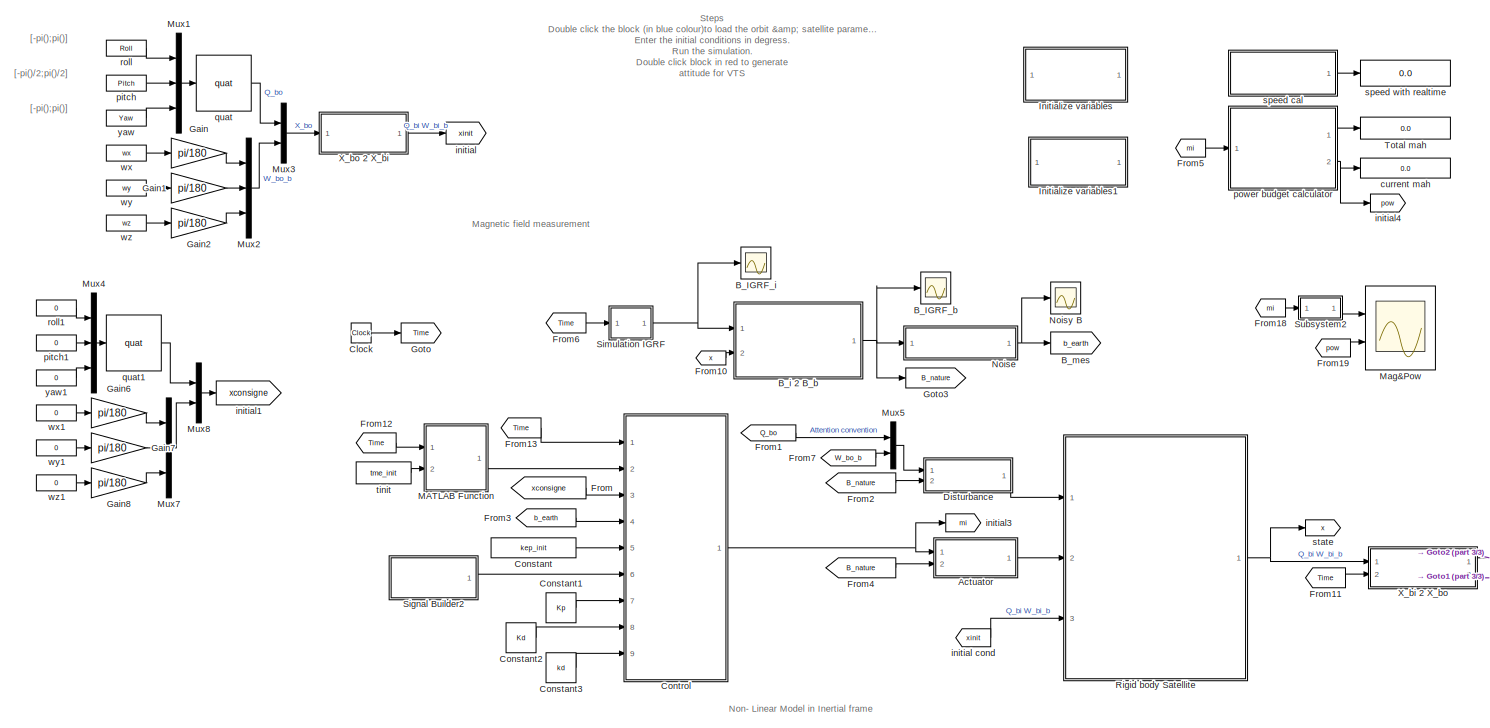
[diagram: root canvas - part 1/3, most of the canvas]
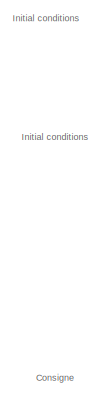
[diagram: root canvas - part 2/3, top left region]
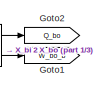
[diagram: root canvas - part 3/3, bottom right region]
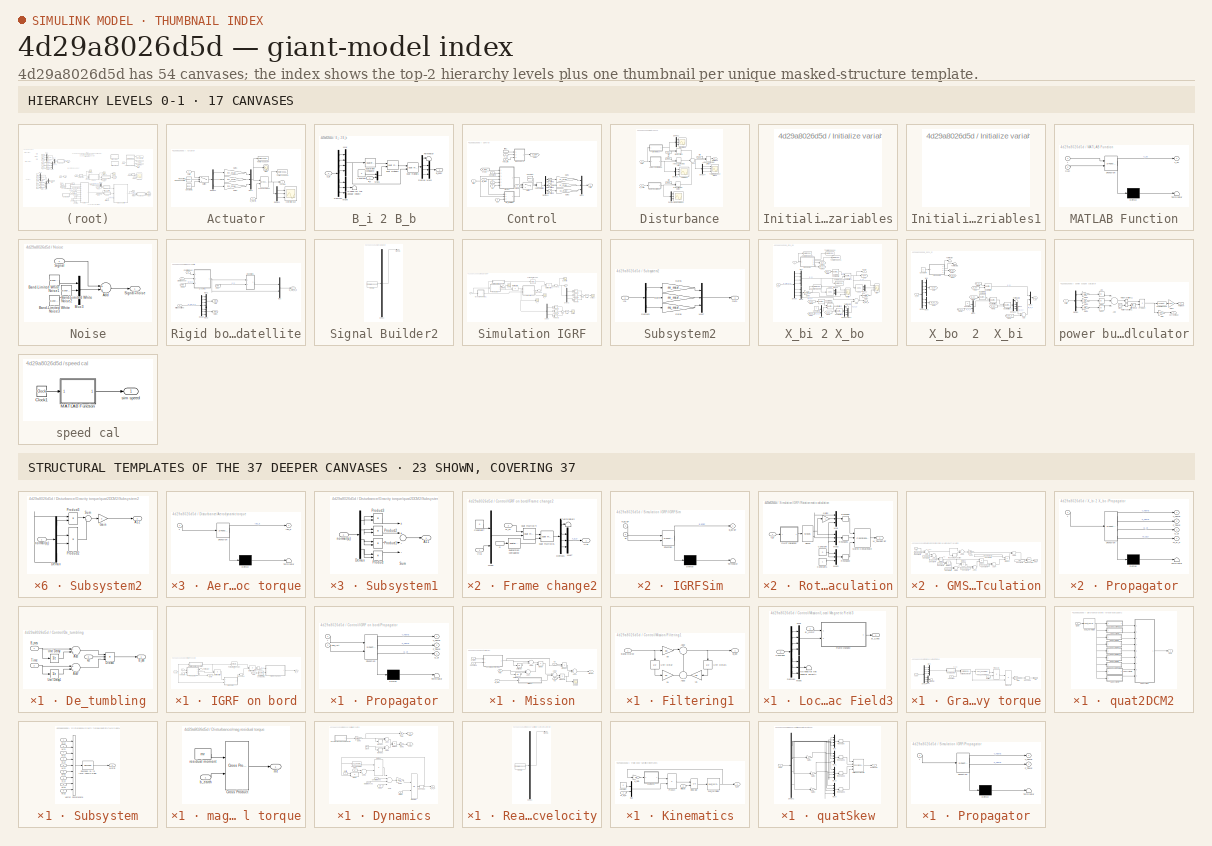
[diagram: thumbnail index - top-2 hierarchy levels (17 canvases) + 23 structural-template representatives of the remaining 37 canvases]
MODEL slx_4d29a8026d5d
KIND model
CONFIG AbsTol = auto
CONFIG EnableMultiTasking = on
CONFIG FixedStep = ss
CONFIG MaxStep = auto
CONFIG MinStep = auto
CONFIG RelTol = 1e-3
CONFIG SampleTimeConstraint = Unconstrained
CONFIG Solver = FixedStepAuto
CONFIG SolverName = FixedStepAuto
CONFIG StartTime = 0.0
CONFIG StopTime = tfinal
BLOCK [SubSystem] Actuator
  Ports = [2, 1]
  RequestExecContextInheritance = off
  SystemSampleTime = ss
  TreatAsAtomicUnit = on
BLOCK [Constant] Actuator/Constant1
  Value = [0 0 0]
BLOCK [Reference] Actuator/Cross Product  REF=vrlib/Utilities/Cross Product
  Ports = [2, 1]
  SourceBlock = vrlib/Utilities/Cross Product
  SourceProductBaseCode = VR
  SourceProductName = Simulink 3D Animation
  SourceType = Cross Product
BLOCK [Demux] Actuator/Demux1
  DisplayOption = bar
  Outputs = 3
  Ports = [1, 3]
BLOCK [Demux] Actuator/Demux2
  DisplayOption = bar
  Outputs = 3
  Ports = [1, 3]
BLOCK [Gain] Actuator/Gain1
  Gain = mr_max/vr_max
  OutDataTypeStr = Inherit: Inherit via internal rule
  ParamDataTypeStr = Inherit: Inherit via internal rule
  SaturateOnIntegerOverflow = off
BLOCK [Gain] Actuator/Gain2
  Gain = mr_max/vr_max
  OutDataTypeStr = Inherit: Inherit via internal rule
  ParamDataTypeStr = Inherit: Inherit via internal rule
  SaturateOnIntegerOverflow = off
BLOCK [Gain] Actuator/Gain3
  Gain = mc_max/vc_max
  OutDataTypeStr = Inherit: Inherit via internal rule
  ParamDataTypeStr = Inherit: Inherit via internal rule
  SaturateOnIntegerOverflow = off
BLOCK [Scope] Actuator/Mag
  Floating = off
  NumInputPorts = 1
  Ports = [1]
  ScopeSpecificationString = Simulink.scopes.TimeScopeBlockCfg('CurrentConfiguration', extmgr.ConfigurationSet(extmgr.Configuration('Core','General UI',true,'FigureColor',[1 1 1]),extmgr.Configuration('Core','Source UI',true),extmgr.Configuration('Sources','WiredSimulink',true,'DataLoggingVariableName','ScopeData4'),extmgr.Configuration('Visuals','Time Domain',true,'SerializedDisplays',{struct('MinYLimReal','-0.20569','MaxYLi...<+1874ch>
BLOCK [Mux] Actuator/Mux1
  DisplayOption = bar
  Inputs = 3
  Ports = [3, 1]
BLOCK [Reference] Actuator/Repeating Sequence Stair  REF=simulink/Sources/Repeating
Sequence
Stair
  Ports = [0, 1]
  SourceBlock = simulink/Sources/Repeating\nSequence\nStair
  SourceProductBaseCode = SL
  SourceProductName = Simulink
  SourceType = Repeating Sequence Stair
BLOCK [Switch] Actuator/Switch
  Criteria = u2 > Threshold
  InputSameDT = off
  SaturateOnIntegerOverflow = off
BLOCK [ToWorkspace] Actuator/To Workspace1
  FixptAsFi = on
  MaxDataPoints = inf
  Ports = [1]
  SampleTime = -1
  Save2DSignal = 3-D array (concatenate along third dimension)
  VariableName = coc
BLOCK [ToWorkspace] Actuator/To Workspace4
  FixptAsFi = on
  MaxDataPoints = inf
  Ports = [1]
  SampleTime = -1
  Save2DSignal = 3-D array (concatenate along third dimension)
  VariableName = moc
BLOCK [Outport] Actuator/Torque
  IconDisplay = Port number
BLOCK [Inport] Actuator/b_earth
  IconDisplay = Port number
  Port = 2
BLOCK [Scope] Actuator/control torque
  Floating = off
  NumInputPorts = 3
  Ports = [3]
  ScopeSpecificationString = Simulink.scopes.TimeScopeBlockCfg('CurrentConfiguration', extmgr.ConfigurationSet(extmgr.Configuration('Core','General UI',true,'FigureColor',[1 1 1]),extmgr.Configuration('Core','Source UI',true),extmgr.Configuration('Sources','WiredSimulink',true,'DataLoggingSaveFormat','Array','DataLoggingDecimation','1','DataLoggingVariableName','ScopeData2'),extmgr.Configuration('Visuals','Time Domain',true,'...<+2166ch>
BLOCK [Inport] Actuator/volts
  IconDisplay = Port number
BLOCK [Scope] B_IGRF_b
  Floating = off
  NumInputPorts = 1
  Ports = [1]
  ScopeSpecificationString = Simulink.scopes.TimeScopeBlockCfg('CurrentConfiguration', extmgr.ConfigurationSet(extmgr.Configuration('Core','General UI',true),extmgr.Configuration('Core','Source UI',true),extmgr.Configuration('Sources','WiredSimulink',true,'DataLoggingVariableName','ScopeData7'),extmgr.Configuration('Visuals','Time Domain',true,'SerializedDisplays',{struct('MinYLimReal','-26750.33256','MaxYLimReal','26775.8819...<+1458ch>
BLOCK [Scope] B_IGRF_i
  Floating = off
  NumInputPorts = 1
  Ports = [1]
  ScopeSpecificationString = Simulink.scopes.TimeScopeBlockCfg('CurrentConfiguration', extmgr.ConfigurationSet(extmgr.Configuration('Core','General UI',true),extmgr.Configuration('Core','Source UI',true),extmgr.Configuration('Sources','WiredSimulink',true,'DataLoggingVariableName','ScopeData3'),extmgr.Configuration('Visuals','Time Domain',true,'SerializedDisplays',{struct('MinYLimReal','-0.00006','MaxYLimReal','0.00006','YLab...<+1447ch>
BLOCK [SubSystem] B_i 2 B_b
  Ports = [2, 1]
  RequestExecContextInheritance = off
BLOCK [Outport] B_i 2 B_b/B_body
  IconDisplay = Port number
  PortDimensions = 3
BLOCK [Inport] B_i 2 B_b/B_i 
  IconDisplay = Port number
  PortDimensions = 3
BLOCK [Constant] B_i 2 B_b/Constant
  Value = 0
BLOCK [Demux] B_i 2 B_b/Demux
  DisplayOption = bar
  Ports = [1, 4]
BLOCK [Demux] B_i 2 B_b/Demux1
  DisplayOption = bar
  Outputs = 7
  Ports = [1, 7]
BLOCK [Mux] B_i 2 B_b/Mux
  DisplayOption = bar
  Ports = [4, 1]
BLOCK [Mux] B_i 2 B_b/Mux1
  DisplayOption = bar
  Inputs = 2
  Ports = [2, 1]
BLOCK [Mux] B_i 2 B_b/Mux2
  DisplayOption = bar
  Inputs = 3
  Ports = [3, 1]
BLOCK [Mux] B_i 2 B_b/Mux5
  DisplayOption = bar
  Inputs = 3
  Ports = [3, 1]
BLOCK [Terminator] B_i 2 B_b/No need for the angular velocity
BLOCK [Terminator] B_i 2 B_b/Terminator
BLOCK [Inport] B_i 2 B_b/X_bi
  IconDisplay = Port number
  Port = 2
BLOCK [Reference] B_i 2 B_b/quat multiply1  REF=My_library/quat multiply
  Ports = [2, 1]
  SourceBlock = My_library/quat multiply
  SourceProductName = My Library
BLOCK [Reference] B_i 2 B_b/quat multiply2  REF=My_library/quat multiply
  Ports = [2, 1]
  SourceBlock = My_library/quat multiply
  SourceProductName = My Library
BLOCK [Reference] B_i 2 B_b/quaternion conjugate  REF=My_library/quaternion conjugate
  Ports = [1, 1]
  SourceBlock = My_library/quaternion conjugate
  SourceProductName = My Library
BLOCK [Goto] B_mes
  GotoTag = b_earth
BLOCK [Clock] Clock
BLOCK [Constant] Constant
  Value = kep_init
BLOCK [Constant] Constant1
  Value = Kp
BLOCK [Constant] Constant2
  Value = Kd
BLOCK [Constant] Constant3
  Value = kd
BLOCK [SubSystem] Control
  Ports = [9, 1]
  RTWFcnName = Controller
  RTWFcnNameOpts = User specified
  RTWFileNameOpts = Use function name
  RTWSystemCode = Nonreusable function
  RequestExecContextInheritance = off
  SystemSampleTime = cr
  TreatAsAtomicUnit = on
BLOCK [Inport] Control/B_mes
  IconDisplay = Port number
  Port = 4
  PortDimensions = 3
BLOCK [Inport] Control/Consigne
  IconDisplay = Port number
  Port = 3
  PortDimensions = 7
BLOCK [Constant] Control/Constant
  Value = [0 0 0]
BLOCK [SubSystem] Control/De_tumbling
  Ports = [3, 1]
  RequestExecContextInheritance = off
BLOCK [Sum] Control/De_tumbling/Add
  InputSameDT = off
  Inputs = -+
  OutDataTypeStr = Inherit: Inherit via internal rule
  Ports = [2, 1]
  SaturateOnIntegerOverflow = off
BLOCK [Sum] Control/De_tumbling/Add7
  InputSameDT = off
  Inputs = +-
  OutDataTypeStr = Inherit: Inherit via internal rule
  Ports = [2, 1]
  SaturateOnIntegerOverflow = off
BLOCK [Outport] Control/De_tumbling/B_dot
  IconDisplay = Port number
BLOCK [Inport] Control/De_tumbling/B_mes
  IconDisplay = Port number
BLOCK [Product] Control/De_tumbling/Divide2
  InputSameDT = off
  Inputs = **/
  OutDataTypeStr = Inherit: Inherit via internal rule
  Ports = [3, 1]
  RndMeth = Floor
  SaturateOnIntegerOverflow = off
BLOCK [Inport] Control/De_tumbling/Time
  IconDisplay = Port number
  Port = 2
BLOCK [UnitDelay] Control/De_tumbling/Unit Delay
  InputProcessing = Elements as channels (sample based)
  SampleTime = -1
BLOCK [UnitDelay] Control/De_tumbling/Unit Delay1
  InitialCondition = -1
  InputProcessing = Elements as channels (sample based)
  SampleTime = -1
BLOCK [Inport] Control/De_tumbling/kd
  IconDisplay = Port number
  Port = 3
BLOCK [Demux] Control/Demux4
  DisplayOption = bar
  Outputs = 3
  Ports = [1, 3]
BLOCK [From] Control/From
  GotoTag = B_IGRF
BLOCK [Gain] Control/Gain1
  Gain = vr_max/mr_max
  OutDataTypeStr = Inherit: Inherit via internal rule
  ParamDataTypeStr = Inherit: Inherit via internal rule
  SaturateOnIntegerOverflow = off
BLOCK [Gain] Control/Gain2
  Gain = vr_max/mr_max
  OutDataTypeStr = Inherit: Inherit via internal rule
  ParamDataTypeStr = Inherit: Inherit via internal rule
  SaturateOnIntegerOverflow = off
BLOCK [Gain] Control/Gain3
  Gain = vc_max/mc_max
  OutDataTypeStr = Inherit: Inherit via internal rule
  ParamDataTypeStr = Inherit: Inherit via internal rule
  SaturateOnIntegerOverflow = off
BLOCK [Goto] Control/Goto1
  GotoTag = B_IGRF
BLOCK [SubSystem] Control/IGRF on bord
  Ports = [3, 1]
  RequestExecContextInheritance = off
BLOCK [Outport] Control/IGRF on bord/B_o
  IconDisplay = Port number
BLOCK [SubSystem] Control/IGRF on bord/Frame change2
  Ports = [2, 1]
  RequestExecContextInheritance = off
BLOCK [Constant] Control/IGRF on bord/Frame change2/Constant7
  Value = 0
BLOCK [Demux] Control/IGRF on bord/Frame change2/Demux1
  DisplayOption = bar
  Ports = [1, 4]
BLOCK [Mux] Control/IGRF on bord/Frame change2/Mux6
  DisplayOption = bar
  Inputs = 2
  Ports = [2, 1]
BLOCK [Mux] Control/IGRF on bord/Frame change2/Mux7
  DisplayOption = bar
  Inputs = 3
  Ports = [3, 1]
BLOCK [Inport] Control/IGRF on bord/Frame change2/Q_12
  IconDisplay = Port number
  Port = 2
BLOCK [Terminator] Control/IGRF on bord/Frame change2/Terminator2
BLOCK [Inport] Control/IGRF on bord/Frame change2/V[1]
  IconDisplay = Port number
BLOCK [Outport] Control/IGRF on bord/Frame change2/V[2] 
  IconDisplay = Port number
BLOCK [InportShadow] Control/IGRF on bord/Frame change2/q
  IconDisplay = Port number
  Port = 2
BLOCK [Reference] Control/IGRF on bord/Frame change2/quat multiply4  REF=My_library/quat multiply
  Ports = [2, 1]
  SourceBlock = My_library/quat multiply
  SourceProductName = My Library
BLOCK [Reference] Control/IGRF on bord/Frame change2/quat multiply5  REF=My_library/quat multiply
  Ports = [2, 1]
  SourceBlock = My_library/quat multiply
  SourceProductName = My Library
BLOCK [Reference] Control/IGRF on bord/Frame change2/quaternion conjugate2  REF=My_library/quaternion conjugate
  Ports = [1, 1]
  SourceBlock = My_library/quaternion conjugate
  SourceProductName = My Library
BLOCK [From] Control/IGRF on bord/From
  GotoTag = Q_oi
BLOCK [Goto] Control/IGRF on bord/Goto
  GotoTag = Q_oi
BLOCK [SubSystem] Control/IGRF on bord/IGRFEmb
  ErrorFcn = Stateflow.Translate.translate
  PermitHierarchicalResolution = ExplicitOnly
  Ports = [2, 1]
  RequestExecContextInheritance = off
  SFBlockType = MATLAB Function
  TreatAsAtomicUnit = on
BLOCK [Demux] Control/IGRF on bord/IGRFEmb/ Demux 
  Outputs = 1
  Ports = [1, 1]
BLOCK [S-Function] Control/IGRF on bord/IGRFEmb/ SFunction 
  EnableBusSupport = on
  FunctionName = sf_sfun
  Parameters = GHemb,SVemb,Yemb
  PortCounts = [2 2]
  Ports = [2, 2]
  SFcnIsStateOwnerBlock = off
  SFunctionDeploymentMode = off
  Tag = Stateflow S-Function ADCS2018_Simulink_Full 6
BLOCK [Terminator] Control/IGRF on bord/IGRFEmb/ Terminator 
BLOCK [Outport] Control/IGRF on bord/IGRFEmb/B_ECEF
  IconDisplay = Port number
BLOCK [Inport] Control/IGRF on bord/IGRFEmb/P_ECEF
  IconDisplay = Port number
BLOCK [Inport] Control/IGRF on bord/IGRFEmb/jD
  IconDisplay = Port number
  Port = 2
BLOCK [Product] Control/IGRF on bord/Matrix Multiply
  InputSameDT = off
  Multiplication = Matrix(*)
  OutDataTypeStr = Inherit: Inherit via internal rule
  Ports = [2, 1]
  RndMeth = Floor
  SaturateOnIntegerOverflow = off
BLOCK [Product] Control/IGRF on bord/Matrix Multiply2
  InputSameDT = off
  Multiplication = Matrix(*)
  OutDataTypeStr = Inherit: Inherit via internal rule
  Ports = [2, 1]
  RndMeth = Floor
  SaturateOnIntegerOverflow = off
BLOCK [PermuteDimensions] Control/IGRF on bord/Permute Dimensions
BLOCK [SubSystem] Control/IGRF on bord/Propagator
  ErrorFcn = Stateflow.Translate.translate
  PermitHierarchicalResolution = ExplicitOnly
  Ports = [2, 3]
  RequestExecContextInheritance = off
  SFBlockType = MATLAB Function
  TreatAsAtomicUnit = on
BLOCK [Demux] Control/IGRF on bord/Propagator/ Demux 
  Outputs = 1
  Ports = [1, 1]
BLOCK [S-Function] Control/IGRF on bord/Propagator/ SFunction 
  EnableBusSupport = on
  FunctionName = sf_sfun
  PortCounts = [2 4]
  Ports = [2, 4]
  SFcnIsStateOwnerBlock = off
  SFunctionDeploymentMode = off
  Tag = Stateflow S-Function ADCS2018_Simulink_Full 16
BLOCK [Terminator] Control/IGRF on bord/Propagator/ Terminator 
BLOCK [Outport] Control/IGRF on bord/Propagator/P_TEME
  IconDisplay = Port number
  Port = 2
BLOCK [Outport] Control/IGRF on bord/Propagator/Q_oi
  IconDisplay = Port number
  Port = 3
BLOCK [Outport] Control/IGRF on bord/Propagator/V_TEME
  IconDisplay = Port number
BLOCK [Inport] Control/IGRF on bord/Propagator/kep_init
  IconDisplay = Port number
  Port = 2
BLOCK [Inport] Control/IGRF on bord/Propagator/t
  IconDisplay = Port number
BLOCK [Reshape] Control/IGRF on bord/Reshape
  OutputDimensionality = Column vector (2-D)
  Ports = [1, 1]
BLOCK [Reshape] Control/IGRF on bord/Reshape1
  Ports = [1, 1]
BLOCK [SubSystem] Control/IGRF on bord/Rotation matix calculation
  Ports = [1, 1]
  RequestExecContextInheritance = off
BLOCK [Constant] Control/IGRF on bord/Rotation matix calculation/Constant
  Value = 0
BLOCK [Constant] Control/IGRF on bord/Rotation matix calculation/Constant1
BLOCK [SubSystem] Control/IGRF on bord/Rotation matix calculation/GMST calculation
  Ports = [1, 1]
  RequestExecContextInheritance = off
BLOCK [Sum] Control/IGRF on bord/Rotation matix calculation/GMST calculation/Add
  InputSameDT = off
  Inputs = +-
  OutDataTypeStr = Inherit: Inherit via internal rule
  Ports = [2, 1]
  SaturateOnIntegerOverflow = off
BLOCK [Sum] Control/IGRF on bord/Rotation matix calculation/GMST calculation/Add1
  InputSameDT = off
  Inputs = +-
  OutDataTypeStr = Inherit: Inherit via internal rule
  Ports = [2, 1]
  SaturateOnIntegerOverflow = off
BLOCK [Sum] Control/IGRF on bord/Rotation matix calculation/GMST calculation/Add2
  InputSameDT = off
  Inputs = -+
  OutDataTypeStr = Inherit: Inherit via internal rule
  Ports = [2, 1]
  SaturateOnIntegerOverflow = off
BLOCK [Sum] Control/IGRF on bord/Rotation matix calculation/GMST calculation/Add3
  InputSameDT = off
  OutDataTypeStr = Inherit: Inherit via internal rule
  Ports = [2, 1]
  SaturateOnIntegerOverflow = off
BLOCK [Sum] Control/IGRF on bord/Rotation matix calculation/GMST calculation/Add4
  InputSameDT = off
  OutDataTypeStr = Inherit: Inherit via internal rule
  Ports = [2, 1]
  SaturateOnIntegerOverflow = off
BLOCK [Sum] Control/IGRF on bord/Rotation matix calculation/GMST calculation/Add5
  InputSameDT = off
  Inputs = +-
  OutDataTypeStr = Inherit: Inherit via internal rule
  Ports = [2, 1]
  SaturateOnIntegerOverflow = off
BLOCK [Sum] Control/IGRF on bord/Rotation matix calculation/GMST calculation/Add6
  InputSameDT = off
  OutDataTypeStr = Inherit: Inherit via internal rule
  Ports = [2, 1]
  SaturateOnIntegerOverflow = off
BLOCK [Constant] Control/IGRF on bord/Rotation matix calculation/GMST calculation/Constant1
  Value = 6.2*1e-6
BLOCK [Constant] Control/IGRF on bord/Rotation matix calculation/GMST calculation/Constant2
  Value = 2400000.5
BLOCK [Constant] Control/IGRF on bord/Rotation matix calculation/GMST calculation/Constant3
  Value = 51544.5
BLOCK [Constant] Control/IGRF on bord/Rotation matix calculation/GMST calculation/Constant4
  Value = 36525
BLOCK [Constant] Control/IGRF on bord/Rotation matix calculation/GMST calculation/Constant5
  Value = 0.093104
BLOCK [Constant] Control/IGRF on bord/Rotation matix calculation/GMST calculation/Constant6
  Value = 8640184.812866
BLOCK [Constant] Control/IGRF on bord/Rotation matix calculation/GMST calculation/Constant7
  Value = 24110.54841
BLOCK [Constant] Control/IGRF on bord/Rotation matix calculation/GMST calculation/Constant8
  Value = 7.272205216643039903848711535369*1e-5
BLOCK [Constant] Control/IGRF on bord/Rotation matix calculation/GMST calculation/Constant9
  Value = 2*pi()
BLOCK [Product] Control/IGRF on bord/Rotation matix calculation/GMST calculation/Divide
  InputSameDT = off
  Inputs = */
  OutDataTypeStr = Inherit: Inherit via internal rule
  Ports = [2, 1]
  RndMeth = Floor
  SaturateOnIntegerOverflow = off
BLOCK [Product] Control/IGRF on bord/Rotation matix calculation/GMST calculation/Divide1
  InputSameDT = off
  Inputs = **
  OutDataTypeStr = Inherit: Inherit via internal rule
  Ports = [2, 1]
  RndMeth = Floor
  SaturateOnIntegerOverflow = off
BLOCK [Product] Control/IGRF on bord/Rotation matix calculation/GMST calculation/Divide2
  InputSameDT = off
  Inputs = **
  OutDataTypeStr = Inherit: Inherit via internal rule
  Ports = [2, 1]
  RndMeth = Floor
  SaturateOnIntegerOverflow = off
BLOCK [Product] Control/IGRF on bord/Rotation matix calculation/GMST calculation/Divide3
  InputSameDT = off
  Inputs = **
  OutDataTypeStr = Inherit: Inherit via internal rule
  Ports = [2, 1]
  RndMeth = Floor
  SaturateOnIntegerOverflow = off
BLOCK [Product] Control/IGRF on bord/Rotation matix calculation/GMST calculation/Divide4
  InputSameDT = off
  Inputs = **
  OutDataTypeStr = Inherit: Inherit via internal rule
  Ports = [2, 1]
  RndMeth = Floor
  SaturateOnIntegerOverflow = off
BLOCK [Outport] Control/IGRF on bord/Rotation matix calculation/GMST calculation/GMST
  IconDisplay = Port number
BLOCK [Gain] Control/IGRF on bord/Rotation matix calculation/GMST calculation/Gain1
  Gain = 2*pi()
  OutDataTypeStr = Inherit: Inherit via internal rule
  ParamDataTypeStr = Inherit: Inherit via internal rule
  SaturateOnIntegerOverflow = off
BLOCK [Math] Control/IGRF on bord/Rotation matix calculation/GMST calculation/Math Function
  Operator = mod
  Ports = [2, 1]
BLOCK [Rounding] Control/IGRF on bord/Rotation matix calculation/GMST calculation/Rounding Function
BLOCK [Inport] Control/IGRF on bord/Rotation matix calculation/GMST calculation/T_jD
  IconDisplay = Port number
BLOCK [Gain] Control/IGRF on bord/Rotation matix calculation/Gain2
  Gain = -1
  OutDataTypeStr = Inherit: Inherit via internal rule
  ParamDataTypeStr = Inherit: Inherit via internal rule
  SaturateOnIntegerOverflow = off
BLOCK [Outport] Control/IGRF on bord/Rotation matix calculation/M_TEMEECEF
  IconDisplay = Port number
BLOCK [Concatenate] Control/IGRF on bord/Rotation matix calculation/Matrix Concatenate
  ConcatenateDimension = 2
  Mode = Multidimensional array
  NumInputs = 3
  Ports = [3, 1]
BLOCK [Mux] Control/IGRF on bord/Rotation matix calculation/Mux
  DisplayOption = bar
  Inputs = 3
  Ports = [3, 1]
BLOCK [Mux] Control/IGRF on bord/Rotation matix calculation/Mux2
  DisplayOption = bar
  Inputs = 3
  Ports = [3, 1]
BLOCK [Mux] Control/IGRF on bord/Rotation matix calculation/Mux3
  DisplayOption = bar
  Inputs = 3
  Ports = [3, 1]
BLOCK [Reshape] Control/IGRF on bord/Rotation matix calculation/Reshape
  Ports = [1, 1]
BLOCK [Reshape] Control/IGRF on bord/Rotation matix calculation/Reshape1
  Ports = [1, 1]
BLOCK [Reshape] Control/IGRF on bord/Rotation matix calculation/Reshape2
  Ports = [1, 1]
BLOCK [Inport] Control/IGRF on bord/Rotation matix calculation/T_jD
  IconDisplay = Port number
BLOCK [Trigonometry] Control/IGRF on bord/Rotation matix calculation/sincos
  Operator = sincos
  Ports = [1, 2]
BLOCK [Inport] Control/IGRF on bord/T_JD
  IconDisplay = Port number
  Port = 2
BLOCK [Terminator] Control/IGRF on bord/Terminator
BLOCK [Inport] Control/IGRF on bord/kep_init
  IconDisplay = Port number
  Port = 3
BLOCK [Reference] Control/IGRF on bord/quaternion conjugate2  REF=My_library/quaternion conjugate
  Ports = [1, 1]
  SourceBlock = My_library/quaternion conjugate
  SourceProductName = My Library
BLOCK [Inport] Control/IGRF on bord/t
  IconDisplay = Port number
BLOCK [Inport] Control/Kd
  IconDisplay = Port number
  Port = 8
  PortDimensions = 1
BLOCK [Inport] Control/Kp
  IconDisplay = Port number
  Port = 7
  PortDimensions = 1
BLOCK [SubSystem] Control/Mission
  Ports = [6, 1]
  RequestExecContextInheritance = off
BLOCK [Sum] Control/Mission/Add1
  InputSameDT = off
  OutDataTypeStr = Inherit: Inherit via internal rule
  Ports = [2, 1]
  SaturateOnIntegerOverflow = off
BLOCK [Sum] Control/Mission/Add2
  InputSameDT = off
  Inputs = +-
  OutDataTypeStr = Inherit: Inherit via internal rule
  Ports = [2, 1]
  SaturateOnIntegerOverflow = off
BLOCK [Sum] Control/Mission/Add3
  InputSameDT = off
  Inputs = +-
  OutDataTypeStr = Inherit: Inherit via internal rule
  Ports = [2, 1]
  SaturateOnIntegerOverflow = off
BLOCK [Sum] Control/Mission/Add4
  InputSameDT = off
  Inputs = +-
  OutDataTypeStr = Inherit: Inherit via internal rule
  Ports = [2, 1]
  SaturateOnIntegerOverflow = off
BLOCK [Inport] Control/Mission/B_IGRF
  IconDisplay = Port number
BLOCK [Inport] Control/Mission/B_mes
  IconDisplay = Port number
  Port = 4
BLOCK [Inport] Control/Mission/Consigne
  IconDisplay = Port number
  Port = 2
BLOCK [Product] Control/Mission/Divide
  InputSameDT = off
  Inputs = */
  OutDataTypeStr = Inherit: Inherit via internal rule
  Ports = [2, 1]
  RndMeth = Floor
  SaturateOnIntegerOverflow = off
BLOCK [SubSystem] Control/Mission/Filtering1
  Ports = [1, 1]
  RequestExecContextInheritance = off
BLOCK [Gain] Control/Mission/Filtering1/-a1
  Gain = -a1
  OutDataTypeStr = Inherit: Inherit via internal rule
  ParamDataTypeStr = Inherit: Inherit via internal rule
  SaturateOnIntegerOverflow = off
BLOCK [Sum] Control/Mission/Filtering1/Add2
  IconShape = round
  InputSameDT = off
  Inputs = |++
  OutDataTypeStr = Inherit: Inherit via internal rule
  Ports = [2, 1]
  SaturateOnIntegerOverflow = off
BLOCK [Sum] Control/Mission/Filtering1/Add3
  IconShape = round
  InputSameDT = off
  OutDataTypeStr = Inherit: Inherit via internal rule
  Ports = [2, 1]
  SaturateOnIntegerOverflow = off
BLOCK [Outport] Control/Mission/Filtering1/B_dot
  IconDisplay = Port number
BLOCK [Inport] Control/Mission/Filtering1/Signal+Noise
  IconDisplay = Port number
BLOCK [UnitDelay] Control/Mission/Filtering1/Unit Delay
  InputProcessing = Elements as channels (sample based)
  SampleTime = -1
BLOCK [UnitDelay] Control/Mission/Filtering1/Unit Delay1
  InputProcessing = Elements as channels (sample based)
  SampleTime = -1
BLOCK [Gain] Control/Mission/Filtering1/b0
  Gain = b0
  OutDataTypeStr = Inherit: Inherit via internal rule
  ParamDataTypeStr = Inherit: Inherit via internal rule
  SaturateOnIntegerOverflow = off
BLOCK [Gain] Control/Mission/Filtering1/b1
  Gain = b1
  OutDataTypeStr = Inherit: Inherit via internal rule
  ParamDataTypeStr = Inherit: Inherit via internal rule
  SaturateOnIntegerOverflow = off
BLOCK [Inport] Control/Mission/Kd
  IconDisplay = Port number
  Port = 6
BLOCK [Inport] Control/Mission/Kp
  IconDisplay = Port number
  Port = 5
BLOCK [SubSystem] Control/Mission/Local Magnetic Field3
  Ports = [2, 1]
  RequestExecContextInheritance = off
BLOCK [Outport] Control/Mission/Local Magnetic Field3/B_Cons
  IconDisplay = Port number
  PortDimensions = 3
BLOCK [Inport] Control/Mission/Local Magnetic Field3/B_IGRF 
  IconDisplay = Port number
  PortDimensions = 3
BLOCK [Inport] Control/Mission/Local Magnetic Field3/Consigne
  IconDisplay = Port number
  Port = 2
BLOCK [Demux] Control/Mission/Local Magnetic Field3/Demux1
  DisplayOption = bar
  Outputs = 7
  Ports = [1, 7]
BLOCK [SubSystem] Control/Mission/Local Magnetic Field3/Frame change2
  Ports = [2, 1]
  RequestExecContextInheritance = off
BLOCK [Constant] Control/Mission/Local Magnetic Field3/Frame change2/Constant7
  Value = 0
BLOCK [Demux] Control/Mission/Local Magnetic Field3/Frame change2/Demux1
  DisplayOption = bar
  Ports = [1, 4]
BLOCK [Mux] Control/Mission/Local Magnetic Field3/Frame change2/Mux6
  DisplayOption = bar
  Inputs = 2
  Ports = [2, 1]
BLOCK [Mux] Control/Mission/Local Magnetic Field3/Frame change2/Mux7
  DisplayOption = bar
  Inputs = 3
  Ports = [3, 1]
BLOCK [Inport] Control/Mission/Local Magnetic Field3/Frame change2/Q_12
  IconDisplay = Port number
  Port = 2
BLOCK [Terminator] Control/Mission/Local Magnetic Field3/Frame change2/Terminator2
BLOCK [Inport] Control/Mission/Local Magnetic Field3/Frame change2/V[1]
  IconDisplay = Port number
BLOCK [Outport] Control/Mission/Local Magnetic Field3/Frame change2/V[2] 
  IconDisplay = Port number
BLOCK [InportShadow] Control/Mission/Local Magnetic Field3/Frame change2/q
  IconDisplay = Port number
  Port = 2
BLOCK [Reference] Control/Mission/Local Magnetic Field3/Frame change2/quat multiply4  REF=My_library/quat multiply
  Ports = [2, 1]
  SourceBlock = My_library/quat multiply
  SourceProductName = My Library
BLOCK [Reference] Control/Mission/Local Magnetic Field3/Frame change2/quat multiply5  REF=My_library/quat multiply
  Ports = [2, 1]
  SourceBlock = My_library/quat multiply
  SourceProductName = My Library
BLOCK [Reference] Control/Mission/Local Magnetic Field3/Frame change2/quaternion conjugate2  REF=My_library/quaternion conjugate
  Ports = [1, 1]
  SourceBlock = My_library/quaternion conjugate
  SourceProductName = My Library
BLOCK [Mux] Control/Mission/Local Magnetic Field3/Mux
  DisplayOption = bar
  Ports = [4, 1]
BLOCK [Mux] Control/Mission/Local Magnetic Field3/Mux5
  DisplayOption = bar
  Inputs = 3
  Ports = [3, 1]
BLOCK [Terminator] Control/Mission/Local Magnetic Field3/No need for the angular velocity
BLOCK [Outport] Control/Mission/Mission
  IconDisplay = Port number
BLOCK [Product] Control/Mission/Product
  InputSameDT = off
  OutDataTypeStr = Inherit: Inherit via internal rule
  Ports = [2, 1]
  RndMeth = Floor
  SaturateOnIntegerOverflow = off
BLOCK [Product] Control/Mission/Product1
  InputSameDT = off
  OutDataTypeStr = Inherit: Inherit via internal rule
  Ports = [2, 1]
  RndMeth = Floor
  SaturateOnIntegerOverflow = off
BLOCK [Scope] Control/Mission/Scope
  Floating = off
  NumInputPorts = 1
  Ports = [1]
  ScopeSpecificationString = Simulink.scopes.TimeScopeBlockCfg('CurrentConfiguration', extmgr.ConfigurationSet(extmgr.Configuration('Core','General UI',true),extmgr.Configuration('Core','Source UI',true),extmgr.Configuration('Sources','WiredSimulink',true,'DataLoggingVariableName','ScopeData1'),extmgr.Configuration('Visuals','Time Domain',true,'SerializedDisplays',{struct('MinYLimReal','-3.65761','MaxYLimReal','11.36474','YLa...<+1473ch>
BLOCK [Inport] Control/Mission/Time
  IconDisplay = Port number
  Port = 3
BLOCK [UnitDelay] Control/Mission/Unit Delay
  InputProcessing = Elements as channels (sample based)
  SampleTime = -1
BLOCK [UnitDelay] Control/Mission/Unit Delay1
  InitialCondition = -1
  InputProcessing = Elements as channels (sample based)
  SampleTime = -1
BLOCK [Inport] Control/Mode 
  IconDisplay = Port number
  Port = 6
BLOCK [Mux] Control/Mux1
  DisplayOption = bar
  Inputs = 3
  Ports = [3, 1]
BLOCK [Saturate] Control/Saturation1
  InputPortMap = u0
  LowerLimit = -mr_max
  Ports = [1, 1]
  UpperLimit = mr_max
BLOCK [Saturate] Control/Saturation2
  InputPortMap = u0
  LowerLimit = -mc_max
  Ports = [1, 1]
  UpperLimit = mc_max
BLOCK [Saturate] Control/Saturation3
  InputPortMap = u0
  LowerLimit = -mr_max
  Ports = [1, 1]
  UpperLimit = mr_max
BLOCK [Switch] Control/Switch
  Criteria = u2 > Threshold
  InputSameDT = off
  SaturateOnIntegerOverflow = off
BLOCK [Inport] Control/T_JD
  IconDisplay = Port number
  Port = 2
BLOCK [ManualSwitch] Control/control switch
  CurrentSetting = 0
BLOCK [Inport] Control/kd
  IconDisplay = Port number
  Port = 9
  PortDimensions = 1
BLOCK [Inport] Control/kep_init
  IconDisplay = Port number
  Port = 5
BLOCK [Inport] Control/time
  IconDisplay = Port number
BLOCK [InportShadow] Control/time1
  IconDisplay = Port number
BLOCK [Outport] Control/volts
  IconDisplay = Port number
  PortDimensions = 3
BLOCK [SubSystem] Disturbance
  Ports = [2, 1]
  RequestExecContextInheritance = off
BLOCK [Scope] Disturbance/Aero torque
  Floating = off
  NumInputPorts = 3
  Ports = [3]
  ScopeSpecificationString = Simulink.scopes.TimeScopeBlockCfg('CurrentConfiguration', extmgr.ConfigurationSet(extmgr.Configuration('Core','General UI',true),extmgr.Configuration('Core','Source UI',true),extmgr.Configuration('Sources','WiredSimulink',true,'DataLoggingVariableName','ScopeData1','DataLoggingSaveFormat','Array','DataLoggingDecimation','1','DataLoggingDecimateData',true),extmgr.Configuration('Visuals','Time Domai...<+2218ch>
BLOCK [ManualSwitch] Disturbance/Aerodynamic drag Switch
  CurrentSetting = 0
BLOCK [ManualSwitch] Disturbance/Aerodynamic drag Switch1
  CurrentSetting = 0
BLOCK [SubSystem] Disturbance/Aerodynamic torque
  ErrorFcn = Stateflow.Translate.translate
  PermitHierarchicalResolution = ExplicitOnly
  Ports = [1, 1]
  RequestExecContextInheritance = off
  SFBlockType = MATLAB Function
  TreatAsAtomicUnit = on
BLOCK [Demux] Disturbance/Aerodynamic torque/ Demux 
  Outputs = 1
  Ports = [1, 1]
BLOCK [S-Function] Disturbance/Aerodynamic torque/ SFunction 
  EnableBusSupport = on
  FunctionName = sf_sfun
  Parameters = I,kep_init,omega_o
  PortCounts = [1 2]
  Ports = [1, 2]
  SFcnIsStateOwnerBlock = off
  SFunctionDeploymentMode = off
  Tag = Stateflow S-Function ADCS2018_Simulink_Full 4
BLOCK [Terminator] Disturbance/Aerodynamic torque/ Terminator 
BLOCK [Outport] Disturbance/Aerodynamic torque/tau_a
  IconDisplay = Port number
BLOCK [Inport] Disturbance/Aerodynamic torque/x
  IconDisplay = Port number
BLOCK [Demux] Disturbance/Demux1
  DisplayOption = bar
  Outputs = 3
  Ports = [1, 3]
BLOCK [Demux] Disturbance/Demux2
  DisplayOption = bar
  Outputs = 3
  Ports = [1, 3]
BLOCK [Demux] Disturbance/Demux3
  DisplayOption = bar
  Outputs = 3
  Ports = [1, 3]
BLOCK [Demux] Disturbance/Demux4
  DisplayOption = bar
  Outputs = 3
  Ports = [1, 3]
BLOCK [ManualSwitch] Disturbance/Gravity switch
BLOCK [SubSystem] Disturbance/Gravity torque
  Ports = [1, 1]
  RequestExecContextInheritance = off
BLOCK [Demux] Disturbance/Gravity torque/Demux
  DisplayOption = bar
  Outputs = 7
  Ports = [1, 7]
BLOCK [Gain] Disturbance/Gravity torque/Gain
  Gain = 3*wo^2
  OutDataTypeStr = Inherit: Inherit via internal rule
  ParamDataTypeStr = Inherit: Inherit via internal rule
  SaturateOnIntegerOverflow = off
BLOCK [Constant] Disturbance/Gravity torque/Inertia1
  Value = I
BLOCK [Mux] Disturbance/Gravity torque/Mux
  DisplayOption = bar
  Ports = [4, 1]
BLOCK [Mux] Disturbance/Gravity torque/Mux1
  DisplayOption = bar
  Inputs = 3
  Ports = [3, 1]
BLOCK [Product] Disturbance/Gravity torque/Product1
  InputSameDT = off
  Multiplication = Matrix(*)
  OutDataTypeStr = Inherit: Inherit via internal rule
  Ports = [2, 1]
  RndMeth = Floor
  SaturateOnIntegerOverflow = off
BLOCK [Product] Disturbance/Gravity torque/Product2
  InputSameDT = off
  Multiplication = Matrix(*)
  OutDataTypeStr = Inherit: Inherit via internal rule
  Ports = [2, 1]
  RndMeth = Floor
  SaturateOnIntegerOverflow = off
BLOCK [Reshape] Disturbance/Gravity torque/Reshape
  Ports = [1, 1]
BLOCK [Terminator] Disturbance/Gravity torque/Terminator
BLOCK [Reference] Disturbance/Gravity torque/Variable Selector  REF=dspindex/Variable
Selector
  Ports = [2, 1]
  SourceBlock = dspindex/Variable\nSelector
  SourceProductBaseCode = DS
  SourceProductName = DSP System Toolbox
  SourceType = Variable Selector
BLOCK [Constant] Disturbance/Gravity torque/constant
  Value = 3
BLOCK [Outport] Disturbance/Gravity torque/gg
  IconDisplay = Port number
BLOCK [SubSystem] Disturbance/Gravity torque/quat2DCM2
  Ports = [1, 1]
  RequestExecContextInheritance = off
BLOCK [Outport] Disturbance/Gravity torque/quat2DCM2/DCM
  IconDisplay = Port number
  InitialOutput = 0
  PortDimensions = [3,3]
BLOCK [Inport] Disturbance/Gravity torque/quat2DCM2/Quat
  IconDisplay = Port number
  PortDimensions = 4
BLOCK [SubSystem] Disturbance/Gravity torque/quat2DCM2/Subsystem
  Ports = [9, 1]
  RequestExecContextInheritance = off
BLOCK [Inport] Disturbance/Gravity torque/quat2DCM2/Subsystem/M11
  IconDisplay = Port number
  PortDimensions = 1
BLOCK [Inport] Disturbance/Gravity torque/quat2DCM2/Subsystem/M12
  IconDisplay = Port number
  Port = 2
  PortDimensions = 1
BLOCK [Inport] Disturbance/Gravity torque/quat2DCM2/Subsystem/M13
  IconDisplay = Port number
  Port = 3
  PortDimensions = 1
BLOCK [Inport] Disturbance/Gravity torque/quat2DCM2/Subsystem/M21
  IconDisplay = Port number
  Port = 4
  PortDimensions = 1
BLOCK [Inport] Disturbance/Gravity torque/quat2DCM2/Subsystem/M22
  IconDisplay = Port number
  Port = 5
  PortDimensions = 1
BLOCK [Inport] Disturbance/Gravity torque/quat2DCM2/Subsystem/M23
  IconDisplay = Port number
  Port = 6
  PortDimensions = 1
BLOCK [Inport] Disturbance/Gravity torque/quat2DCM2/Subsystem/M31
  IconDisplay = Port number
  Port = 7
  PortDimensions = 1
BLOCK [Inport] Disturbance/Gravity torque/quat2DCM2/Subsystem/M32
  IconDisplay = Port number
  Port = 8
  PortDimensions = 1
BLOCK [Inport] Disturbance/Gravity torque/quat2DCM2/Subsystem/M33
  IconDisplay = Port number
  Port = 9
  PortDimensions = 1
BLOCK [Outport] Disturbance/Gravity torque/quat2DCM2/Subsystem/Matrix
  IconDisplay = Port number
  PortDimensions = [3 3]
BLOCK [Reshape] Disturbance/Gravity torque/quat2DCM2/Subsystem/Reshape (9) to [3x3] column-major
  OutputDimensionality = Customize
  OutputDimensions = [3,3]
  Ports = [1, 1]
BLOCK [Concatenate] Disturbance/Gravity torque/quat2DCM2/Subsystem/Vector Concatenate
  NumInputs = 9
  Ports = [9, 1]
BLOCK [SubSystem] Disturbance/Gravity torque/quat2DCM2/Subsystem1
  Ports = [1, 1]
  RequestExecContextInheritance = off
BLOCK [Outport] Disturbance/Gravity torque/quat2DCM2/Subsystem1/A11
  IconDisplay = Port number
BLOCK [Demux] Disturbance/Gravity torque/quat2DCM2/Subsystem1/Demux
  DisplayOption = bar
  Ports = [1, 4]
BLOCK [Product] Disturbance/Gravity torque/quat2DCM2/Subsystem1/Product
  InputSameDT = off
  OutDataTypeStr = Inherit: Inherit via internal rule
  Ports = [2, 1]
  SaturateOnIntegerOverflow = off
BLOCK [Product] Disturbance/Gravity torque/quat2DCM2/Subsystem1/Product1
  InputSameDT = off
  OutDataTypeStr = Inherit: Inherit via internal rule
  Ports = [2, 1]
  SaturateOnIntegerOverflow = off
BLOCK [Product] Disturbance/Gravity torque/quat2DCM2/Subsystem1/Product2
  InputSameDT = off
  OutDataTypeStr = Inherit: Inherit via internal rule
  Ports = [2, 1]
  SaturateOnIntegerOverflow = off
BLOCK [Product] Disturbance/Gravity torque/quat2DCM2/Subsystem1/Product3
  InputSameDT = off
  OutDataTypeStr = Inherit: Inherit via internal rule
  Ports = [2, 1]
  SaturateOnIntegerOverflow = off
BLOCK [Sum] Disturbance/Gravity torque/quat2DCM2/Subsystem1/Sum
  InputSameDT = off
  Inputs = ++--
  OutDataTypeStr = Inherit: Inherit via internal rule
  Ports = [4, 1]
  SaturateOnIntegerOverflow = off
BLOCK [Inport] Disturbance/Gravity torque/quat2DCM2/Subsystem1/normal(q)
  IconDisplay = Port number
BLOCK [SubSystem] Disturbance/Gravity torque/quat2DCM2/Subsystem2
  Ports = [1, 1]
  RequestExecContextInheritance = off
BLOCK [Outport] Disturbance/Gravity torque/quat2DCM2/Subsystem2/A12
  IconDisplay = Port number
BLOCK [Demux] Disturbance/Gravity torque/quat2DCM2/Subsystem2/Demux
  DisplayOption = bar
  Ports = [1, 4]
BLOCK [Gain] Disturbance/Gravity torque/quat2DCM2/Subsystem2/Gain
  Gain = 2
  OutDataTypeStr = Inherit: Inherit via internal rule
  ParamDataTypeStr = Inherit: Inherit via internal rule
  SaturateOnIntegerOverflow = off
BLOCK [Product] Disturbance/Gravity torque/quat2DCM2/Subsystem2/Product2
  InputSameDT = off
  OutDataTypeStr = Inherit: Inherit via internal rule
  Ports = [2, 1]
  SaturateOnIntegerOverflow = off
BLOCK [Product] Disturbance/Gravity torque/quat2DCM2/Subsystem2/Product3
  InputSameDT = off
  OutDataTypeStr = Inherit: Inherit via internal rule
  Ports = [2, 1]
  SaturateOnIntegerOverflow = off
BLOCK [Sum] Disturbance/Gravity torque/quat2DCM2/Subsystem2/Sum
  IconShape = round
  InputSameDT = off
  Inputs = |++
  OutDataTypeStr = Inherit: Inherit via internal rule
  Ports = [2, 1]
  SaturateOnIntegerOverflow = off
BLOCK [Inport] Disturbance/Gravity torque/quat2DCM2/Subsystem2/normal(q)
  IconDisplay = Port number
BLOCK [SubSystem] Disturbance/Gravity torque/quat2DCM2/Subsystem3
  Ports = [1, 1]
  RequestExecContextInheritance = off
BLOCK [Outport] Disturbance/Gravity torque/quat2DCM2/Subsystem3/A13
  IconDisplay = Port number
BLOCK [Demux] Disturbance/Gravity torque/quat2DCM2/Subsystem3/Demux
  DisplayOption = bar
  Ports = [1, 4]
BLOCK [Gain] Disturbance/Gravity torque/quat2DCM2/Subsystem3/Gain
  Gain = 2
  OutDataTypeStr = Inherit: Inherit via internal rule
  ParamDataTypeStr = Inherit: Inherit via internal rule
  SaturateOnIntegerOverflow = off
BLOCK [Product] Disturbance/Gravity torque/quat2DCM2/Subsystem3/Product1
  InputSameDT = off
  OutDataTypeStr = Inherit: Inherit via internal rule
  Ports = [2, 1]
  SaturateOnIntegerOverflow = off
BLOCK [Product] Disturbance/Gravity torque/quat2DCM2/Subsystem3/Product2
  InputSameDT = off
  OutDataTypeStr = Inherit: Inherit via internal rule
  Ports = [2, 1]
  SaturateOnIntegerOverflow = off
BLOCK [Sum] Disturbance/Gravity torque/quat2DCM2/Subsystem3/Sum
  IconShape = round
  InputSameDT = off
  Inputs = |-+
  OutDataTypeStr = Inherit: Inherit via internal rule
  Ports = [2, 1]
  SaturateOnIntegerOverflow = off
BLOCK [Inport] Disturbance/Gravity torque/quat2DCM2/Subsystem3/normal(q)
  IconDisplay = Port number
BLOCK [SubSystem] Disturbance/Gravity torque/quat2DCM2/Subsystem4
  Ports = [1, 1]
  RequestExecContextInheritance = off
BLOCK [Outport] Disturbance/Gravity torque/quat2DCM2/Subsystem4/A21
  IconDisplay = Port number
BLOCK [Demux] Disturbance/Gravity torque/quat2DCM2/Subsystem4/Demux
  DisplayOption = bar
  Ports = [1, 4]
BLOCK [Gain] Disturbance/Gravity torque/quat2DCM2/Subsystem4/Gain
  Gain = 2
  OutDataTypeStr = Inherit: Inherit via internal rule
  ParamDataTypeStr = Inherit: Inherit via internal rule
  SaturateOnIntegerOverflow = off
BLOCK [Product] Disturbance/Gravity torque/quat2DCM2/Subsystem4/Product2
  InputSameDT = off
  OutDataTypeStr = Inherit: Inherit via internal rule
  Ports = [2, 1]
  SaturateOnIntegerOverflow = off
BLOCK [Product] Disturbance/Gravity torque/quat2DCM2/Subsystem4/Product3
  InputSameDT = off
  OutDataTypeStr = Inherit: Inherit via internal rule
  Ports = [2, 1]
  SaturateOnIntegerOverflow = off
BLOCK [Sum] Disturbance/Gravity torque/quat2DCM2/Subsystem4/Sum
  IconShape = round
  InputSameDT = off
  Inputs = |-+
  OutDataTypeStr = Inherit: Inherit via internal rule
  Ports = [2, 1]
  SaturateOnIntegerOverflow = off
BLOCK [Inport] Disturbance/Gravity torque/quat2DCM2/Subsystem4/normal(q)
  IconDisplay = Port number
BLOCK [SubSystem] Disturbance/Gravity torque/quat2DCM2/Subsystem5
  Ports = [1, 1]
  RequestExecContextInheritance = off
BLOCK [Outport] Disturbance/Gravity torque/quat2DCM2/Subsystem5/A22
  IconDisplay = Port number
BLOCK [Demux] Disturbance/Gravity torque/quat2DCM2/Subsystem5/Demux
  DisplayOption = bar
  Ports = [1, 4]
BLOCK [Product] Disturbance/Gravity torque/quat2DCM2/Subsystem5/Product
  InputSameDT = off
  OutDataTypeStr = Inherit: Inherit via internal rule
  Ports = [2, 1]
  SaturateOnIntegerOverflow = off
BLOCK [Product] Disturbance/Gravity torque/quat2DCM2/Subsystem5/Product1
  InputSameDT = off
  OutDataTypeStr = Inherit: Inherit via internal rule
  Ports = [2, 1]
  SaturateOnIntegerOverflow = off
BLOCK [Product] Disturbance/Gravity torque/quat2DCM2/Subsystem5/Product2
  InputSameDT = off
  OutDataTypeStr = Inherit: Inherit via internal rule
  Ports = [2, 1]
  SaturateOnIntegerOverflow = off
BLOCK [Product] Disturbance/Gravity torque/quat2DCM2/Subsystem5/Product3
  InputSameDT = off
  OutDataTypeStr = Inherit: Inherit via internal rule
  Ports = [2, 1]
  SaturateOnIntegerOverflow = off
BLOCK [Sum] Disturbance/Gravity torque/quat2DCM2/Subsystem5/Sum
  InputSameDT = off
  Inputs = +-+-
  OutDataTypeStr = Inherit: Inherit via internal rule
  Ports = [4, 1]
  SaturateOnIntegerOverflow = off
BLOCK [Inport] Disturbance/Gravity torque/quat2DCM2/Subsystem5/normal(q)
  IconDisplay = Port number
BLOCK [SubSystem] Disturbance/Gravity torque/quat2DCM2/Subsystem6
  Ports = [1, 1]
  RequestExecContextInheritance = off
BLOCK [Outport] Disturbance/Gravity torque/quat2DCM2/Subsystem6/A23
  IconDisplay = Port number
BLOCK [Demux] Disturbance/Gravity torque/quat2DCM2/Subsystem6/Demux
  DisplayOption = bar
  Ports = [1, 4]
BLOCK [Gain] Disturbance/Gravity torque/quat2DCM2/Subsystem6/Gain
  Gain = 2
  OutDataTypeStr = Inherit: Inherit via internal rule
  ParamDataTypeStr = Inherit: Inherit via internal rule
  SaturateOnIntegerOverflow = off
BLOCK [Product] Disturbance/Gravity torque/quat2DCM2/Subsystem6/Product1
  InputSameDT = off
  OutDataTypeStr = Inherit: Inherit via internal rule
  Ports = [2, 1]
  SaturateOnIntegerOverflow = off
BLOCK [Product] Disturbance/Gravity torque/quat2DCM2/Subsystem6/Product2
  InputSameDT = off
  OutDataTypeStr = Inherit: Inherit via internal rule
  Ports = [2, 1]
  SaturateOnIntegerOverflow = off
BLOCK [Sum] Disturbance/Gravity torque/quat2DCM2/Subsystem6/Sum
  IconShape = round
  InputSameDT = off
  Inputs = |++
  OutDataTypeStr = Inherit: Inherit via internal rule
  Ports = [2, 1]
  SaturateOnIntegerOverflow = off
BLOCK [Inport] Disturbance/Gravity torque/quat2DCM2/Subsystem6/normal(q)
  IconDisplay = Port number
BLOCK [SubSystem] Disturbance/Gravity torque/quat2DCM2/Subsystem7
  Ports = [1, 1]
  RequestExecContextInheritance = off
BLOCK [Outport] Disturbance/Gravity torque/quat2DCM2/Subsystem7/A31
  IconDisplay = Port number
BLOCK [Demux] Disturbance/Gravity torque/quat2DCM2/Subsystem7/Demux
  DisplayOption = bar
  Ports = [1, 4]
BLOCK [Gain] Disturbance/Gravity torque/quat2DCM2/Subsystem7/Gain
  Gain = 2
  OutDataTypeStr = Inherit: Inherit via internal rule
  ParamDataTypeStr = Inherit: Inherit via internal rule
  SaturateOnIntegerOverflow = off
BLOCK [Product] Disturbance/Gravity torque/quat2DCM2/Subsystem7/Product1
  InputSameDT = off
  OutDataTypeStr = Inherit: Inherit via internal rule
  Ports = [2, 1]
  SaturateOnIntegerOverflow = off
BLOCK [Product] Disturbance/Gravity torque/quat2DCM2/Subsystem7/Product2
  InputSameDT = off
  OutDataTypeStr = Inherit: Inherit via internal rule
  Ports = [2, 1]
  SaturateOnIntegerOverflow = off
BLOCK [Sum] Disturbance/Gravity torque/quat2DCM2/Subsystem7/Sum
  IconShape = round
  InputSameDT = off
  Inputs = |++
  OutDataTypeStr = Inherit: Inherit via internal rule
  Ports = [2, 1]
  SaturateOnIntegerOverflow = off
BLOCK [Inport] Disturbance/Gravity torque/quat2DCM2/Subsystem7/normal(q)
  IconDisplay = Port number
BLOCK [SubSystem] Disturbance/Gravity torque/quat2DCM2/Subsystem8
  Ports = [1, 1]
  RequestExecContextInheritance = off
BLOCK [Outport] Disturbance/Gravity torque/quat2DCM2/Subsystem8/A32
  IconDisplay = Port number
BLOCK [Demux] Disturbance/Gravity torque/quat2DCM2/Subsystem8/Demux
  DisplayOption = bar
  Ports = [1, 4]
BLOCK [Gain] Disturbance/Gravity torque/quat2DCM2/Subsystem8/Gain
  Gain = 2
  OutDataTypeStr = Inherit: Inherit via internal rule
  ParamDataTypeStr = Inherit: Inherit via internal rule
  SaturateOnIntegerOverflow = off
BLOCK [Product] Disturbance/Gravity torque/quat2DCM2/Subsystem8/Product1
  InputSameDT = off
  OutDataTypeStr = Inherit: Inherit via internal rule
  Ports = [2, 1]
  SaturateOnIntegerOverflow = off
BLOCK [Product] Disturbance/Gravity torque/quat2DCM2/Subsystem8/Product2
  InputSameDT = off
  OutDataTypeStr = Inherit: Inherit via internal rule
  Ports = [2, 1]
  SaturateOnIntegerOverflow = off
BLOCK [Sum] Disturbance/Gravity torque/quat2DCM2/Subsystem8/Sum
  IconShape = round
  InputSameDT = off
  Inputs = |-+
  OutDataTypeStr = Inherit: Inherit via internal rule
  Ports = [2, 1]
  SaturateOnIntegerOverflow = off
BLOCK [Inport] Disturbance/Gravity torque/quat2DCM2/Subsystem8/normal(q)
  IconDisplay = Port number
BLOCK [SubSystem] Disturbance/Gravity torque/quat2DCM2/Subsystem9
  Ports = [1, 1]
  RequestExecContextInheritance = off
BLOCK [Outport] Disturbance/Gravity torque/quat2DCM2/Subsystem9/A33
  IconDisplay = Port number
BLOCK [Demux] Disturbance/Gravity torque/quat2DCM2/Subsystem9/Demux
  DisplayOption = bar
  Ports = [1, 4]
BLOCK [Product] Disturbance/Gravity torque/quat2DCM2/Subsystem9/Product
  InputSameDT = off
  OutDataTypeStr = Inherit: Inherit via internal rule
  Ports = [2, 1]
  SaturateOnIntegerOverflow = off
BLOCK [Product] Disturbance/Gravity torque/quat2DCM2/Subsystem9/Product1
  InputSameDT = off
  OutDataTypeStr = Inherit: Inherit via internal rule
  Ports = [2, 1]
  SaturateOnIntegerOverflow = off
BLOCK [Product] Disturbance/Gravity torque/quat2DCM2/Subsystem9/Product2
  InputSameDT = off
  OutDataTypeStr = Inherit: Inherit via internal rule
  Ports = [2, 1]
  SaturateOnIntegerOverflow = off
BLOCK [Product] Disturbance/Gravity torque/quat2DCM2/Subsystem9/Product3
  InputSameDT = off
  OutDataTypeStr = Inherit: Inherit via internal rule
  Ports = [2, 1]
  SaturateOnIntegerOverflow = off
BLOCK [Sum] Disturbance/Gravity torque/quat2DCM2/Subsystem9/Sum
  InputSameDT = off
  Inputs = +--+
  OutDataTypeStr = Inherit: Inherit via internal rule
  Ports = [4, 1]
  SaturateOnIntegerOverflow = off
BLOCK [Inport] Disturbance/Gravity torque/quat2DCM2/Subsystem9/normal(q)
  IconDisplay = Port number
BLOCK [Reference] Disturbance/Gravity torque/quat2DCM2/quat_normalise  REF=My_library/quat_normalise
  Ports = [1, 1]
  SourceBlock = My_library/quat_normalise
  SourceProductName = My Library
BLOCK [Reference] Disturbance/Gravity torque/vect_SkewMat  REF=My_library/vect_SkewMat
  Ports = [1, 1]
  SourceBlock = My_library/vect_SkewMat
  SourceProductName = My Library
BLOCK [Inport] Disturbance/Gravity torque/x_bo
  IconDisplay = Port number
BLOCK [Scope] Disturbance/Mag resid torque
  Floating = off
  NumInputPorts = 3
  Ports = [3]
  ScopeSpecificationString = Simulink.scopes.TimeScopeBlockCfg('CurrentConfiguration', extmgr.ConfigurationSet(extmgr.Configuration('Core','General UI',true),extmgr.Configuration('Core','Source UI',true),extmgr.Configuration('Sources','WiredSimulink',true,'DataLoggingVariableName','ScopeData2','DataLoggingSaveFormat','Array','DataLoggingDecimation','1','DataLoggingDecimateData',true),extmgr.Configuration('Visuals','Time Domai...<+1494ch>
BLOCK [Constant] Disturbance/Off
  Value = [0;0;0]
BLOCK [Constant] Disturbance/Off1
  Value = [0;0;0]
BLOCK [Constant] Disturbance/Off2
  Value = [0;0;0]
BLOCK [Constant] Disturbance/Off3
  Value = [0;0;0]
BLOCK [Sum] Disturbance/Sum
  IconShape = round
  InputSameDT = off
  Inputs = +|+|+
  OutDataTypeStr = Inherit: Inherit via internal rule
  Ports = [3, 1]
  SaturateOnIntegerOverflow = off
BLOCK [Scope] Disturbance/Total Disturnance torque
  Floating = off
  NumInputPorts = 3
  Ports = [3]
  ScopeSpecificationString = Simulink.scopes.TimeScopeBlockCfg('CurrentConfiguration', extmgr.ConfigurationSet(extmgr.Configuration('Core','General UI',true),extmgr.Configuration('Core','Source UI',true),extmgr.Configuration('Sources','WiredSimulink',true,'DataLoggingVariableName','ScopeData3','DataLoggingSaveFormat','Array','DataLoggingDecimation','1','DataLoggingDecimateData',true),extmgr.Configuration('Visuals','Time Domai...<+2218ch>
BLOCK [Inport] Disturbance/b_earth
  IconDisplay = Port number
  Port = 2
BLOCK [Outport] Disturbance/dist torque
  IconDisplay = Port number
  PortDimensions = 3
BLOCK [Scope] Disturbance/grav torque
  Floating = off
  NumInputPorts = 3
  Ports = [3]
  ScopeSpecificationString = Simulink.scopes.TimeScopeBlockCfg('CurrentConfiguration', extmgr.ConfigurationSet(extmgr.Configuration('Core','General UI',true),extmgr.Configuration('Core','Source UI',true),extmgr.Configuration('Sources','WiredSimulink',true,'DataLoggingVariableName','ScopeData1','DataLoggingSaveFormat','Array','DataLoggingDecimation','1','DataLoggingDecimateData',true),extmgr.Configuration('Visuals','Time Domai...<+1529ch>
BLOCK [SubSystem] Disturbance/mag residual torque
  Ports = [1, 1]
  RequestExecContextInheritance = off
BLOCK [Reference] Disturbance/mag residual torque/Cross Product  REF=vrlib/Utilities/Cross Product
  Ports = [2, 1]
  SourceBlock = vrlib/Utilities/Cross Product
  SourceProductBaseCode = VR
  SourceProductName = Simulink 3D Animation
  SourceType = Cross Product
BLOCK [Inport] Disturbance/mag residual torque/b_earth
  IconDisplay = Port number
BLOCK [Outport] Disturbance/mag residual torque/mt
  IconDisplay = Port number
  PortDimensions = 3
BLOCK [Constant] Disturbance/mag residual torque/residual moment
  Value = mr
BLOCK [ManualSwitch] Disturbance/residual torque switch
  CurrentSetting = 0
BLOCK [Inport] Disturbance/state
  IconDisplay = Port number
BLOCK [From] From
  GotoTag = xconsigne
BLOCK [From] From1
  GotoTag = Q_bo
BLOCK [From] From10
  GotoTag = x
BLOCK [From] From11
  GotoTag = Time
BLOCK [From] From12
  GotoTag = Time
BLOCK [From] From13
  GotoTag = Time
BLOCK [From] From18
  GotoTag = mi
BLOCK [From] From19
  GotoTag = pow
BLOCK [From] From2
  GotoTag = B_nature
BLOCK [From] From3
  GotoTag = b_earth
BLOCK [From] From4
  GotoTag = B_nature
BLOCK [From] From5
  GotoTag = mi
BLOCK [From] From6
  GotoTag = Time
BLOCK [From] From7
  GotoTag = W_bo_b
BLOCK [Gain] Gain
  Gain = pi/180
  OutDataTypeStr = Inherit: Inherit via internal rule
  ParamDataTypeStr = Inherit: Inherit via internal rule
  SaturateOnIntegerOverflow = off
BLOCK [Gain] Gain1
  Gain = pi/180
  OutDataTypeStr = Inherit: Inherit via internal rule
  ParamDataTypeStr = Inherit: Inherit via internal rule
  SaturateOnIntegerOverflow = off
BLOCK [Gain] Gain2
  Gain = pi/180
  OutDataTypeStr = Inherit: Inherit via internal rule
  ParamDataTypeStr = Inherit: Inherit via internal rule
  SaturateOnIntegerOverflow = off
BLOCK [Gain] Gain6
  Gain = pi/180
  OutDataTypeStr = Inherit: Inherit via internal rule
  ParamDataTypeStr = Inherit: Inherit via internal rule
  SaturateOnIntegerOverflow = off
BLOCK [Gain] Gain7
  Gain = pi/180
  OutDataTypeStr = Inherit: Inherit via internal rule
  ParamDataTypeStr = Inherit: Inherit via internal rule
  SaturateOnIntegerOverflow = off
BLOCK [Gain] Gain8
  Gain = pi/180
  OutDataTypeStr = Inherit: Inherit via internal rule
  ParamDataTypeStr = Inherit: Inherit via internal rule
  SaturateOnIntegerOverflow = off
BLOCK [Goto] Goto
  GotoTag = Time
BLOCK [Goto] Goto1
  GotoTag = W_bo_b
BLOCK [Goto] Goto2
  GotoTag = Q_bo
BLOCK [Goto] Goto3
  GotoTag = B_nature
BLOCK [SubSystem] Initialize variables
  OpenFcn = orbitParameters
  Ports = []
  RequestExecContextInheritance = off
BLOCK [SubSystem] Initialize variables1
  OpenFcn = toVTS
  Ports = []
  RequestExecContextInheritance = off
BLOCK [SubSystem] MATLAB Function
  ErrorFcn = Stateflow.Translate.translate
  PermitHierarchicalResolution = ExplicitOnly
  Ports = [2, 1]
  RequestExecContextInheritance = off
  SFBlockType = MATLAB Function
  TreatAsAtomicUnit = on
BLOCK [Demux] MATLAB Function/ Demux 
  Outputs = 1
  Ports = [1, 1]
BLOCK [S-Function] MATLAB Function/ SFunction 
  EnableBusSupport = on
  FunctionName = sf_sfun
  PortCounts = [2 2]
  Ports = [2, 2]
  SFcnIsStateOwnerBlock = off
  SFunctionDeploymentMode = off
  Tag = Stateflow S-Function ADCS2018_Simulink_Full 3
BLOCK [Terminator] MATLAB Function/ Terminator 
BLOCK [Outport] MATLAB Function/T_JD
  IconDisplay = Port number
BLOCK [Inport] MATLAB Function/t
  IconDisplay = Port number
BLOCK [Inport] MATLAB Function/tinit
  IconDisplay = Port number
  Port = 2
BLOCK [Scope] Mag&Pow
  Floating = off
  NumInputPorts = 2
  Ports = [2]
  ScopeSpecificationString = Simulink.scopes.TimeScopeBlockCfg('CurrentConfiguration', extmgr.ConfigurationSet(extmgr.Configuration('Core','General UI',true,'FigureColor',[1 1 1]),extmgr.Configuration('Core','Source UI',true),extmgr.Configuration('Sources','WiredSimulink',true,'DataLoggingVariableName','ScopeData2'),extmgr.Configuration('Visuals','Time Domain',true,'SerializedDisplays',{struct('MinYLimReal','-0.25','MaxYLimRe...<+2431ch>
BLOCK [Mux] Mux1
  DisplayOption = bar
  Inputs = 3
  Ports = [3, 1]
BLOCK [Mux] Mux2
  DisplayOption = bar
  Inputs = 3
  Ports = [3, 1]
BLOCK [Mux] Mux3
  DisplayOption = bar
  Inputs = 2
  Ports = [2, 1]
BLOCK [Mux] Mux4
  DisplayOption = bar
  Inputs = 3
  Ports = [3, 1]
BLOCK [Mux] Mux5
  DisplayOption = bar
  Inputs = 2
  Ports = [2, 1]
BLOCK [Mux] Mux7
  DisplayOption = bar
  Inputs = 3
  Ports = [3, 1]
BLOCK [Mux] Mux8
  DisplayOption = bar
  Inputs = 2
  Ports = [2, 1]
BLOCK [SubSystem] Noise
  Ports = [1, 1]
  RequestExecContextInheritance = off
BLOCK [Sum] Noise/Add
  InputSameDT = off
  OutDataTypeStr = Inherit: Inherit via internal rule
  Ports = [2, 1]
  SaturateOnIntegerOverflow = off
BLOCK [Reference] Noise/Band-Limited White Noise1  REF=simulink/Sources/Band-Limited
White Noise
  Ports = [0, 1]
  SourceBlock = simulink/Sources/Band-Limited\nWhite Noise
  SourceProductBaseCode = SL
  SourceProductName = Simulink
  SourceType = Band-Limited White Noise.
BLOCK [Reference] Noise/Band-Limited White Noise2  REF=simulink/Sources/Band-Limited
White Noise
  Ports = [0, 1]
  SourceBlock = simulink/Sources/Band-Limited\nWhite Noise
  SourceProductBaseCode = SL
  SourceProductName = Simulink
  SourceType = Band-Limited White Noise.
BLOCK [Reference] Noise/Band-Limited White Noise3  REF=simulink/Sources/Band-Limited
White Noise
  Ports = [0, 1]
  SourceBlock = simulink/Sources/Band-Limited\nWhite Noise
  SourceProductBaseCode = SL
  SourceProductName = Simulink
  SourceType = Band-Limited White Noise.
BLOCK [Mux] Noise/Mux3
  DisplayOption = bar
  Inputs = 3
  Ports = [3, 1]
BLOCK [Inport] Noise/Signal
  IconDisplay = Port number
BLOCK [Outport] Noise/Signal+noise
  IconDisplay = Port number
BLOCK [Scope] Noisy B
  Floating = off
  NumInputPorts = 1
  Ports = [1]
  ScopeSpecificationString = Simulink.scopes.TimeScopeBlockCfg('CurrentConfiguration', extmgr.ConfigurationSet(extmgr.Configuration('Core','General UI',true),extmgr.Configuration('Core','Source UI',true),extmgr.Configuration('Sources','WiredSimulink',true,'DataLoggingVariableName','ScopeData1'),extmgr.Configuration('Visuals','Time Domain',true,'SerializedDisplays',{struct('MinYLimReal','-26750.33256','MaxYLimReal','26775.8819...<+1458ch>
BLOCK [SubSystem] Rigid body Satellite
  Ports = [3, 1]
  RequestExecContextInheritance = off
  ShowPortLabels = none
BLOCK [Inport] Rigid body Satellite/Control torques
  IconDisplay = Port number
  Port = 2
BLOCK [Demux] Rigid body Satellite/Demux
  DisplayOption = bar
  Outputs = 7
  Ports = [1, 7]
BLOCK [Inport] Rigid body Satellite/Disturbances
  IconDisplay = Port number
  PortDimensions = 3
BLOCK [SubSystem] Rigid body Satellite/Dynamics
  Ports = [3, 1]
  RequestExecContextInheritance = off
BLOCK [Sum] Rigid body Satellite/Dynamics/Add3
  InputSameDT = off
  Inputs = +-
  OutDataTypeStr = Inherit: Inherit via internal rule
  Ports = [2, 1]
  SaturateOnIntegerOverflow = off
BLOCK [Sum] Rigid body Satellite/Dynamics/Add4
  InputSameDT = off
  Inputs = +-
  OutDataTypeStr = Inherit: Inherit via internal rule
  Ports = [2, 1]
  SaturateOnIntegerOverflow = off
BLOCK [Clock] Rigid body Satellite/Dynamics/Clock
BLOCK [Inport] Rigid body Satellite/Dynamics/Control torques
  IconDisplay = Port number
  PortDimensions = 3
BLOCK [Product] Rigid body Satellite/Dynamics/Divide
  InputSameDT = off
  Inputs = **
  Multiplication = Matrix(*)
  OutDataTypeStr = Inherit: Inherit via internal rule
  Ports = [2, 1]
  RndMeth = Floor
  SaturateOnIntegerOverflow = off
BLOCK [Product] Rigid body Satellite/Dynamics/Divide1
  InputSameDT = off
  Inputs = **
  Multiplication = Matrix(*)
  OutDataTypeStr = Inherit: Inherit via internal rule
  Ports = [2, 1]
  RndMeth = Floor
  SaturateOnIntegerOverflow = off
BLOCK [Product] Rigid body Satellite/Dynamics/Divide2
  InputSameDT = off
  Inputs = */
  OutDataTypeStr = Inherit: Inherit via internal rule
  Ports = [2, 1]
  RndMeth = Floor
  SaturateOnIntegerOverflow = off
BLOCK [From] Rigid body Satellite/Dynamics/From
  GotoTag = H
BLOCK [From] Rigid body Satellite/Dynamics/From1
  GotoTag = Cw
BLOCK [Gain] Rigid body Satellite/Dynamics/Gain
  Gain = Iw
  OutDataTypeStr = Inherit: Inherit via internal rule
  ParamDataTypeStr = Inherit: Inherit via internal rule
  SaturateOnIntegerOverflow = off
BLOCK [Gain] Rigid body Satellite/Dynamics/Gain1
  Gain = inv(I)
  Multiplication = Matrix(K*u)
  OutDataTypeStr = Inherit: Inherit via internal rule
  ParamDataTypeStr = Inherit: Inherit via internal rule
  SaturateOnIntegerOverflow = off
BLOCK [Gain] Rigid body Satellite/Dynamics/Gain2
  Gain = Iw
  OutDataTypeStr = Inherit: Inherit via internal rule
  ParamDataTypeStr = Inherit: Inherit via internal rule
  SaturateOnIntegerOverflow = off
BLOCK [Gain] Rigid body Satellite/Dynamics/Gain3
  Gain = pi/180
  OutDataTypeStr = Inherit: Inherit via internal rule
  ParamDataTypeStr = Inherit: Inherit via internal rule
  SaturateOnIntegerOverflow = off
BLOCK [Goto] Rigid body Satellite/Dynamics/Goto
  GotoTag = H
BLOCK [Goto] Rigid body Satellite/Dynamics/Goto1
  GotoTag = Cw
BLOCK [Constant] Rigid body Satellite/Dynamics/Inertia
  Value = I
BLOCK [Inport] Rigid body Satellite/Dynamics/Initial rate
  IconDisplay = Port number
  Port = 3
BLOCK [Integrator] Rigid body Satellite/Dynamics/Integrator
  InitialConditionSource = external
  Ports = [2, 1]
BLOCK [Memory] Rigid body Satellite/Dynamics/Memory1
BLOCK [Memory] Rigid body Satellite/Dynamics/Memory2
  InitialCondition = -1
BLOCK [SubSystem] Rigid body Satellite/Dynamics/Reaction Wheel angular velocity
  ClipboardFcn = sigbuilder_block('clipboard');
  CloseFcn = sigbuilder_block('close');
  ContinueFcn = sigbuilder_block('continue');
  CopyFcn = sigbuilder_block('copy');
  DeleteFcn = sigbuilder_block('delete');
  LoadFcn = sigbuilder_block('load');
  MaskHideContents = on
  ModelCloseFcn = sigbuilder_block('modelClose');
  NameChangeFcn = sigbuilder_block('namechange');
  OpenFcn = sigbuilder_block('open',[217.5 258 1141.5 361.5 ]);
  PauseFcn = sigbuilder_block('pause');
  Ports = [0, 1]
  PreSaveFcn = sigbuilder_block('preSave');
  RequestExecContextInheritance = off
  StartFcn = sigbuilder_block('start');
  StopFcn = sigbuilder_block('stop');
  Tag = STV Subsys
BLOCK [Demux] Rigid body Satellite/Dynamics/Reaction Wheel angular velocity/Demux
  Outputs = 1
  Ports = [1, 1]
  Tag = STV Demux
BLOCK [FromWorkspace] Rigid body Satellite/Dynamics/Reaction Wheel angular velocity/FromWs
  SampleTime = 0
  Tag = STV FromWs
  VariableName = tuvar
  ZeroCross = on
BLOCK [Outport] Rigid body Satellite/Dynamics/Reaction Wheel angular velocity/Signal 1
  IconDisplay = Port number
  Tag = STV Outport
BLOCK [Reshape] Rigid body Satellite/Dynamics/Reshape
  Ports = [1, 1]
BLOCK [Sum] Rigid body Satellite/Dynamics/Sum
  InputSameDT = off
  Inputs = -++-
  OutDataTypeStr = Inherit: Inherit via internal rule
  Ports = [4, 1]
  SaturateOnIntegerOverflow = off
BLOCK [Sum] Rigid body Satellite/Dynamics/Sum2
  InputSameDT = off
  OutDataTypeStr = Inherit: Inherit via internal rule
  Ports = [2, 1]
  SaturateOnIntegerOverflow = off
BLOCK [Outport] Rigid body Satellite/Dynamics/W_bi_b
  IconDisplay = Port number
BLOCK [Inport] Rigid body Satellite/Dynamics/disturbances
  IconDisplay = Port number
  Port = 2
  PortDimensions = 3
BLOCK [Reference] Rigid body Satellite/Dynamics/vect_SkewMat  REF=My_library/vect_SkewMat
  Ports = [1, 1]
  SourceBlock = My_library/vect_SkewMat
  SourceProductName = My Library
BLOCK [From] Rigid body Satellite/From
  GotoTag = qinit
BLOCK [From] Rigid body Satellite/From1
  GotoTag = winit
BLOCK [Inport] Rigid body Satellite/Initial conditions
  IconDisplay = Port number
  Port = 3
BLOCK [SubSystem] Rigid body Satellite/Kinematics
  Ports = [2, 1]
  RequestExecContextInheritance = off
BLOCK [Constant] Rigid body Satellite/Kinematics/Constant
  Value = 0
BLOCK [Inport] Rigid body Satellite/Kinematics/Init quat
  IconDisplay = Port number
  Port = 2
BLOCK [Integrator] Rigid body Satellite/Kinematics/Integrator
  InitialConditionSource = external
  Ports = [2, 1]
BLOCK [Mux] Rigid body Satellite/Kinematics/Mux
  DisplayOption = bar
  Inputs = 2
  Ports = [2, 1]
BLOCK [Product] Rigid body Satellite/Kinematics/Product
  InputSameDT = off
  Multiplication = Matrix(*)
  OutDataTypeStr = Inherit: Inherit via internal rule
  Ports = [2, 1]
  RndMeth = Floor
  SaturateOnIntegerOverflow = off
BLOCK [Outport] Rigid body Satellite/Kinematics/Q_bi
  IconDisplay = Port number
BLOCK [Inport] Rigid body Satellite/Kinematics/W_bi_b
  IconDisplay = Port number
BLOCK [SubSystem] Rigid body Satellite/Kinematics/quatSkew
  Ports = [1, 1]
  RequestExecContextInheritance = off
BLOCK [Demux] Rigid body Satellite/Kinematics/quatSkew/Demux1
  DisplayOption = bar
  Ports = [1, 4]
BLOCK [Gain] Rigid body Satellite/Kinematics/quatSkew/Gain1
  Gain = -1
  OutDataTypeStr = Inherit: Inherit via internal rule
  ParamDataTypeStr = Inherit: Inherit via internal rule
  SaturateOnIntegerOverflow = off
BLOCK [Gain] Rigid body Satellite/Kinematics/quatSkew/Gain2
  Gain = -1
  OutDataTypeStr = Inherit: Inherit via internal rule
  ParamDataTypeStr = Inherit: Inherit via internal rule
  SaturateOnIntegerOverflow = off
BLOCK [Gain] Rigid body Satellite/Kinematics/quatSkew/Gain3
  Gain = -1
  OutDataTypeStr = Inherit: Inherit via internal rule
  ParamDataTypeStr = Inherit: Inherit via internal rule
  SaturateOnIntegerOverflow = off
BLOCK [Concatenate] Rigid body Satellite/Kinematics/quatSkew/Matrix Concatenate
  ConcatenateDimension = 2
  Mode = Multidimensional array
  NumInputs = 4
  Ports = [4, 1]
BLOCK [Mux] Rigid body Satellite/Kinematics/quatSkew/Mux
  DisplayOption = bar
  Ports = [4, 1]
BLOCK [Mux] Rigid body Satellite/Kinematics/quatSkew/Mux1
  DisplayOption = bar
  Ports = [4, 1]
BLOCK [Mux] Rigid body Satellite/Kinematics/quatSkew/Mux2
  DisplayOption = bar
  Ports = [4, 1]
BLOCK [Mux] Rigid body Satellite/Kinematics/quatSkew/Mux3
  DisplayOption = bar
  Ports = [4, 1]
BLOCK [Reshape] Rigid body Satellite/Kinematics/quatSkew/Reshape
  Ports = [1, 1]
BLOCK [Reshape] Rigid body Satellite/Kinematics/quatSkew/Reshape1
  Ports = [1, 1]
BLOCK [Reshape] Rigid body Satellite/Kinematics/quatSkew/Reshape2
  Ports = [1, 1]
BLOCK [Reshape] Rigid body Satellite/Kinematics/quatSkew/Reshape3
  Ports = [1, 1]
BLOCK [Inport] Rigid body Satellite/Kinematics/quatSkew/quat
  IconDisplay = Port number
BLOCK [Outport] Rigid body Satellite/Kinematics/quatSkew/quat skew
  IconDisplay = Port number
BLOCK [Reference] Rigid body Satellite/Kinematics/quat_normalise  REF=My_library/quat_normalise
  Ports = [1, 1]
  SourceBlock = My_library/quat_normalise
  SourceProductName = My Library
BLOCK [Gain] Rigid body Satellite/Kinematics/w_mat1
  Gain = 1/2
  OutDataTypeStr = Inherit: Inherit via internal rule
  ParamDataTypeStr = Inherit: Inherit via internal rule
  SaturateOnIntegerOverflow = off
BLOCK [Mux] Rigid body Satellite/Mux
  DisplayOption = bar
  Inputs = 2
  Ports = [2, 1]
BLOCK [Mux] Rigid body Satellite/Mux1
  DisplayOption = bar
  Ports = [4, 1]
BLOCK [Mux] Rigid body Satellite/Mux2
  DisplayOption = bar
  Inputs = 3
  Ports = [3, 1]
BLOCK [Outport] Rigid body Satellite/Q_bi W_bi_b
  IconDisplay = Port number
  PortDimensions = 7
BLOCK [Goto] Rigid body Satellite/state
  GotoTag = qinit
BLOCK [Goto] Rigid body Satellite/state1
  GotoTag = winit
BLOCK [SubSystem] Signal Builder2
  ClipboardFcn = sigbuilder_block('clipboard');
  CloseFcn = sigbuilder_block('close');
  ContinueFcn = sigbuilder_block('continue');
  CopyFcn = sigbuilder_block('copy');
  DeleteFcn = sigbuilder_block('delete');
  LoadFcn = sigbuilder_block('load');
  MaskHideContents = on
  ModelCloseFcn = sigbuilder_block('modelClose');
  NameChangeFcn = sigbuilder_block('namechange');
  OpenFcn = sigbuilder_block('open',[370.5 320.25 551.25 282 ]);
  PauseFcn = sigbuilder_block('pause');
  Ports = [0, 1]
  PreSaveFcn = sigbuilder_block('preSave');
  RequestExecContextInheritance = off
  StartFcn = sigbuilder_block('start');
  StopFcn = sigbuilder_block('stop');
  Tag = STV Subsys
BLOCK [Demux] Signal Builder2/Demux
  Outputs = 1
  Ports = [1, 1]
  Tag = STV Demux
BLOCK [FromWorkspace] Signal Builder2/FromWs
  SampleTime = 0
  Tag = STV FromWs
  VariableName = tuvar
  ZeroCross = on
BLOCK [Outport] Signal Builder2/Signal 1
  IconDisplay = Port number
  Tag = STV Outport
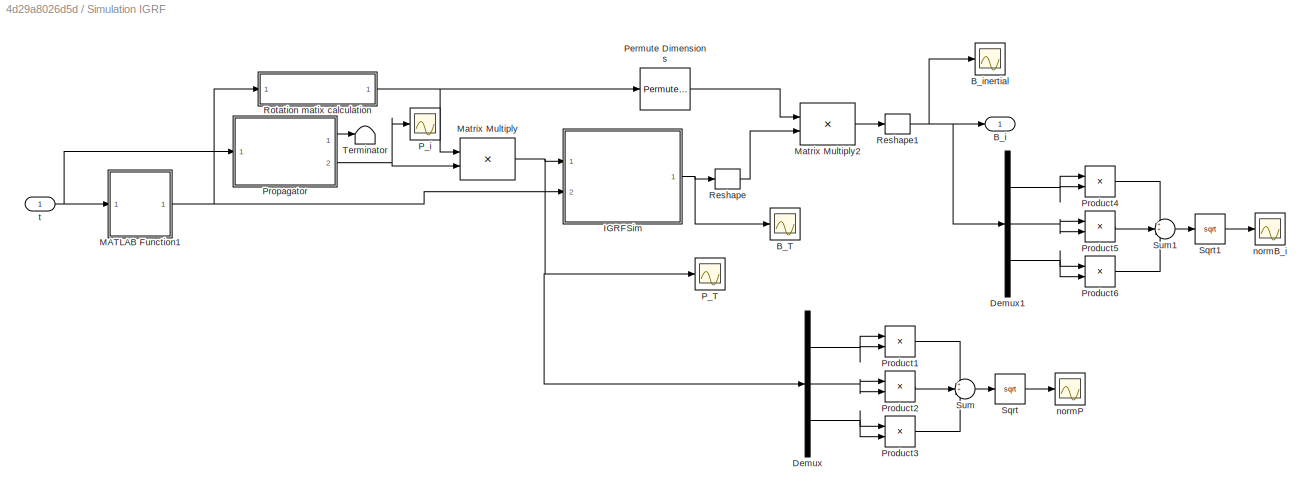
BLOCK [SubSystem] Simulation IGRF
  Ports = [1, 1]
  RequestExecContextInheritance = off
BLOCK [Scope] Simulation IGRF/B_T
  Floating = off
  NumInputPorts = 1
  Ports = [1]
  ScopeSpecificationString = Simulink.scopes.TimeScopeBlockCfg('CurrentConfiguration', extmgr.ConfigurationSet(extmgr.Configuration('Core','General UI',true),extmgr.Configuration('Core','Source UI',true),extmgr.Configuration('Sources','WiredSimulink',true,'DataLoggingVariableName','ScopeData3'),extmgr.Configuration('Visuals','Time Domain',true,'SerializedDisplays',{struct('MinYLimReal','-0.00006','MaxYLimReal','0.00005','YLab...<+1445ch>
BLOCK [Outport] Simulation IGRF/B_i
  IconDisplay = Port number
BLOCK [Scope] Simulation IGRF/B_inertial
  Floating = off
  NumInputPorts = 1
  Ports = [1]
  ScopeSpecificationString = Simulink.scopes.TimeScopeBlockCfg('CurrentConfiguration', extmgr.ConfigurationSet(extmgr.Configuration('Core','General UI',true),extmgr.Configuration('Core','Source UI',true),extmgr.Configuration('Sources','WiredSimulink',true,'DataLoggingVariableName','ScopeData2'),extmgr.Configuration('Visuals','Time Domain',true,'SerializedDisplays',{struct('MinYLimReal','-0.00006','MaxYLimReal','0.00006','YLab...<+1424ch>
BLOCK [Demux] Simulation IGRF/Demux
  DisplayOption = bar
  Outputs = 3
  Ports = [1, 3]
BLOCK [Demux] Simulation IGRF/Demux1
  DisplayOption = bar
  Outputs = 3
  Ports = [1, 3]
BLOCK [SubSystem] Simulation IGRF/IGRFSim
  ErrorFcn = Stateflow.Translate.translate
  PermitHierarchicalResolution = ExplicitOnly
  Ports = [2, 1]
  RequestExecContextInheritance = off
  SFBlockType = MATLAB Function
  TreatAsAtomicUnit = on
BLOCK [Demux] Simulation IGRF/IGRFSim/ Demux 
  Outputs = 1
  Ports = [1, 1]
BLOCK [S-Function] Simulation IGRF/IGRFSim/ SFunction 
  EnableBusSupport = on
  FunctionName = sf_sfun
  Parameters = GHsim,SVsim,Ysim
  PortCounts = [2 2]
  Ports = [2, 2]
  SFcnIsStateOwnerBlock = off
  SFunctionDeploymentMode = off
  Tag = Stateflow S-Function ADCS2018_Simulink_Full 5
BLOCK [Terminator] Simulation IGRF/IGRFSim/ Terminator 
BLOCK [Outport] Simulation IGRF/IGRFSim/B_ECEF
  IconDisplay = Port number
BLOCK [Inport] Simulation IGRF/IGRFSim/P_ECEF
  IconDisplay = Port number
BLOCK [Inport] Simulation IGRF/IGRFSim/jD
  IconDisplay = Port number
  Port = 2
BLOCK [SubSystem] Simulation IGRF/MATLAB Function1
  ErrorFcn = Stateflow.Translate.translate
  PermitHierarchicalResolution = ExplicitOnly
  Ports = [1, 1]
  RequestExecContextInheritance = off
  SFBlockType = MATLAB Function
  TreatAsAtomicUnit = on
BLOCK [Demux] Simulation IGRF/MATLAB Function1/ Demux 
  Outputs = 1
  Ports = [1, 1]
BLOCK [S-Function] Simulation IGRF/MATLAB Function1/ SFunction 
  EnableBusSupport = on
  FunctionName = sf_sfun
  Parameters = tme_init
  PortCounts = [1 2]
  Ports = [1, 2]
  SFcnIsStateOwnerBlock = off
  SFunctionDeploymentMode = off
  Tag = Stateflow S-Function ADCS2018_Simulink_Full 12
BLOCK [Terminator] Simulation IGRF/MATLAB Function1/ Terminator 
BLOCK [Outport] Simulation IGRF/MATLAB Function1/T_JD
  IconDisplay = Port number
BLOCK [Inport] Simulation IGRF/MATLAB Function1/t
  IconDisplay = Port number
BLOCK [Product] Simulation IGRF/Matrix Multiply
  InputSameDT = off
  Multiplication = Matrix(*)
  OutDataTypeStr = Inherit: Inherit via internal rule
  Ports = [2, 1]
  RndMeth = Floor
  SaturateOnIntegerOverflow = off
BLOCK [Product] Simulation IGRF/Matrix Multiply2
  InputSameDT = off
  Multiplication = Matrix(*)
  OutDataTypeStr = Inherit: Inherit via internal rule
  Ports = [2, 1]
  RndMeth = Floor
  SaturateOnIntegerOverflow = off
BLOCK [Scope] Simulation IGRF/P_T
  Floating = off
  NumInputPorts = 1
  Ports = [1]
  ScopeSpecificationString = Simulink.scopes.TimeScopeBlockCfg('CurrentConfiguration', extmgr.ConfigurationSet(extmgr.Configuration('Core','General UI',true),extmgr.Configuration('Core','Source UI',true),extmgr.Configuration('Sources','WiredSimulink',true,'DataLoggingVariableName','ScopeData4'),extmgr.Configuration('Visuals','Time Domain',true,'SerializedDisplays',{struct('MinYLimReal','-6033576.78753','MaxYLimReal','695513.2...<+1557ch>
BLOCK [Scope] Simulation IGRF/P_i
  Floating = off
  NumInputPorts = 1
  Ports = [1]
  ScopeSpecificationString = Simulink.scopes.TimeScopeBlockCfg('CurrentConfiguration', extmgr.ConfigurationSet(extmgr.Configuration('Core','General UI',true),extmgr.Configuration('Core','Source UI',true),extmgr.Configuration('Sources','WiredSimulink',true,'DataLoggingVariableName','ScopeData1'),extmgr.Configuration('Visuals','Time Domain',true,'SerializedDisplays',{struct('MinYLimReal','-877625.00000','MaxYLimReal','7898625.0...<+1524ch>
BLOCK [PermuteDimensions] Simulation IGRF/Permute Dimensions
BLOCK [Product] Simulation IGRF/Product1
  InputSameDT = off
  OutDataTypeStr = Inherit: Inherit via internal rule
  Ports = [2, 1]
  RndMeth = Floor
  SaturateOnIntegerOverflow = off
BLOCK [Product] Simulation IGRF/Product2
  InputSameDT = off
  OutDataTypeStr = Inherit: Inherit via internal rule
  Ports = [2, 1]
  RndMeth = Floor
  SaturateOnIntegerOverflow = off
BLOCK [Product] Simulation IGRF/Product3
  InputSameDT = off
  OutDataTypeStr = Inherit: Inherit via internal rule
  Ports = [2, 1]
  RndMeth = Floor
  SaturateOnIntegerOverflow = off
BLOCK [Product] Simulation IGRF/Product4
  InputSameDT = off
  OutDataTypeStr = Inherit: Inherit via internal rule
  Ports = [2, 1]
  RndMeth = Floor
  SaturateOnIntegerOverflow = off
BLOCK [Product] Simulation IGRF/Product5
  InputSameDT = off
  OutDataTypeStr = Inherit: Inherit via internal rule
  Ports = [2, 1]
  RndMeth = Floor
  SaturateOnIntegerOverflow = off
BLOCK [Product] Simulation IGRF/Product6
  InputSameDT = off
  OutDataTypeStr = Inherit: Inherit via internal rule
  Ports = [2, 1]
  RndMeth = Floor
  SaturateOnIntegerOverflow = off
BLOCK [SubSystem] Simulation IGRF/Propagator
  ErrorFcn = Stateflow.Translate.translate
  PermitHierarchicalResolution = ExplicitOnly
  Ports = [1, 2]
  RequestExecContextInheritance = off
  SFBlockType = MATLAB Function
  TreatAsAtomicUnit = on
BLOCK [Demux] Simulation IGRF/Propagator/ Demux 
  Outputs = 1
  Ports = [1, 1]
BLOCK [S-Function] Simulation IGRF/Propagator/ SFunction 
  EnableBusSupport = on
  FunctionName = sf_sfun
  Parameters = kep_init
  PortCounts = [1 3]
  Ports = [1, 3]
  SFcnIsStateOwnerBlock = off
  SFunctionDeploymentMode = off
  Tag = Stateflow S-Function ADCS2018_Simulink_Full 11
BLOCK [Terminator] Simulation IGRF/Propagator/ Terminator 
BLOCK [Outport] Simulation IGRF/Propagator/P_TEME
  IconDisplay = Port number
  Port = 2
BLOCK [Outport] Simulation IGRF/Propagator/V_TEME
  IconDisplay = Port number
BLOCK [Inport] Simulation IGRF/Propagator/t
  IconDisplay = Port number
BLOCK [Reshape] Simulation IGRF/Reshape
  OutputDimensionality = Column vector (2-D)
  Ports = [1, 1]
BLOCK [Reshape] Simulation IGRF/Reshape1
  Ports = [1, 1]
BLOCK [SubSystem] Simulation IGRF/Rotation matix calculation
  Ports = [1, 1]
  RequestExecContextInheritance = off
BLOCK [Constant] Simulation IGRF/Rotation matix calculation/Constant
  Value = 0
BLOCK [Constant] Simulation IGRF/Rotation matix calculation/Constant1
BLOCK [SubSystem] Simulation IGRF/Rotation matix calculation/GMST calculation
  Ports = [1, 1]
  RequestExecContextInheritance = off
BLOCK [Sum] Simulation IGRF/Rotation matix calculation/GMST calculation/Add
  InputSameDT = off
  Inputs = +-
  OutDataTypeStr = Inherit: Inherit via internal rule
  Ports = [2, 1]
  SaturateOnIntegerOverflow = off
BLOCK [Sum] Simulation IGRF/Rotation matix calculation/GMST calculation/Add1
  InputSameDT = off
  Inputs = +-
  OutDataTypeStr = Inherit: Inherit via internal rule
  Ports = [2, 1]
  SaturateOnIntegerOverflow = off
BLOCK [Sum] Simulation IGRF/Rotation matix calculation/GMST calculation/Add2
  InputSameDT = off
  Inputs = -+
  OutDataTypeStr = Inherit: Inherit via internal rule
  Ports = [2, 1]
  SaturateOnIntegerOverflow = off
BLOCK [Sum] Simulation IGRF/Rotation matix calculation/GMST calculation/Add3
  InputSameDT = off
  OutDataTypeStr = Inherit: Inherit via internal rule
  Ports = [2, 1]
  SaturateOnIntegerOverflow = off
BLOCK [Sum] Simulation IGRF/Rotation matix calculation/GMST calculation/Add4
  InputSameDT = off
  OutDataTypeStr = Inherit: Inherit via internal rule
  Ports = [2, 1]
  SaturateOnIntegerOverflow = off
BLOCK [Sum] Simulation IGRF/Rotation matix calculation/GMST calculation/Add5
  InputSameDT = off
  Inputs = +-
  OutDataTypeStr = Inherit: Inherit via internal rule
  Ports = [2, 1]
  SaturateOnIntegerOverflow = off
BLOCK [Sum] Simulation IGRF/Rotation matix calculation/GMST calculation/Add6
  InputSameDT = off
  OutDataTypeStr = Inherit: Inherit via internal rule
  Ports = [2, 1]
  SaturateOnIntegerOverflow = off
BLOCK [Constant] Simulation IGRF/Rotation matix calculation/GMST calculation/Constant1
  Value = 6.2*1e-6
BLOCK [Constant] Simulation IGRF/Rotation matix calculation/GMST calculation/Constant2
  Value = 2400000.5
BLOCK [Constant] Simulation IGRF/Rotation matix calculation/GMST calculation/Constant3
  Value = 51544.5
BLOCK [Constant] Simulation IGRF/Rotation matix calculation/GMST calculation/Constant4
  Value = 36525
BLOCK [Constant] Simulation IGRF/Rotation matix calculation/GMST calculation/Constant5
  Value = 0.093104
BLOCK [Constant] Simulation IGRF/Rotation matix calculation/GMST calculation/Constant6
  Value = 8640184.812866
BLOCK [Constant] Simulation IGRF/Rotation matix calculation/GMST calculation/Constant7
  Value = 24110.54841
BLOCK [Constant] Simulation IGRF/Rotation matix calculation/GMST calculation/Constant8
  Value = 7.272205216643039903848711535369*1e-5
BLOCK [Constant] Simulation IGRF/Rotation matix calculation/GMST calculation/Constant9
  Value = 2*pi()
BLOCK [Product] Simulation IGRF/Rotation matix calculation/GMST calculation/Divide
  InputSameDT = off
  Inputs = */
  OutDataTypeStr = Inherit: Inherit via internal rule
  Ports = [2, 1]
  RndMeth = Floor
  SaturateOnIntegerOverflow = off
BLOCK [Product] Simulation IGRF/Rotation matix calculation/GMST calculation/Divide1
  InputSameDT = off
  Inputs = **
  OutDataTypeStr = Inherit: Inherit via internal rule
  Ports = [2, 1]
  RndMeth = Floor
  SaturateOnIntegerOverflow = off
BLOCK [Product] Simulation IGRF/Rotation matix calculation/GMST calculation/Divide2
  InputSameDT = off
  Inputs = **
  OutDataTypeStr = Inherit: Inherit via internal rule
  Ports = [2, 1]
  RndMeth = Floor
  SaturateOnIntegerOverflow = off
BLOCK [Product] Simulation IGRF/Rotation matix calculation/GMST calculation/Divide3
  InputSameDT = off
  Inputs = **
  OutDataTypeStr = Inherit: Inherit via internal rule
  Ports = [2, 1]
  RndMeth = Floor
  SaturateOnIntegerOverflow = off
BLOCK [Product] Simulation IGRF/Rotation matix calculation/GMST calculation/Divide4
  InputSameDT = off
  Inputs = **
  OutDataTypeStr = Inherit: Inherit via internal rule
  Ports = [2, 1]
  RndMeth = Floor
  SaturateOnIntegerOverflow = off
BLOCK [Outport] Simulation IGRF/Rotation matix calculation/GMST calculation/GMST
  IconDisplay = Port number
BLOCK [Gain] Simulation IGRF/Rotation matix calculation/GMST calculation/Gain1
  Gain = 2*pi()
  OutDataTypeStr = Inherit: Inherit via internal rule
  ParamDataTypeStr = Inherit: Inherit via internal rule
  SaturateOnIntegerOverflow = off
BLOCK [Math] Simulation IGRF/Rotation matix calculation/GMST calculation/Math Function
  Operator = mod
  Ports = [2, 1]
BLOCK [Rounding] Simulation IGRF/Rotation matix calculation/GMST calculation/Rounding Function
BLOCK [Inport] Simulation IGRF/Rotation matix calculation/GMST calculation/T_jD
  IconDisplay = Port number
BLOCK [Gain] Simulation IGRF/Rotation matix calculation/Gain2
  Gain = -1
  OutDataTypeStr = Inherit: Inherit via internal rule
  ParamDataTypeStr = Inherit: Inherit via internal rule
  SaturateOnIntegerOverflow = off
BLOCK [Outport] Simulation IGRF/Rotation matix calculation/M_TEMEECEF
  IconDisplay = Port number
BLOCK [Concatenate] Simulation IGRF/Rotation matix calculation/Matrix Concatenate
  ConcatenateDimension = 2
  Mode = Multidimensional array
  NumInputs = 3
  Ports = [3, 1]
BLOCK [Mux] Simulation IGRF/Rotation matix calculation/Mux
  DisplayOption = bar
  Inputs = 3
  Ports = [3, 1]
BLOCK [Mux] Simulation IGRF/Rotation matix calculation/Mux2
  DisplayOption = bar
  Inputs = 3
  Ports = [3, 1]
BLOCK [Mux] Simulation IGRF/Rotation matix calculation/Mux3
  DisplayOption = bar
  Inputs = 3
  Ports = [3, 1]
BLOCK [Reshape] Simulation IGRF/Rotation matix calculation/Reshape
  Ports = [1, 1]
BLOCK [Reshape] Simulation IGRF/Rotation matix calculation/Reshape1
  Ports = [1, 1]
BLOCK [Reshape] Simulation IGRF/Rotation matix calculation/Reshape2
  Ports = [1, 1]
BLOCK [Inport] Simulation IGRF/Rotation matix calculation/T_jD
  IconDisplay = Port number
BLOCK [Trigonometry] Simulation IGRF/Rotation matix calculation/sincos
  Operator = sincos
  Ports = [1, 2]
BLOCK [Sqrt] Simulation IGRF/Sqrt
BLOCK [Sqrt] Simulation IGRF/Sqrt1
BLOCK [Sum] Simulation IGRF/Sum
  IconShape = round
  InputSameDT = off
  Inputs = 3
  OutDataTypeStr = Inherit: Inherit via internal rule
  Ports = [3, 1]
  SaturateOnIntegerOverflow = off
BLOCK [Sum] Simulation IGRF/Sum1
  IconShape = round
  InputSameDT = off
  Inputs = 3
  OutDataTypeStr = Inherit: Inherit via internal rule
  Ports = [3, 1]
  SaturateOnIntegerOverflow = off
BLOCK [Terminator] Simulation IGRF/Terminator
BLOCK [Scope] Simulation IGRF/normB_i
  Floating = off
  NumInputPorts = 1
  Ports = [1]
  ScopeSpecificationString = Simulink.scopes.TimeScopeBlockCfg('CurrentConfiguration', extmgr.ConfigurationSet(extmgr.Configuration('Core','General UI',true),extmgr.Configuration('Core','Source UI',true),extmgr.Configuration('Sources','WiredSimulink',true,'DataLoggingVariableName','ScopeData1'),extmgr.Configuration('Visuals','Time Domain',true,'SerializedDisplays',{struct('MinYLimReal','0.000009','MaxYLimReal','0.000054','YLa...<+1423ch>
BLOCK [Scope] Simulation IGRF/normP
  Floating = off
  NumInputPorts = 1
  Ports = [1]
  ScopeSpecificationString = Simulink.scopes.TimeScopeBlockCfg('CurrentConfiguration', extmgr.ConfigurationSet(extmgr.Configuration('Core','General UI',true),extmgr.Configuration('Core','Source UI',true),extmgr.Configuration('Sources','WiredSimulink',true,'DataLoggingVariableName','ScopeData5'),extmgr.Configuration('Visuals','Time Domain',true,'SerializedDisplays',{struct('MinYLimReal','6021000.00000','MaxYLimReal','8021000.0...<+1435ch>
BLOCK [Inport] Simulation IGRF/t
  IconDisplay = Port number
BLOCK [SubSystem] Subsystem2
  Ports = [1, 1]
  RequestExecContextInheritance = off
BLOCK [Demux] Subsystem2/Demux3
  DisplayOption = bar
  Outputs = 3
  Ports = [1, 3]
BLOCK [Gain] Subsystem2/Gain6
  Gain = mr_max/vr_max
  OutDataTypeStr = Inherit: Inherit via internal rule
  ParamDataTypeStr = Inherit: Inherit via internal rule
  SaturateOnIntegerOverflow = off
BLOCK [Gain] Subsystem2/Gain7
  Gain = mr_max/vr_max
  OutDataTypeStr = Inherit: Inherit via internal rule
  ParamDataTypeStr = Inherit: Inherit via internal rule
  SaturateOnIntegerOverflow = off
BLOCK [Gain] Subsystem2/Gain8
  Gain = mc_max/vc_max
  OutDataTypeStr = Inherit: Inherit via internal rule
  ParamDataTypeStr = Inherit: Inherit via internal rule
  SaturateOnIntegerOverflow = off
BLOCK [Inport] Subsystem2/In1
  IconDisplay = Port number
BLOCK [Mux] Subsystem2/Mux7
  DisplayOption = bar
  Inputs = 3
  Ports = [3, 1]
BLOCK [Outport] Subsystem2/Out1
  IconDisplay = Port number
BLOCK [Display] Total mah
  Decimation = 1
  Ports = [1]
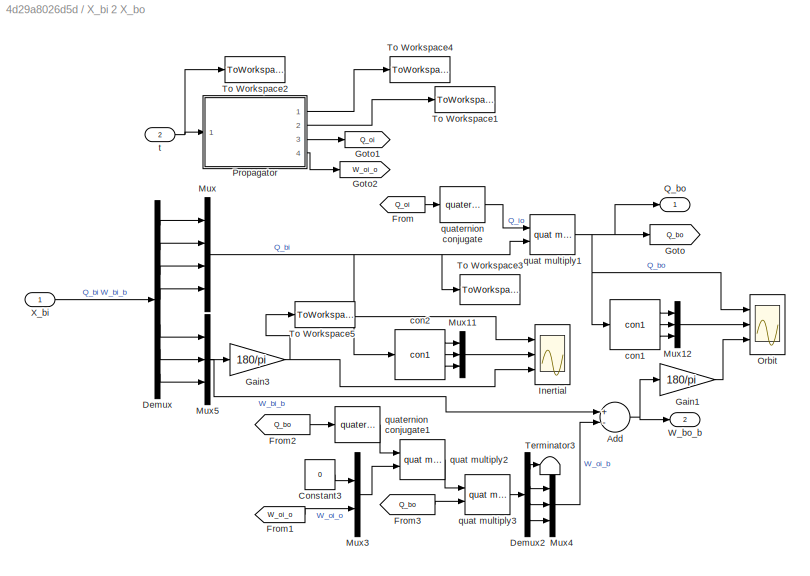
BLOCK [SubSystem] X_bi 2 X_bo 
  Ports = [2, 2]
  RequestExecContextInheritance = off
BLOCK [Sum] X_bi 2 X_bo /Add
  InputSameDT = off
  Inputs = +-
  OutDataTypeStr = Inherit: Inherit via internal rule
  Ports = [2, 1]
  SaturateOnIntegerOverflow = off
BLOCK [Constant] X_bi 2 X_bo /Constant3
  Value = 0
BLOCK [Demux] X_bi 2 X_bo /Demux
  DisplayOption = bar
  Outputs = 7
  Ports = [1, 7]
BLOCK [Demux] X_bi 2 X_bo /Demux2
  DisplayOption = bar
  Ports = [1, 4]
BLOCK [From] X_bi 2 X_bo /From
  GotoTag = Q_oi
BLOCK [From] X_bi 2 X_bo /From1
  GotoTag = W_oi_o
BLOCK [From] X_bi 2 X_bo /From2
  GotoTag = Q_bo
BLOCK [From] X_bi 2 X_bo /From3
  GotoTag = Q_bo
BLOCK [Gain] X_bi 2 X_bo /Gain1
  Gain = 180/pi
  OutDataTypeStr = Inherit: Inherit via internal rule
  ParamDataTypeStr = Inherit: Inherit via internal rule
  SaturateOnIntegerOverflow = off
BLOCK [Gain] X_bi 2 X_bo /Gain3
  Gain = 180/pi
  OutDataTypeStr = Inherit: Inherit via internal rule
  ParamDataTypeStr = Inherit: Inherit via internal rule
  SaturateOnIntegerOverflow = off
BLOCK [Goto] X_bi 2 X_bo /Goto
  GotoTag = Q_bo
BLOCK [Goto] X_bi 2 X_bo /Goto1
  GotoTag = Q_oi
BLOCK [Goto] X_bi 2 X_bo /Goto2
  GotoTag = W_oi_o
BLOCK [Scope] X_bi 2 X_bo /Inertial
  Floating = off
  NumInputPorts = 3
  Ports = [3]
  ScopeSpecificationString = Simulink.scopes.TimeScopeBlockCfg('CurrentConfiguration', extmgr.ConfigurationSet(extmgr.Configuration('Core','General UI',true,'FigureColor',[1 1 1]),extmgr.Configuration('Core','Source UI',true),extmgr.Configuration('Sources','WiredSimulink',true,'DataLoggingSaveFormat','Array','DataLoggingDecimation','1','DataLoggingVariableName','ScopeData1'),extmgr.Configuration('Visuals','Time Domain',true,'...<+5480ch>
BLOCK [Mux] X_bi 2 X_bo /Mux
  DisplayOption = bar
  Ports = [4, 1]
BLOCK [Mux] X_bi 2 X_bo /Mux11
  DisplayOption = bar
  Inputs = 3
  Ports = [3, 1]
BLOCK [Mux] X_bi 2 X_bo /Mux12
  DisplayOption = bar
  Inputs = 3
  Ports = [3, 1]
BLOCK [Mux] X_bi 2 X_bo /Mux3
  DisplayOption = bar
  Inputs = 2
  Ports = [2, 1]
BLOCK [Mux] X_bi 2 X_bo /Mux4
  DisplayOption = bar
  Inputs = 3
  Ports = [3, 1]
BLOCK [Mux] X_bi 2 X_bo /Mux5
  DisplayOption = bar
  Inputs = 3
  Ports = [3, 1]
BLOCK [Scope] X_bi 2 X_bo /Orbit
  Floating = off
  NumInputPorts = 3
  Ports = [3]
  ScopeSpecificationString = Simulink.scopes.TimeScopeBlockCfg('CurrentConfiguration', extmgr.ConfigurationSet(extmgr.Configuration('Core','General UI',true,'FigureColor',[1 1 1]),extmgr.Configuration('Core','Source UI',true),extmgr.Configuration('Sources','WiredSimulink',true,'DataLoggingSaveFormat','Array','DataLoggingDecimation','1','DataLoggingVariableName','ScopeData1'),extmgr.Configuration('Visuals','Time Domain',true,'...<+5470ch>
BLOCK [SubSystem] X_bi 2 X_bo /Propagator
  ErrorFcn = Stateflow.Translate.translate
  PermitHierarchicalResolution = ExplicitOnly
  Ports = [1, 4]
  RequestExecContextInheritance = off
  SFBlockType = MATLAB Function
  TreatAsAtomicUnit = on
BLOCK [Demux] X_bi 2 X_bo /Propagator/ Demux 
  Outputs = 1
  Ports = [1, 1]
BLOCK [S-Function] X_bi 2 X_bo /Propagator/ SFunction 
  EnableBusSupport = on
  FunctionName = sf_sfun
  Parameters = kep_init
  PortCounts = [1 5]
  Ports = [1, 5]
  SFcnIsStateOwnerBlock = off
  SFunctionDeploymentMode = off
  Tag = Stateflow S-Function ADCS2018_Simulink_Full 7
BLOCK [Terminator] X_bi 2 X_bo /Propagator/ Terminator 
BLOCK [Outport] X_bi 2 X_bo /Propagator/P_TEME
  IconDisplay = Port number
  Port = 2
BLOCK [Outport] X_bi 2 X_bo /Propagator/Q_oi
  IconDisplay = Port number
  Port = 3
BLOCK [Outport] X_bi 2 X_bo /Propagator/V_TEME
  IconDisplay = Port number
BLOCK [Outport] X_bi 2 X_bo /Propagator/W_oi_o
  IconDisplay = Port number
  Port = 4
BLOCK [Inport] X_bi 2 X_bo /Propagator/t
  IconDisplay = Port number
BLOCK [Outport] X_bi 2 X_bo /Q_bo
  IconDisplay = Port number
BLOCK [Terminator] X_bi 2 X_bo /Terminator3
BLOCK [ToWorkspace] X_bi 2 X_bo /To Workspace1
  FixptAsFi = on
  MaxDataPoints = inf
  Ports = [1]
  SampleTime = -1
  Save2DSignal = 3-D array (concatenate along third dimension)
  VariableName = pos
BLOCK [ToWorkspace] X_bi 2 X_bo /To Workspace2
  FixptAsFi = on
  MaxDataPoints = inf
  Ports = [1]
  SampleTime = -1
  Save2DSignal = 3-D array (concatenate along third dimension)
  VariableName = tme
BLOCK [ToWorkspace] X_bi 2 X_bo /To Workspace3
  FixptAsFi = on
  MaxDataPoints = inf
  Ports = [1]
  SampleTime = -1
  Save2DSignal = 3-D array (concatenate along third dimension)
  VariableName = aty
BLOCK [ToWorkspace] X_bi 2 X_bo /To Workspace4
  FixptAsFi = on
  MaxDataPoints = inf
  Ports = [1]
  SampleTime = -1
  Save2DSignal = 3-D array (concatenate along third dimension)
  VariableName = vit
BLOCK [ToWorkspace] X_bi 2 X_bo /To Workspace5
  FixptAsFi = on
  MaxDataPoints = inf
  Ports = [1]
  SampleTime = -1
  Save2DSignal = 3-D array (concatenate along third dimension)
  VariableName = avi
BLOCK [Outport] X_bi 2 X_bo /W_bo_b
  IconDisplay = Port number
  Port = 2
BLOCK [Inport] X_bi 2 X_bo /X_bi
  IconDisplay = Port number
BLOCK [Reference] X_bi 2 X_bo /con1  REF=My_library/con1
  Ports = [1, 3]
  SourceBlock = My_library/con1
  SourceProductName = My Library
BLOCK [Reference] X_bi 2 X_bo /con2  REF=My_library/con1
  Ports = [1, 3]
  SourceBlock = My_library/con1
  SourceProductName = My Library
BLOCK [Reference] X_bi 2 X_bo /quat multiply1  REF=My_library/quat multiply
  Ports = [2, 1]
  SourceBlock = My_library/quat multiply
  SourceProductName = My Library
BLOCK [Reference] X_bi 2 X_bo /quat multiply2  REF=My_library/quat multiply
  Ports = [2, 1]
  SourceBlock = My_library/quat multiply
  SourceProductName = My Library
BLOCK [Reference] X_bi 2 X_bo /quat multiply3  REF=My_library/quat multiply
  Ports = [2, 1]
  SourceBlock = My_library/quat multiply
  SourceProductName = My Library
BLOCK [Reference] X_bi 2 X_bo /quaternion conjugate  REF=My_library/quaternion conjugate
  Ports = [1, 1]
  SourceBlock = My_library/quaternion conjugate
  SourceProductName = My Library
BLOCK [Reference] X_bi 2 X_bo /quaternion conjugate1  REF=My_library/quaternion conjugate
  Ports = [1, 1]
  SourceBlock = My_library/quaternion conjugate
  SourceProductName = My Library
BLOCK [Inport] X_bi 2 X_bo /t
  IconDisplay = Port number
  Port = 2
BLOCK [SubSystem] X_bo  2  X_bi
  Ports = [1, 1]
  RequestExecContextInheritance = off
BLOCK [Sum] X_bo  2  X_bi/Add
  InputSameDT = off
  OutDataTypeStr = Inherit: Inherit via internal rule
  Ports = [2, 1]
  SaturateOnIntegerOverflow = off
BLOCK [Constant] X_bo  2  X_bi/Constant3
  Value = 0
BLOCK [Constant] X_bo  2  X_bi/Constant4
  Value = 0
BLOCK [Demux] X_bo  2  X_bi/Demux
  DisplayOption = bar
  Outputs = 7
  Ports = [1, 7]
BLOCK [Demux] X_bo  2  X_bi/Demux1
  DisplayOption = bar
  Ports = [1, 4]
BLOCK [From] X_bo  2  X_bi/From
  GotoTag = Q_bo
BLOCK [From] X_bo  2  X_bi/From1
  GotoTag = W_bo_b
BLOCK [From] X_bo  2  X_bi/From2
  GotoTag = Q_bo
BLOCK [From] X_bo  2  X_bi/From3
  GotoTag = Q_bo
BLOCK [From] X_bo  2  X_bi/From4
  GotoTag = W_oi_o
BLOCK [From] X_bo  2  X_bi/From5
  GotoTag = Q_oi
BLOCK [Goto] X_bo  2  X_bi/Goto
  GotoTag = Q_bo
BLOCK [Goto] X_bo  2  X_bi/Goto1
  GotoTag = W_bo_b
BLOCK [Goto] X_bo  2  X_bi/Goto2
  GotoTag = W_oi_o
BLOCK [Goto] X_bo  2  X_bi/Goto3
  GotoTag = Q_oi
BLOCK [Mux] X_bo  2  X_bi/Mux
  DisplayOption = bar
  Ports = [4, 1]
BLOCK [Mux] X_bo  2  X_bi/Mux1
  DisplayOption = bar
  Inputs = 2
  Ports = [2, 1]
BLOCK [Mux] X_bo  2  X_bi/Mux3
  DisplayOption = bar
  Inputs = 2
  Ports = [2, 1]
BLOCK [Mux] X_bo  2  X_bi/Mux4
  DisplayOption = bar
  Inputs = 3
  Ports = [3, 1]
BLOCK [Mux] X_bo  2  X_bi/Mux5
  DisplayOption = bar
  Inputs = 3
  Ports = [3, 1]
BLOCK [SubSystem] X_bo  2  X_bi/Propagator1
  ErrorFcn = Stateflow.Translate.translate
  PermitHierarchicalResolution = ExplicitOnly
  Ports = [1, 4]
  RequestExecContextInheritance = off
  SFBlockType = MATLAB Function
  TreatAsAtomicUnit = on
BLOCK [Demux] X_bo  2  X_bi/Propagator1/ Demux 
  Outputs = 1
  Ports = [1, 1]
BLOCK [S-Function] X_bo  2  X_bi/Propagator1/ SFunction 
  EnableBusSupport = on
  FunctionName = sf_sfun
  Parameters = kep_init
  PortCounts = [1 5]
  Ports = [1, 5]
  SFcnIsStateOwnerBlock = off
  SFunctionDeploymentMode = off
  Tag = Stateflow S-Function ADCS2018_Simulink_Full 8
BLOCK [Terminator] X_bo  2  X_bi/Propagator1/ Terminator 
BLOCK [Outport] X_bo  2  X_bi/Propagator1/P_TEME
  IconDisplay = Port number
  Port = 2
BLOCK [Outport] X_bo  2  X_bi/Propagator1/Q_oi
  IconDisplay = Port number
  Port = 3
BLOCK [Outport] X_bo  2  X_bi/Propagator1/V_TEME
  IconDisplay = Port number
BLOCK [Outport] X_bo  2  X_bi/Propagator1/W_oi_o
  IconDisplay = Port number
  Port = 4
BLOCK [Inport] X_bo  2  X_bi/Propagator1/t
  IconDisplay = Port number
BLOCK [Terminator] X_bo  2  X_bi/Terminator
BLOCK [Terminator] X_bo  2  X_bi/Terminator1
BLOCK [Terminator] X_bo  2  X_bi/Terminator2
BLOCK [Outport] X_bo  2  X_bi/X_bi
  IconDisplay = Port number
BLOCK [Inport] X_bo  2  X_bi/X_bo
  IconDisplay = Port number
BLOCK [Reference] X_bo  2  X_bi/quat multiply  REF=My_library/quat multiply
  Ports = [2, 1]
  SourceBlock = My_library/quat multiply
  SourceProductName = My Library
BLOCK [Reference] X_bo  2  X_bi/quat multiply1  REF=My_library/quat multiply
  Ports = [2, 1]
  SourceBlock = My_library/quat multiply
  SourceProductName = My Library
BLOCK [Reference] X_bo  2  X_bi/quat multiply2  REF=My_library/quat multiply
  Ports = [2, 1]
  SourceBlock = My_library/quat multiply
  SourceProductName = My Library
BLOCK [Reference] X_bo  2  X_bi/quaternion conjugate  REF=My_library/quaternion conjugate
  Ports = [1, 1]
  SourceBlock = My_library/quaternion conjugate
  SourceProductName = My Library
BLOCK [Display] current mah
  Decimation = 1
  Ports = [1]
BLOCK [Goto] initial
  GotoTag = xinit
BLOCK [From] initial cond
  GotoTag = xinit
BLOCK [Goto] initial1
  GotoTag = xconsigne
BLOCK [Goto] initial3
  GotoTag = mi
BLOCK [Goto] initial4
  GotoTag = pow
BLOCK [Constant] pitch
  Value = Pitch
BLOCK [Constant] pitch1
  Value = 0
BLOCK [SubSystem] power budget calculator
  Ports = [1, 2]
  RequestExecContextInheritance = off
BLOCK [Abs] power budget calculator/Abs
  SaturateOnIntegerOverflow = off
BLOCK [Abs] power budget calculator/Abs1
  SaturateOnIntegerOverflow = off
BLOCK [Abs] power budget calculator/Abs2
  SaturateOnIntegerOverflow = off
BLOCK [Sum] power budget calculator/Add
  InputSameDT = off
  Inputs = +++
  OutDataTypeStr = Inherit: Inherit via internal rule
  Ports = [3, 1]
  SaturateOnIntegerOverflow = off
BLOCK [Clock] power budget calculator/Clock
BLOCK [Reference] power budget calculator/Cumulative Sum  REF=dspmathops/Cumulative
Sum
  Ports = [1, 1]
  SourceBlock = dspmathops/Cumulative\nSum
  SourceProductBaseCode = DS
  SourceProductName = DSP System Toolbox
  SourceType = Cumulative Sum
  UserDataPersistent = on
BLOCK [Demux] power budget calculator/Demux
  DisplayOption = bar
  Outputs = 3
  Ports = [1, 3]
BLOCK [Reference] power budget calculator/Difference  REF=simulink/Discrete/Difference
  Ports = [1, 1]
  SourceBlock = simulink/Discrete/Difference
  SourceProductBaseCode = SL
  SourceProductName = Simulink
  SourceType = Difference
BLOCK [Gain] power budget calculator/Gain
  Gain = 5/18
  OutDataTypeStr = Inherit: Inherit via internal rule
  ParamDataTypeStr = Inherit: Inherit via internal rule
  SaturateOnIntegerOverflow = off
BLOCK [Gain] power budget calculator/Gain1
  Gain = 5/18
  OutDataTypeStr = Inherit: Inherit via internal rule
  ParamDataTypeStr = Inherit: Inherit via internal rule
  SaturateOnIntegerOverflow = off
BLOCK [Gain] power budget calculator/Gain2
  Gain = 1/Rx
  OutDataTypeStr = Inherit: Inherit via internal rule
  ParamDataTypeStr = Inherit: Inherit via internal rule
  SaturateOnIntegerOverflow = off
BLOCK [Gain] power budget calculator/Gain3
  Gain = 1/Ry
  OutDataTypeStr = Inherit: Inherit via internal rule
  ParamDataTypeStr = Inherit: Inherit via internal rule
  SaturateOnIntegerOverflow = off
BLOCK [Gain] power budget calculator/Gain4
  Gain = 1/Rz
  OutDataTypeStr = Inherit: Inherit via internal rule
  ParamDataTypeStr = Inherit: Inherit via internal rule
  SaturateOnIntegerOverflow = off
BLOCK [Product] power budget calculator/Product
  InputSameDT = off
  OutDataTypeStr = Inherit: Inherit via internal rule
  Ports = [2, 1]
  RndMeth = Floor
  SaturateOnIntegerOverflow = off
BLOCK [RateTransition] power budget calculator/Rate Transition1
BLOCK [RateTransition] power budget calculator/Rate Transition11
BLOCK [Outport] power budget calculator/Total mAH
  IconDisplay = Port number
BLOCK [Outport] power budget calculator/current mAH
  IconDisplay = Port number
  Port = 2
BLOCK [Inport] power budget calculator/volts
  IconDisplay = Port number
BLOCK [Reference] quat  REF=My_library/quat
  Ports = [1, 1]
  SourceBlock = My_library/quat
  SourceProductName = My Library
BLOCK [Reference] quat1  REF=My_library/quat
  Ports = [1, 1]
  SourceBlock = My_library/quat
  SourceProductName = My Library
BLOCK [Constant] roll
  Value = Roll
BLOCK [Constant] roll1
  Value = 0
BLOCK [SubSystem] speed cal
  Ports = [0, 1]
  RequestExecContextInheritance = off
BLOCK [Clock] speed cal/Clock1
BLOCK [SubSystem] speed cal/MATLAB Function
  ErrorFcn = Stateflow.Translate.translate
  PermitHierarchicalResolution = ExplicitOnly
  Ports = [1, 1]
  RequestExecContextInheritance = off
  SFBlockType = MATLAB Function
  TreatAsAtomicUnit = on
BLOCK [Demux] speed cal/MATLAB Function/ Demux 
  Outputs = 1
  Ports = [1, 1]
BLOCK [S-Function] speed cal/MATLAB Function/ SFunction 
  EnableBusSupport = on
  FunctionName = sf_sfun
  PortCounts = [1 2]
  Ports = [1, 2]
  SFcnIsStateOwnerBlock = off
  SFunctionDeploymentMode = off
  Tag = Stateflow S-Function ADCS2018_Simulink_Full 1
BLOCK [Terminator] speed cal/MATLAB Function/ Terminator 
BLOCK [Inport] speed cal/MATLAB Function/u
  IconDisplay = Port number
BLOCK [Outport] speed cal/MATLAB Function/y
  IconDisplay = Port number
BLOCK [Outport] speed cal/sim speed
  IconDisplay = Port number
BLOCK [Display] speed with realtime
  Decimation = 1
  Ports = [1]
BLOCK [Goto] state
  GotoTag = x
BLOCK [Constant] tinit
  Value = tme_init
BLOCK [Constant] wx
  Value = wx
BLOCK [Constant] wx1
  Value = 0
BLOCK [Constant] wy
  Value = wy
BLOCK [Constant] wy1
  Value = 0
BLOCK [Constant] wz
  Value = wz
BLOCK [Constant] wz1
  Value = 0
BLOCK [Constant] yaw
  Value = Yaw
BLOCK [Constant] yaw1
  Value = 0
ANNOTATION (root): Consigne
ANNOTATION (root): Steps Double click the block (in blue colour)to load the orbit & satellite parameters. Enter the initial conditions in degress. Run the simulation. Double click block in red to generate attitude for VTS
ANNOTATION (root): Initial conditions
ANNOTATION (root): Non- Linear Model in Inertial frame
ANNOTATION (root): Magnetic field measurement
ANNOTATION (root): [-pi()/2;pi()/2]
ANNOTATION (root): [-pi();pi()]
ANNOTATION Control/IGRF on bord/Rotation matix calculation/GMST calculation: TU
ANNOTATION Control/IGRF on bord/Rotation matix calculation/GMST calculation: UT1
ANNOTATION Disturbance/Gravity torque: R_bo
ANNOTATION Simulation IGRF/Rotation matix calculation/GMST calculation: TU
ANNOTATION Simulation IGRF/Rotation matix calculation/GMST calculation: UT1
LINE Actuator/Constant1:1 -> Actuator/Switch:3
NET Actuator/Cross Product:1 -> Actuator/Demux1:1, Actuator/To Workspace1:1, Actuator/Torque:1
LINE Actuator/Demux1:1 -> Actuator/control torque:1
LINE Actuator/Demux1:2 -> Actuator/control torque:2
LINE Actuator/Demux1:3 -> Actuator/control torque:3
LINE Actuator/Demux2:1 -> Actuator/Gain1:1
LINE Actuator/Demux2:2 -> Actuator/Gain2:1
LINE Actuator/Demux2:3 -> Actuator/Gain3:1
LINE Actuator/Gain1:1 -> Actuator/Mux1:1
LINE Actuator/Gain2:1 -> Actuator/Mux1:2
LINE Actuator/Gain3:1 -> Actuator/Mux1:3
NET Actuator/Mux1:1 -> Actuator/Cross Product:1, Actuator/Mag:1, Actuator/To Workspace4:1
LINE Actuator/Repeating Sequence Stair:1 -> Actuator/Switch:2
LINE Actuator/Switch:1 -> Actuator/Demux2:1
LINE Actuator/b_earth:1 -> Actuator/Cross Product:2
LINE Actuator/volts:1 -> Actuator/Switch:1
LINE Actuator:1 -> Rigid body Satellite:2
LINE B_i 2 B_b/B_i :1 -> B_i 2 B_b/Mux1:2
LINE B_i 2 B_b/Constant:1 -> B_i 2 B_b/Mux1:1
LINE B_i 2 B_b/Demux1:1 -> B_i 2 B_b/Mux:1
LINE B_i 2 B_b/Demux1:2 -> B_i 2 B_b/Mux:2
LINE B_i 2 B_b/Demux1:3 -> B_i 2 B_b/Mux:3
LINE B_i 2 B_b/Demux1:4 -> B_i 2 B_b/Mux:4
LINE B_i 2 B_b/Demux1:5 -> B_i 2 B_b/Mux5:1
LINE B_i 2 B_b/Demux1:6 -> B_i 2 B_b/Mux5:2
LINE B_i 2 B_b/Demux1:7 -> B_i 2 B_b/Mux5:3
LINE B_i 2 B_b/Demux:1 -> B_i 2 B_b/Terminator:1
LINE B_i 2 B_b/Demux:2 -> B_i 2 B_b/Mux2:1
LINE B_i 2 B_b/Demux:3 -> B_i 2 B_b/Mux2:2
LINE B_i 2 B_b/Demux:4 -> B_i 2 B_b/Mux2:3
LINE B_i 2 B_b/Mux1:1 -> B_i 2 B_b/quat multiply2:2
LINE B_i 2 B_b/Mux2:1 -> B_i 2 B_b/B_body:1
LINE B_i 2 B_b/Mux5:1 -> B_i 2 B_b/No need for the angular velocity:1
NET B_i 2 B_b/Mux:1 -> B_i 2 B_b/quat multiply1:2, B_i 2 B_b/quaternion conjugate:1
LINE B_i 2 B_b/X_bi:1 -> B_i 2 B_b/Demux1:1
LINE B_i 2 B_b/quat multiply1:1 -> B_i 2 B_b/Demux:1
LINE B_i 2 B_b/quat multiply2:1 -> B_i 2 B_b/quat multiply1:1
LINE B_i 2 B_b/quaternion conjugate:1 -> B_i 2 B_b/quat multiply2:1
NET B_i 2 B_b:1 -> B_IGRF_b:1, Goto3:1, Noise:1
LINE Clock:1 -> Goto:1
LINE Constant1:1 -> Control:7
LINE Constant2:1 -> Control:8
LINE Constant3:1 -> Control:9
LINE Constant:1 -> Control:5
NET Control/B_mes:1 -> Control/De_tumbling:1, Control/Mission:4
LINE Control/Consigne:1 -> Control/Mission:2
LINE Control/Constant:1 -> Control/control switch:1
LINE Control/De_tumbling/Add7:1 -> Control/De_tumbling/Divide2:3
LINE Control/De_tumbling/Add:1 -> Control/De_tumbling/Divide2:1
NET Control/De_tumbling/B_mes:1 -> Control/De_tumbling/Add:1, Control/De_tumbling/Unit Delay:1
LINE Control/De_tumbling/Divide2:1 -> Control/De_tumbling/B_dot:1
NET Control/De_tumbling/Time:1 -> Control/De_tumbling/Add7:1, Control/De_tumbling/Unit Delay1:1
LINE Control/De_tumbling/Unit Delay1:1 -> Control/De_tumbling/Add7:2
LINE Control/De_tumbling/Unit Delay:1 -> Control/De_tumbling/Add:2
LINE Control/De_tumbling/kd:1 -> Control/De_tumbling/Divide2:2
LINE Control/De_tumbling:1 -> Control/Switch:3
LINE Control/Demux4:1 -> Control/Saturation3:1
LINE Control/Demux4:2 -> Control/Saturation1:1
LINE Control/Demux4:3 -> Control/Saturation2:1
LINE Control/From:1 -> Control/Mission:1
LINE Control/Gain1:1 -> Control/Mux1:1
LINE Control/Gain2:1 -> Control/Mux1:2
LINE Control/Gain3:1 -> Control/Mux1:3
LINE Control/IGRF on bord/Frame change2/Constant7:1 -> Control/IGRF on bord/Frame change2/Mux6:1
LINE Control/IGRF on bord/Frame change2/Demux1:1 -> Control/IGRF on bord/Frame change2/Terminator2:1
LINE Control/IGRF on bord/Frame change2/Demux1:2 -> Control/IGRF on bord/Frame change2/Mux7:1
LINE Control/IGRF on bord/Frame change2/Demux1:3 -> Control/IGRF on bord/Frame change2/Mux7:2
LINE Control/IGRF on bord/Frame change2/Demux1:4 -> Control/IGRF on bord/Frame change2/Mux7:3
LINE Control/IGRF on bord/Frame change2/Mux6:1 -> Control/IGRF on bord/Frame change2/quat multiply4:2
LINE Control/IGRF on bord/Frame change2/Mux7:1 -> Control/IGRF on bord/Frame change2/V[2] :1
LINE Control/IGRF on bord/Frame change2/Q_12:1 -> Control/IGRF on bord/Frame change2/quat multiply4:1
LINE Control/IGRF on bord/Frame change2/V[1]:1 -> Control/IGRF on bord/Frame change2/Mux6:2
LINE Control/IGRF on bord/Frame change2/q:1 -> Control/IGRF on bord/Frame change2/quaternion conjugate2:1
LINE Control/IGRF on bord/Frame change2/quat multiply4:1 -> Control/IGRF on bord/Frame change2/quat multiply5:1
LINE Control/IGRF on bord/Frame change2/quat multiply5:1 -> Control/IGRF on bord/Frame change2/Demux1:1
LINE Control/IGRF on bord/Frame change2/quaternion conjugate2:1 -> Control/IGRF on bord/Frame change2/quat multiply5:2
LINE Control/IGRF on bord/Frame change2:1 -> Control/IGRF on bord/B_o:1
LINE Control/IGRF on bord/From:1 -> Control/IGRF on bord/quaternion conjugate2:1
LINE Control/IGRF on bord/IGRFEmb:1 -> Control/IGRF on bord/Reshape:1
LINE Control/IGRF on bord/Matrix Multiply2:1 -> Control/IGRF on bord/Reshape1:1
LINE Control/IGRF on bord/Matrix Multiply:1 -> Control/IGRF on bord/IGRFEmb:1
LINE Control/IGRF on bord/Permute Dimensions:1 -> Control/IGRF on bord/Matrix Multiply2:1
LINE Control/IGRF on bord/Propagator:1 -> Control/IGRF on bord/Terminator:1
LINE Control/IGRF on bord/Propagator:2 -> Control/IGRF on bord/Matrix Multiply:2
LINE Control/IGRF on bord/Propagator:3 -> Control/IGRF on bord/Goto:1
LINE Control/IGRF on bord/Reshape1:1 -> Control/IGRF on bord/Frame change2:1
LINE Control/IGRF on bord/Reshape:1 -> Control/IGRF on bord/Matrix Multiply2:2
LINE Control/IGRF on bord/Rotation matix calculation/Constant1:1 -> Control/IGRF on bord/Rotation matix calculation/Mux3:3
NET Control/IGRF on bord/Rotation matix calculation/Constant:1 -> Control/IGRF on bord/Rotation matix calculation/Mux2:3, Control/IGRF on bord/Rotation matix calculation/Mux3:1, Control/IGRF on bord/Rotation matix calculation/Mux3:2, Control/IGRF on bord/Rotation matix calculation/Mux:3
LINE Control/IGRF on bord/Rotation matix calculation/GMST calculation/Add1:1 -> Control/IGRF on bord/Rotation matix calculation/GMST calculation/Divide:1
LINE Control/IGRF on bord/Rotation matix calculation/GMST calculation/Add2:1 -> Control/IGRF on bord/Rotation matix calculation/GMST calculation/Divide2:2
LINE Control/IGRF on bord/Rotation matix calculation/GMST calculation/Add3:1 -> Control/IGRF on bord/Rotation matix calculation/GMST calculation/Divide3:2
LINE Control/IGRF on bord/Rotation matix calculation/GMST calculation/Add4:1 -> Control/IGRF on bord/Rotation matix calculation/GMST calculation/Divide4:2
LINE Control/IGRF on bord/Rotation matix calculation/GMST calculation/Add5:1 -> Control/IGRF on bord/Rotation matix calculation/GMST calculation/Gain1:1
LINE Control/IGRF on bord/Rotation matix calculation/GMST calculation/Add6:1 -> Control/IGRF on bord/Rotation matix calculation/GMST calculation/Math Function:1
NET Control/IGRF on bord/Rotation matix calculation/GMST calculation/Add:1 -> Control/IGRF on bord/Rotation matix calculation/GMST calculation/Add1:1, Control/IGRF on bord/Rotation matix calculation/GMST calculation/Add5:1, Control/IGRF on bord/Rotation matix calculation/GMST calculation/Rounding Function:1
LINE Control/IGRF on bord/Rotation matix calculation/GMST calculation/Constant1:1 -> Control/IGRF on bord/Rotation matix calculation/GMST calculation/Divide1:2
LINE Control/IGRF on bord/Rotation matix calculation/GMST calculation/Constant2:1 -> Control/IGRF on bord/Rotation matix calculation/GMST calculation/Add:2
LINE Control/IGRF on bord/Rotation matix calculation/GMST calculation/Constant3:1 -> Control/IGRF on bord/Rotation matix calculation/GMST calculation/Add1:2
LINE Control/IGRF on bord/Rotation matix calculation/GMST calculation/Constant4:1 -> Control/IGRF on bord/Rotation matix calculation/GMST calculation/Divide:2
LINE Control/IGRF on bord/Rotation matix calculation/GMST calculation/Constant5:1 -> Control/IGRF on bord/Rotation matix calculation/GMST calculation/Add2:2
LINE Control/IGRF on bord/Rotation matix calculation/GMST calculation/Constant6:1 -> Control/IGRF on bord/Rotation matix calculation/GMST calculation/Add3:2
LINE Control/IGRF on bord/Rotation matix calculation/GMST calculation/Constant7:1 -> Control/IGRF on bord/Rotation matix calculation/GMST calculation/Add4:2
LINE Control/IGRF on bord/Rotation matix calculation/GMST calculation/Constant8:1 -> Control/IGRF on bord/Rotation matix calculation/GMST calculation/Divide4:1
LINE Control/IGRF on bord/Rotation matix calculation/GMST calculation/Constant9:1 -> Control/IGRF on bord/Rotation matix calculation/GMST calculation/Math Function:2
LINE Control/IGRF on bord/Rotation matix calculation/GMST calculation/Divide1:1 -> Control/IGRF on bord/Rotation matix calculation/GMST calculation/Add2:1
LINE Control/IGRF on bord/Rotation matix calculation/GMST calculation/Divide2:1 -> Control/IGRF on bord/Rotation matix calculation/GMST calculation/Add3:1
LINE Control/IGRF on bord/Rotation matix calculation/GMST calculation/Divide3:1 -> Control/IGRF on bord/Rotation matix calculation/GMST calculation/Add4:1
LINE Control/IGRF on bord/Rotation matix calculation/GMST calculation/Divide4:1 -> Control/IGRF on bord/Rotation matix calculation/GMST calculation/Add6:2
NET Control/IGRF on bord/Rotation matix calculation/GMST calculation/Divide:1 -> Control/IGRF on bord/Rotation matix calculation/GMST calculation/Divide1:1, Control/IGRF on bord/Rotation matix calculation/GMST calculation/Divide2:1, Control/IGRF on bord/Rotation matix calculation/GMST calculation/Divide3:1
LINE Control/IGRF on bord/Rotation matix calculation/GMST calculation/Gain1:1 -> Control/IGRF on bord/Rotation matix calculation/GMST calculation/Add6:1
LINE Control/IGRF on bord/Rotation matix calculation/GMST calculation/Math Function:1 -> Control/IGRF on bord/Rotation matix calculation/GMST calculation/GMST:1
LINE Control/IGRF on bord/Rotation matix calculation/GMST calculation/Rounding Function:1 -> Control/IGRF on bord/Rotation matix calculation/GMST calculation/Add5:2
LINE Control/IGRF on bord/Rotation matix calculation/GMST calculation/T_jD:1 -> Control/IGRF on bord/Rotation matix calculation/GMST calculation/Add:1
LINE Control/IGRF on bord/Rotation matix calculation/GMST calculation:1 -> Control/IGRF on bord/Rotation matix calculation/sincos:1
LINE Control/IGRF on bord/Rotation matix calculation/Gain2:1 -> Control/IGRF on bord/Rotation matix calculation/Mux:2
LINE Control/IGRF on bord/Rotation matix calculation/Matrix Concatenate:1 -> Control/IGRF on bord/Rotation matix calculation/M_TEMEECEF:1
LINE Control/IGRF on bord/Rotation matix calculation/Mux2:1 -> Control/IGRF on bord/Rotation matix calculation/Reshape1:1
LINE Control/IGRF on bord/Rotation matix calculation/Mux3:1 -> Control/IGRF on bord/Rotation matix calculation/Reshape2:1
LINE Control/IGRF on bord/Rotation matix calculation/Mux:1 -> Control/IGRF on bord/Rotation matix calculation/Reshape:1
LINE Control/IGRF on bord/Rotation matix calculation/Reshape1:1 -> Control/IGRF on bord/Rotation matix calculation/Matrix Concatenate:2
LINE Control/IGRF on bord/Rotation matix calculation/Reshape2:1 -> Control/IGRF on bord/Rotation matix calculation/Matrix Concatenate:3
LINE Control/IGRF on bord/Rotation matix calculation/Reshape:1 -> Control/IGRF on bord/Rotation matix calculation/Matrix Concatenate:1
LINE Control/IGRF on bord/Rotation matix calculation/T_jD:1 -> Control/IGRF on bord/Rotation matix calculation/GMST calculation:1
NET Control/IGRF on bord/Rotation matix calculation/sincos:1 -> Control/IGRF on bord/Rotation matix calculation/Gain2:1, Control/IGRF on bord/Rotation matix calculation/Mux2:1
NET Control/IGRF on bord/Rotation matix calculation/sincos:2 -> Control/IGRF on bord/Rotation matix calculation/Mux2:2, Control/IGRF on bord/Rotation matix calculation/Mux:1
NET Control/IGRF on bord/Rotation matix calculation:1 -> Control/IGRF on bord/Matrix Multiply:1, Control/IGRF on bord/Permute Dimensions:1
NET Control/IGRF on bord/T_JD:1 -> Control/IGRF on bord/IGRFEmb:2, Control/IGRF on bord/Rotation matix calculation:1
LINE Control/IGRF on bord/kep_init:1 -> Control/IGRF on bord/Propagator:2
LINE Control/IGRF on bord/quaternion conjugate2:1 -> Control/IGRF on bord/Frame change2:2
LINE Control/IGRF on bord/t:1 -> Control/IGRF on bord/Propagator:1
LINE Control/IGRF on bord:1 -> Control/Goto1:1
LINE Control/Kd:1 -> Control/Mission:6
LINE Control/Kp:1 -> Control/Mission:5
LINE Control/Mission/Add1:1 -> Control/Mission/Mission:1
LINE Control/Mission/Add2:1 -> Control/Mission/Product1:1
LINE Control/Mission/Add3:1 -> Control/Mission/Divide:1
LINE Control/Mission/Add4:1 -> Control/Mission/Divide:2
LINE Control/Mission/B_IGRF:1 -> Control/Mission/Local Magnetic Field3:1
LINE Control/Mission/B_mes:1 -> Control/Mission/Filtering1:1
LINE Control/Mission/Consigne:1 -> Control/Mission/Local Magnetic Field3:2
LINE Control/Mission/Divide:1 -> Control/Mission/Add2:1
LINE Control/Mission/Filtering1/-a1:1 -> Control/Mission/Filtering1/Add3:2
NET Control/Mission/Filtering1/Add2:1 -> Control/Mission/Filtering1/B_dot:1, Control/Mission/Filtering1/Unit Delay1:1
LINE Control/Mission/Filtering1/Add3:1 -> Control/Mission/Filtering1/Add2:2
NET Control/Mission/Filtering1/Signal+Noise:1 -> Control/Mission/Filtering1/Unit Delay:1, Control/Mission/Filtering1/b0:1
LINE Control/Mission/Filtering1/Unit Delay1:1 -> Control/Mission/Filtering1/-a1:1
LINE Control/Mission/Filtering1/Unit Delay:1 -> Control/Mission/Filtering1/b1:1
LINE Control/Mission/Filtering1/b0:1 -> Control/Mission/Filtering1/Add2:1
LINE Control/Mission/Filtering1/b1:1 -> Control/Mission/Filtering1/Add3:1
LINE Control/Mission/Filtering1:1 -> Control/Mission/Add2:2
LINE Control/Mission/Kd:1 -> Control/Mission/Product1:2
LINE Control/Mission/Kp:1 -> Control/Mission/Product:1
LINE Control/Mission/Local Magnetic Field3/B_IGRF :1 -> Control/Mission/Local Magnetic Field3/Frame change2:1
LINE Control/Mission/Local Magnetic Field3/Consigne:1 -> Control/Mission/Local Magnetic Field3/Demux1:1
LINE Control/Mission/Local Magnetic Field3/Demux1:1 -> Control/Mission/Local Magnetic Field3/Mux:1
LINE Control/Mission/Local Magnetic Field3/Demux1:2 -> Control/Mission/Local Magnetic Field3/Mux:2
LINE Control/Mission/Local Magnetic Field3/Demux1:3 -> Control/Mission/Local Magnetic Field3/Mux:3
LINE Control/Mission/Local Magnetic Field3/Demux1:4 -> Control/Mission/Local Magnetic Field3/Mux:4
LINE Control/Mission/Local Magnetic Field3/Demux1:5 -> Control/Mission/Local Magnetic Field3/Mux5:1
LINE Control/Mission/Local Magnetic Field3/Demux1:6 -> Control/Mission/Local Magnetic Field3/Mux5:2
LINE Control/Mission/Local Magnetic Field3/Demux1:7 -> Control/Mission/Local Magnetic Field3/Mux5:3
LINE Control/Mission/Local Magnetic Field3/Frame change2/Constant7:1 -> Control/Mission/Local Magnetic Field3/Frame change2/Mux6:1
LINE Control/Mission/Local Magnetic Field3/Frame change2/Demux1:1 -> Control/Mission/Local Magnetic Field3/Frame change2/Terminator2:1
LINE Control/Mission/Local Magnetic Field3/Frame change2/Demux1:2 -> Control/Mission/Local Magnetic Field3/Frame change2/Mux7:1
LINE Control/Mission/Local Magnetic Field3/Frame change2/Demux1:3 -> Control/Mission/Local Magnetic Field3/Frame change2/Mux7:2
LINE Control/Mission/Local Magnetic Field3/Frame change2/Demux1:4 -> Control/Mission/Local Magnetic Field3/Frame change2/Mux7:3
LINE Control/Mission/Local Magnetic Field3/Frame change2/Mux6:1 -> Control/Mission/Local Magnetic Field3/Frame change2/quat multiply4:2
LINE Control/Mission/Local Magnetic Field3/Frame change2/Mux7:1 -> Control/Mission/Local Magnetic Field3/Frame change2/V[2] :1
LINE Control/Mission/Local Magnetic Field3/Frame change2/Q_12:1 -> Control/Mission/Local Magnetic Field3/Frame change2/quat multiply4:1
LINE Control/Mission/Local Magnetic Field3/Frame change2/V[1]:1 -> Control/Mission/Local Magnetic Field3/Frame change2/Mux6:2
LINE Control/Mission/Local Magnetic Field3/Frame change2/q:1 -> Control/Mission/Local Magnetic Field3/Frame change2/quaternion conjugate2:1
LINE Control/Mission/Local Magnetic Field3/Frame change2/quat multiply4:1 -> Control/Mission/Local Magnetic Field3/Frame change2/quat multiply5:1
LINE Control/Mission/Local Magnetic Field3/Frame change2/quat multiply5:1 -> Control/Mission/Local Magnetic Field3/Frame change2/Demux1:1
LINE Control/Mission/Local Magnetic Field3/Frame change2/quaternion conjugate2:1 -> Control/Mission/Local Magnetic Field3/Frame change2/quat multiply5:2
LINE Control/Mission/Local Magnetic Field3/Frame change2:1 -> Control/Mission/Local Magnetic Field3/B_Cons:1
LINE Control/Mission/Local Magnetic Field3/Mux5:1 -> Control/Mission/Local Magnetic Field3/No need for the angular velocity:1
LINE Control/Mission/Local Magnetic Field3/Mux:1 -> Control/Mission/Local Magnetic Field3/Frame change2:2
NET Control/Mission/Local Magnetic Field3:1 -> Control/Mission/Add3:1, Control/Mission/Product:2, Control/Mission/Unit Delay:1
NET Control/Mission/Product1:1 -> Control/Mission/Add1:2, Control/Mission/Scope:1
LINE Control/Mission/Product:1 -> Control/Mission/Add1:1
NET Control/Mission/Time:1 -> Control/Mission/Add4:1, Control/Mission/Unit Delay1:1
LINE Control/Mission/Unit Delay1:1 -> Control/Mission/Add4:2
LINE Control/Mission/Unit Delay:1 -> Control/Mission/Add3:2
LINE Control/Mission:1 -> Control/Switch:1
LINE Control/Mode :1 -> Control/Switch:2
LINE Control/Mux1:1 -> Control/volts:1
LINE Control/Saturation1:1 -> Control/Gain2:1
LINE Control/Saturation2:1 -> Control/Gain3:1
LINE Control/Saturation3:1 -> Control/Gain1:1
LINE Control/Switch:1 -> Control/control switch:2
LINE Control/T_JD:1 -> Control/IGRF on bord:2
LINE Control/control switch:1 -> Control/Demux4:1
LINE Control/kd:1 -> Control/De_tumbling:3
LINE Control/kep_init:1 -> Control/IGRF on bord:3
LINE Control/time1:1 -> Control/IGRF on bord:1
NET Control/time:1 -> Control/De_tumbling:2, Control/Mission:3
NET Control:1 -> Actuator:1, initial3:1
LINE Disturbance/Aerodynamic drag Switch1:1 -> Disturbance/dist torque:1
LINE Disturbance/Aerodynamic drag Switch:1 -> Disturbance/Sum:2
NET Disturbance/Aerodynamic torque:1 -> Disturbance/Aerodynamic drag Switch:2, Disturbance/Demux1:1
LINE Disturbance/Demux1:1 -> Disturbance/Aero torque:1
LINE Disturbance/Demux1:2 -> Disturbance/Aero torque:2
LINE Disturbance/Demux1:3 -> Disturbance/Aero torque:3
LINE Disturbance/Demux2:1 -> Disturbance/grav torque:1
LINE Disturbance/Demux2:2 -> Disturbance/grav torque:2
LINE Disturbance/Demux2:3 -> Disturbance/grav torque:3
LINE Disturbance/Demux3:1 -> Disturbance/Mag resid torque:1
LINE Disturbance/Demux3:2 -> Disturbance/Mag resid torque:2
LINE Disturbance/Demux3:3 -> Disturbance/Mag resid torque:3
LINE Disturbance/Demux4:1 -> Disturbance/Total Disturnance torque:1
LINE Disturbance/Demux4:2 -> Disturbance/Total Disturnance torque:2
LINE Disturbance/Demux4:3 -> Disturbance/Total Disturnance torque:3
LINE Disturbance/Gravity switch:1 -> Disturbance/Sum:1
LINE Disturbance/Gravity torque/Demux:1 -> Disturbance/Gravity torque/Mux:1
LINE Disturbance/Gravity torque/Demux:2 -> Disturbance/Gravity torque/Mux:2
LINE Disturbance/Gravity torque/Demux:3 -> Disturbance/Gravity torque/Mux:3
LINE Disturbance/Gravity torque/Demux:4 -> Disturbance/Gravity torque/Mux:4
LINE Disturbance/Gravity torque/Demux:5 -> Disturbance/Gravity torque/Mux1:1
LINE Disturbance/Gravity torque/Demux:6 -> Disturbance/Gravity torque/Mux1:2
LINE Disturbance/Gravity torque/Demux:7 -> Disturbance/Gravity torque/Mux1:3
LINE Disturbance/Gravity torque/Gain:1 -> Disturbance/Gravity torque/Reshape:1
LINE Disturbance/Gravity torque/Inertia1:1 -> Disturbance/Gravity torque/Product1:2
LINE Disturbance/Gravity torque/Mux1:1 -> Disturbance/Gravity torque/Terminator:1
LINE Disturbance/Gravity torque/Mux:1 -> Disturbance/Gravity torque/quat2DCM2:1
LINE Disturbance/Gravity torque/Product1:1 -> Disturbance/Gravity torque/Product2:1
LINE Disturbance/Gravity torque/Product2:1 -> Disturbance/Gravity torque/Gain:1
LINE Disturbance/Gravity torque/Reshape:1 -> Disturbance/Gravity torque/gg:1
NET Disturbance/Gravity torque/Variable Selector:1 -> Disturbance/Gravity torque/Product2:2, Disturbance/Gravity torque/vect_SkewMat:1
LINE Disturbance/Gravity torque/constant:1 -> Disturbance/Gravity torque/Variable Selector:2
LINE Disturbance/Gravity torque/quat2DCM2/Quat:1 -> Disturbance/Gravity torque/quat2DCM2/quat_normalise:1
LINE Disturbance/Gravity torque/quat2DCM2/Subsystem/M11:1 -> Disturbance/Gravity torque/quat2DCM2/Subsystem/Vector Concatenate:1
LINE Disturbance/Gravity torque/quat2DCM2/Subsystem/M12:1 -> Disturbance/Gravity torque/quat2DCM2/Subsystem/Vector Concatenate:4
LINE Disturbance/Gravity torque/quat2DCM2/Subsystem/M13:1 -> Disturbance/Gravity torque/quat2DCM2/Subsystem/Vector Concatenate:7
LINE Disturbance/Gravity torque/quat2DCM2/Subsystem/M21:1 -> Disturbance/Gravity torque/quat2DCM2/Subsystem/Vector Concatenate:2
LINE Disturbance/Gravity torque/quat2DCM2/Subsystem/M22:1 -> Disturbance/Gravity torque/quat2DCM2/Subsystem/Vector Concatenate:5
LINE Disturbance/Gravity torque/quat2DCM2/Subsystem/M23:1 -> Disturbance/Gravity torque/quat2DCM2/Subsystem/Vector Concatenate:8
LINE Disturbance/Gravity torque/quat2DCM2/Subsystem/M31:1 -> Disturbance/Gravity torque/quat2DCM2/Subsystem/Vector Concatenate:3
LINE Disturbance/Gravity torque/quat2DCM2/Subsystem/M32:1 -> Disturbance/Gravity torque/quat2DCM2/Subsystem/Vector Concatenate:6
LINE Disturbance/Gravity torque/quat2DCM2/Subsystem/M33:1 -> Disturbance/Gravity torque/quat2DCM2/Subsystem/Vector Concatenate:9
LINE Disturbance/Gravity torque/quat2DCM2/Subsystem/Reshape (9) to [3x3] column-major:1 -> Disturbance/Gravity torque/quat2DCM2/Subsystem/Matrix:1
LINE Disturbance/Gravity torque/quat2DCM2/Subsystem/Vector Concatenate:1 -> Disturbance/Gravity torque/quat2DCM2/Subsystem/Reshape (9) to [3x3] column-major:1
NET Disturbance/Gravity torque/quat2DCM2/Subsystem1/Demux:1 -> Disturbance/Gravity torque/quat2DCM2/Subsystem1/Product3:1, Disturbance/Gravity torque/quat2DCM2/Subsystem1/Product3:2
NET Disturbance/Gravity torque/quat2DCM2/Subsystem1/Demux:2 -> Disturbance/Gravity torque/quat2DCM2/Subsystem1/Product2:1, Disturbance/Gravity torque/quat2DCM2/Subsystem1/Product2:2
NET Disturbance/Gravity torque/quat2DCM2/Subsystem1/Demux:3 -> Disturbance/Gravity torque/quat2DCM2/Subsystem1/Product1:1, Disturbance/Gravity torque/quat2DCM2/Subsystem1/Product1:2
NET Disturbance/Gravity torque/quat2DCM2/Subsystem1/Demux:4 -> Disturbance/Gravity torque/quat2DCM2/Subsystem1/Product:1, Disturbance/Gravity torque/quat2DCM2/Subsystem1/Product:2
LINE Disturbance/Gravity torque/quat2DCM2/Subsystem1/Product1:1 -> Disturbance/Gravity torque/quat2DCM2/Subsystem1/Sum:3
LINE Disturbance/Gravity torque/quat2DCM2/Subsystem1/Product2:1 -> Disturbance/Gravity torque/quat2DCM2/Subsystem1/Sum:2
LINE Disturbance/Gravity torque/quat2DCM2/Subsystem1/Product3:1 -> Disturbance/Gravity torque/quat2DCM2/Subsystem1/Sum:1
LINE Disturbance/Gravity torque/quat2DCM2/Subsystem1/Product:1 -> Disturbance/Gravity torque/quat2DCM2/Subsystem1/Sum:4
LINE Disturbance/Gravity torque/quat2DCM2/Subsystem1/Sum:1 -> Disturbance/Gravity torque/quat2DCM2/Subsystem1/A11:1
LINE Disturbance/Gravity torque/quat2DCM2/Subsystem1/normal(q):1 -> Disturbance/Gravity torque/quat2DCM2/Subsystem1/Demux:1
LINE Disturbance/Gravity torque/quat2DCM2/Subsystem1:1 -> Disturbance/Gravity torque/quat2DCM2/Subsystem:1
LINE Disturbance/Gravity torque/quat2DCM2/Subsystem2/Demux:1 -> Disturbance/Gravity torque/quat2DCM2/Subsystem2/Product3:2
LINE Disturbance/Gravity torque/quat2DCM2/Subsystem2/Demux:2 -> Disturbance/Gravity torque/quat2DCM2/Subsystem2/Product2:1
LINE Disturbance/Gravity torque/quat2DCM2/Subsystem2/Demux:3 -> Disturbance/Gravity torque/quat2DCM2/Subsystem2/Product2:2
LINE Disturbance/Gravity torque/quat2DCM2/Subsystem2/Demux:4 -> Disturbance/Gravity torque/quat2DCM2/Subsystem2/Product3:1
LINE Disturbance/Gravity torque/quat2DCM2/Subsystem2/Gain:1 -> Disturbance/Gravity torque/quat2DCM2/Subsystem2/A12:1
LINE Disturbance/Gravity torque/quat2DCM2/Subsystem2/Product2:1 -> Disturbance/Gravity torque/quat2DCM2/Subsystem2/Sum:2
LINE Disturbance/Gravity torque/quat2DCM2/Subsystem2/Product3:1 -> Disturbance/Gravity torque/quat2DCM2/Subsystem2/Sum:1
LINE Disturbance/Gravity torque/quat2DCM2/Subsystem2/Sum:1 -> Disturbance/Gravity torque/quat2DCM2/Subsystem2/Gain:1
LINE Disturbance/Gravity torque/quat2DCM2/Subsystem2/normal(q):1 -> Disturbance/Gravity torque/quat2DCM2/Subsystem2/Demux:1
LINE Disturbance/Gravity torque/quat2DCM2/Subsystem2:1 -> Disturbance/Gravity torque/quat2DCM2/Subsystem:2
LINE Disturbance/Gravity torque/quat2DCM2/Subsystem3/Demux:1 -> Disturbance/Gravity torque/quat2DCM2/Subsystem3/Product1:1
LINE Disturbance/Gravity torque/quat2DCM2/Subsystem3/Demux:2 -> Disturbance/Gravity torque/quat2DCM2/Subsystem3/Product2:1
LINE Disturbance/Gravity torque/quat2DCM2/Subsystem3/Demux:3 -> Disturbance/Gravity torque/quat2DCM2/Subsystem3/Product1:2
LINE Disturbance/Gravity torque/quat2DCM2/Subsystem3/Demux:4 -> Disturbance/Gravity torque/quat2DCM2/Subsystem3/Product2:2
LINE Disturbance/Gravity torque/quat2DCM2/Subsystem3/Gain:1 -> Disturbance/Gravity torque/quat2DCM2/Subsystem3/A13:1
LINE Disturbance/Gravity torque/quat2DCM2/Subsystem3/Product1:1 -> Disturbance/Gravity torque/quat2DCM2/Subsystem3/Sum:1
LINE Disturbance/Gravity torque/quat2DCM2/Subsystem3/Product2:1 -> Disturbance/Gravity torque/quat2DCM2/Subsystem3/Sum:2
LINE Disturbance/Gravity torque/quat2DCM2/Subsystem3/Sum:1 -> Disturbance/Gravity torque/quat2DCM2/Subsystem3/Gain:1
LINE Disturbance/Gravity torque/quat2DCM2/Subsystem3/normal(q):1 -> Disturbance/Gravity torque/quat2DCM2/Subsystem3/Demux:1
LINE Disturbance/Gravity torque/quat2DCM2/Subsystem3:1 -> Disturbance/Gravity torque/quat2DCM2/Subsystem:3
LINE Disturbance/Gravity torque/quat2DCM2/Subsystem4/Demux:1 -> Disturbance/Gravity torque/quat2DCM2/Subsystem4/Product3:2
LINE Disturbance/Gravity torque/quat2DCM2/Subsystem4/Demux:2 -> Disturbance/Gravity torque/quat2DCM2/Subsystem4/Product2:1
LINE Disturbance/Gravity torque/quat2DCM2/Subsystem4/Demux:3 -> Disturbance/Gravity torque/quat2DCM2/Subsystem4/Product2:2
LINE Disturbance/Gravity torque/quat2DCM2/Subsystem4/Demux:4 -> Disturbance/Gravity torque/quat2DCM2/Subsystem4/Product3:1
LINE Disturbance/Gravity torque/quat2DCM2/Subsystem4/Gain:1 -> Disturbance/Gravity torque/quat2DCM2/Subsystem4/A21:1
LINE Disturbance/Gravity torque/quat2DCM2/Subsystem4/Product2:1 -> Disturbance/Gravity torque/quat2DCM2/Subsystem4/Sum:2
LINE Disturbance/Gravity torque/quat2DCM2/Subsystem4/Product3:1 -> Disturbance/Gravity torque/quat2DCM2/Subsystem4/Sum:1
LINE Disturbance/Gravity torque/quat2DCM2/Subsystem4/Sum:1 -> Disturbance/Gravity torque/quat2DCM2/Subsystem4/Gain:1
LINE Disturbance/Gravity torque/quat2DCM2/Subsystem4/normal(q):1 -> Disturbance/Gravity torque/quat2DCM2/Subsystem4/Demux:1
LINE Disturbance/Gravity torque/quat2DCM2/Subsystem4:1 -> Disturbance/Gravity torque/quat2DCM2/Subsystem:4
NET Disturbance/Gravity torque/quat2DCM2/Subsystem5/Demux:1 -> Disturbance/Gravity torque/quat2DCM2/Subsystem5/Product3:1, Disturbance/Gravity torque/quat2DCM2/Subsystem5/Product3:2
NET Disturbance/Gravity torque/quat2DCM2/Subsystem5/Demux:2 -> Disturbance/Gravity torque/quat2DCM2/Subsystem5/Product2:1, Disturbance/Gravity torque/quat2DCM2/Subsystem5/Product2:2
NET Disturbance/Gravity torque/quat2DCM2/Subsystem5/Demux:3 -> Disturbance/Gravity torque/quat2DCM2/Subsystem5/Product1:1, Disturbance/Gravity torque/quat2DCM2/Subsystem5/Product1:2
NET Disturbance/Gravity torque/quat2DCM2/Subsystem5/Demux:4 -> Disturbance/Gravity torque/quat2DCM2/Subsystem5/Product:1, Disturbance/Gravity torque/quat2DCM2/Subsystem5/Product:2
LINE Disturbance/Gravity torque/quat2DCM2/Subsystem5/Product1:1 -> Disturbance/Gravity torque/quat2DCM2/Subsystem5/Sum:3
LINE Disturbance/Gravity torque/quat2DCM2/Subsystem5/Product2:1 -> Disturbance/Gravity torque/quat2DCM2/Subsystem5/Sum:2
LINE Disturbance/Gravity torque/quat2DCM2/Subsystem5/Product3:1 -> Disturbance/Gravity torque/quat2DCM2/Subsystem5/Sum:1
LINE Disturbance/Gravity torque/quat2DCM2/Subsystem5/Product:1 -> Disturbance/Gravity torque/quat2DCM2/Subsystem5/Sum:4
LINE Disturbance/Gravity torque/quat2DCM2/Subsystem5/Sum:1 -> Disturbance/Gravity torque/quat2DCM2/Subsystem5/A22:1
LINE Disturbance/Gravity torque/quat2DCM2/Subsystem5/normal(q):1 -> Disturbance/Gravity torque/quat2DCM2/Subsystem5/Demux:1
LINE Disturbance/Gravity torque/quat2DCM2/Subsystem5:1 -> Disturbance/Gravity torque/quat2DCM2/Subsystem:5
LINE Disturbance/Gravity torque/quat2DCM2/Subsystem6/Demux:1 -> Disturbance/Gravity torque/quat2DCM2/Subsystem6/Product1:1
LINE Disturbance/Gravity torque/quat2DCM2/Subsystem6/Demux:2 -> Disturbance/Gravity torque/quat2DCM2/Subsystem6/Product1:2
LINE Disturbance/Gravity torque/quat2DCM2/Subsystem6/Demux:3 -> Disturbance/Gravity torque/quat2DCM2/Subsystem6/Product2:1
LINE Disturbance/Gravity torque/quat2DCM2/Subsystem6/Demux:4 -> Disturbance/Gravity torque/quat2DCM2/Subsystem6/Product2:2
LINE Disturbance/Gravity torque/quat2DCM2/Subsystem6/Gain:1 -> Disturbance/Gravity torque/quat2DCM2/Subsystem6/A23:1
LINE Disturbance/Gravity torque/quat2DCM2/Subsystem6/Product1:1 -> Disturbance/Gravity torque/quat2DCM2/Subsystem6/Sum:1
LINE Disturbance/Gravity torque/quat2DCM2/Subsystem6/Product2:1 -> Disturbance/Gravity torque/quat2DCM2/Subsystem6/Sum:2
LINE Disturbance/Gravity torque/quat2DCM2/Subsystem6/Sum:1 -> Disturbance/Gravity torque/quat2DCM2/Subsystem6/Gain:1
LINE Disturbance/Gravity torque/quat2DCM2/Subsystem6/normal(q):1 -> Disturbance/Gravity torque/quat2DCM2/Subsystem6/Demux:1
LINE Disturbance/Gravity torque/quat2DCM2/Subsystem6:1 -> Disturbance/Gravity torque/quat2DCM2/Subsystem:6
LINE Disturbance/Gravity torque/quat2DCM2/Subsystem7/Demux:1 -> Disturbance/Gravity torque/quat2DCM2/Subsystem7/Product1:1
LINE Disturbance/Gravity torque/quat2DCM2/Subsystem7/Demux:2 -> Disturbance/Gravity torque/quat2DCM2/Subsystem7/Product2:1
LINE Disturbance/Gravity torque/quat2DCM2/Subsystem7/Demux:3 -> Disturbance/Gravity torque/quat2DCM2/Subsystem7/Product1:2
LINE Disturbance/Gravity torque/quat2DCM2/Subsystem7/Demux:4 -> Disturbance/Gravity torque/quat2DCM2/Subsystem7/Product2:2
LINE Disturbance/Gravity torque/quat2DCM2/Subsystem7/Gain:1 -> Disturbance/Gravity torque/quat2DCM2/Subsystem7/A31:1
LINE Disturbance/Gravity torque/quat2DCM2/Subsystem7/Product1:1 -> Disturbance/Gravity torque/quat2DCM2/Subsystem7/Sum:1
LINE Disturbance/Gravity torque/quat2DCM2/Subsystem7/Product2:1 -> Disturbance/Gravity torque/quat2DCM2/Subsystem7/Sum:2
LINE Disturbance/Gravity torque/quat2DCM2/Subsystem7/Sum:1 -> Disturbance/Gravity torque/quat2DCM2/Subsystem7/Gain:1
LINE Disturbance/Gravity torque/quat2DCM2/Subsystem7/normal(q):1 -> Disturbance/Gravity torque/quat2DCM2/Subsystem7/Demux:1
LINE Disturbance/Gravity torque/quat2DCM2/Subsystem7:1 -> Disturbance/Gravity torque/quat2DCM2/Subsystem:7
LINE Disturbance/Gravity torque/quat2DCM2/Subsystem8/Demux:1 -> Disturbance/Gravity torque/quat2DCM2/Subsystem8/Product1:1
LINE Disturbance/Gravity torque/quat2DCM2/Subsystem8/Demux:2 -> Disturbance/Gravity torque/quat2DCM2/Subsystem8/Product1:2
LINE Disturbance/Gravity torque/quat2DCM2/Subsystem8/Demux:3 -> Disturbance/Gravity torque/quat2DCM2/Subsystem8/Product2:1
LINE Disturbance/Gravity torque/quat2DCM2/Subsystem8/Demux:4 -> Disturbance/Gravity torque/quat2DCM2/Subsystem8/Product2:2
LINE Disturbance/Gravity torque/quat2DCM2/Subsystem8/Gain:1 -> Disturbance/Gravity torque/quat2DCM2/Subsystem8/A32:1
LINE Disturbance/Gravity torque/quat2DCM2/Subsystem8/Product1:1 -> Disturbance/Gravity torque/quat2DCM2/Subsystem8/Sum:1
LINE Disturbance/Gravity torque/quat2DCM2/Subsystem8/Product2:1 -> Disturbance/Gravity torque/quat2DCM2/Subsystem8/Sum:2
LINE Disturbance/Gravity torque/quat2DCM2/Subsystem8/Sum:1 -> Disturbance/Gravity torque/quat2DCM2/Subsystem8/Gain:1
LINE Disturbance/Gravity torque/quat2DCM2/Subsystem8/normal(q):1 -> Disturbance/Gravity torque/quat2DCM2/Subsystem8/Demux:1
LINE Disturbance/Gravity torque/quat2DCM2/Subsystem8:1 -> Disturbance/Gravity torque/quat2DCM2/Subsystem:8
NET Disturbance/Gravity torque/quat2DCM2/Subsystem9/Demux:1 -> Disturbance/Gravity torque/quat2DCM2/Subsystem9/Product3:1, Disturbance/Gravity torque/quat2DCM2/Subsystem9/Product3:2
NET Disturbance/Gravity torque/quat2DCM2/Subsystem9/Demux:2 -> Disturbance/Gravity torque/quat2DCM2/Subsystem9/Product2:1, Disturbance/Gravity torque/quat2DCM2/Subsystem9/Product2:2
NET Disturbance/Gravity torque/quat2DCM2/Subsystem9/Demux:3 -> Disturbance/Gravity torque/quat2DCM2/Subsystem9/Product1:1, Disturbance/Gravity torque/quat2DCM2/Subsystem9/Product1:2
NET Disturbance/Gravity torque/quat2DCM2/Subsystem9/Demux:4 -> Disturbance/Gravity torque/quat2DCM2/Subsystem9/Product:1, Disturbance/Gravity torque/quat2DCM2/Subsystem9/Product:2
LINE Disturbance/Gravity torque/quat2DCM2/Subsystem9/Product1:1 -> Disturbance/Gravity torque/quat2DCM2/Subsystem9/Sum:3
LINE Disturbance/Gravity torque/quat2DCM2/Subsystem9/Product2:1 -> Disturbance/Gravity torque/quat2DCM2/Subsystem9/Sum:2
LINE Disturbance/Gravity torque/quat2DCM2/Subsystem9/Product3:1 -> Disturbance/Gravity torque/quat2DCM2/Subsystem9/Sum:1
LINE Disturbance/Gravity torque/quat2DCM2/Subsystem9/Product:1 -> Disturbance/Gravity torque/quat2DCM2/Subsystem9/Sum:4
LINE Disturbance/Gravity torque/quat2DCM2/Subsystem9/Sum:1 -> Disturbance/Gravity torque/quat2DCM2/Subsystem9/A33:1
LINE Disturbance/Gravity torque/quat2DCM2/Subsystem9/normal(q):1 -> Disturbance/Gravity torque/quat2DCM2/Subsystem9/Demux:1
LINE Disturbance/Gravity torque/quat2DCM2/Subsystem9:1 -> Disturbance/Gravity torque/quat2DCM2/Subsystem:9
LINE Disturbance/Gravity torque/quat2DCM2/Subsystem:1 -> Disturbance/Gravity torque/quat2DCM2/DCM:1
NET Disturbance/Gravity torque/quat2DCM2/quat_normalise:1 -> Disturbance/Gravity torque/quat2DCM2/Subsystem1:1, Disturbance/Gravity torque/quat2DCM2/Subsystem2:1, Disturbance/Gravity torque/quat2DCM2/Subsystem3:1, Disturbance/Gravity torque/quat2DCM2/Subsystem4:1, Disturbance/Gravity torque/quat2DCM2/Subsystem5:1, Disturbance/Gravity torque/quat2DCM2/Subsystem6:1, Disturbance/Gravity torque/quat2DCM2/Subsystem7:1, Disturbance/Gravity torque/quat2DCM2/Subsystem8:1, Disturbance/Gravity torque/quat2DCM2/Subsystem9:1
LINE Disturbance/Gravity torque/quat2DCM2:1 -> Disturbance/Gravity torque/Variable Selector:1
LINE Disturbance/Gravity torque/vect_SkewMat:1 -> Disturbance/Gravity torque/Product1:1
LINE Disturbance/Gravity torque/x_bo:1 -> Disturbance/Gravity torque/Demux:1
NET Disturbance/Gravity torque:1 -> Disturbance/Demux2:1, Disturbance/Gravity switch:1
LINE Disturbance/Off1:1 -> Disturbance/Gravity switch:2
LINE Disturbance/Off2:1 -> Disturbance/residual torque switch:1
LINE Disturbance/Off3:1 -> Disturbance/Aerodynamic drag Switch1:1
LINE Disturbance/Off:1 -> Disturbance/Aerodynamic drag Switch:1
NET Disturbance/Sum:1 -> Disturbance/Aerodynamic drag Switch1:2, Disturbance/Demux4:1
LINE Disturbance/b_earth:1 -> Disturbance/mag residual torque:1
LINE Disturbance/mag residual torque/Cross Product:1 -> Disturbance/mag residual torque/mt:1
LINE Disturbance/mag residual torque/b_earth:1 -> Disturbance/mag residual torque/Cross Product:2
LINE Disturbance/mag residual torque/residual moment:1 -> Disturbance/mag residual torque/Cross Product:1
NET Disturbance/mag residual torque:1 -> Disturbance/Demux3:1, Disturbance/residual torque switch:2
LINE Disturbance/residual torque switch:1 -> Disturbance/Sum:3
NET Disturbance/state:1 -> Disturbance/Aerodynamic torque:1, Disturbance/Gravity torque:1
LINE Disturbance:1 -> Rigid body Satellite:1
LINE From10:1 -> B_i 2 B_b:2
LINE From11:1 -> X_bi 2 X_bo :2
LINE From12:1 -> MATLAB Function:1
LINE From13:1 -> Control:1
LINE From18:1 -> Subsystem2:1
LINE From19:1 -> Mag&Pow:2
LINE From1:1 -> Mux5:1
LINE From2:1 -> Disturbance:2
LINE From3:1 -> Control:4
LINE From4:1 -> Actuator:2
LINE From5:1 -> power budget calculator:1
LINE From6:1 -> Simulation IGRF:1
LINE From7:1 -> Mux5:2
LINE From:1 -> Control:3
LINE Gain1:1 -> Mux2:2
LINE Gain2:1 -> Mux2:3
LINE Gain6:1 -> Mux7:1
LINE Gain7:1 -> Mux7:2
LINE Gain8:1 -> Mux7:3
LINE Gain:1 -> Mux2:1
LINE MATLAB Function:1 -> Control:2
LINE Mux1:1 -> quat:1
LINE Mux2:1 -> Mux3:2
LINE Mux3:1 -> X_bo  2  X_bi:1
LINE Mux4:1 -> quat1:1
LINE Mux5:1 -> Disturbance:1
LINE Mux7:1 -> Mux8:2
LINE Mux8:1 -> initial1:1
LINE Noise/Add:1 -> Noise/Signal+noise:1
LINE Noise/Band-Limited White Noise1:1 -> Noise/Mux3:1
LINE Noise/Band-Limited White Noise2:1 -> Noise/Mux3:2
LINE Noise/Band-Limited White Noise3:1 -> Noise/Mux3:3
LINE Noise/Mux3:1 -> Noise/Add:2
LINE Noise/Signal:1 -> Noise/Add:1
NET Noise:1 -> B_mes:1, Noisy B:1
LINE Rigid body Satellite/Control torques:1 -> Rigid body Satellite/Dynamics:1
LINE Rigid body Satellite/Demux:1 -> Rigid body Satellite/Mux1:1
LINE Rigid body Satellite/Demux:2 -> Rigid body Satellite/Mux1:2
LINE Rigid body Satellite/Demux:3 -> Rigid body Satellite/Mux1:3
LINE Rigid body Satellite/Demux:4 -> Rigid body Satellite/Mux1:4
LINE Rigid body Satellite/Demux:5 -> Rigid body Satellite/Mux2:1
LINE Rigid body Satellite/Demux:6 -> Rigid body Satellite/Mux2:2
LINE Rigid body Satellite/Demux:7 -> Rigid body Satellite/Mux2:3
LINE Rigid body Satellite/Disturbances:1 -> Rigid body Satellite/Dynamics:2
LINE Rigid body Satellite/Dynamics/Add3:1 -> Rigid body Satellite/Dynamics/Divide2:1
LINE Rigid body Satellite/Dynamics/Add4:1 -> Rigid body Satellite/Dynamics/Divide2:2
NET Rigid body Satellite/Dynamics/Clock:1 -> Rigid body Satellite/Dynamics/Add4:1, Rigid body Satellite/Dynamics/Memory2:1
LINE Rigid body Satellite/Dynamics/Control torques:1 -> Rigid body Satellite/Dynamics/Sum:2
LINE Rigid body Satellite/Dynamics/Divide1:1 -> Rigid body Satellite/Dynamics/Sum:1
LINE Rigid body Satellite/Dynamics/Divide2:1 -> Rigid body Satellite/Dynamics/Gain2:1
LINE Rigid body Satellite/Dynamics/Divide:1 -> Rigid body Satellite/Dynamics/Sum2:2
LINE Rigid body Satellite/Dynamics/From1:1 -> Rigid body Satellite/Dynamics/Sum:4
LINE Rigid body Satellite/Dynamics/From:1 -> Rigid body Satellite/Dynamics/Sum2:1
LINE Rigid body Satellite/Dynamics/Gain1:1 -> Rigid body Satellite/Dynamics/Integrator:1
LINE Rigid body Satellite/Dynamics/Gain2:1 -> Rigid body Satellite/Dynamics/Goto1:1
NET Rigid body Satellite/Dynamics/Gain3:1 -> Rigid body Satellite/Dynamics/Add3:1, Rigid body Satellite/Dynamics/Gain:1, Rigid body Satellite/Dynamics/Memory1:1
LINE Rigid body Satellite/Dynamics/Gain:1 -> Rigid body Satellite/Dynamics/Goto:1
LINE Rigid body Satellite/Dynamics/Inertia:1 -> Rigid body Satellite/Dynamics/Divide:1
LINE Rigid body Satellite/Dynamics/Initial rate:1 -> Rigid body Satellite/Dynamics/Integrator:2
LINE Rigid body Satellite/Dynamics/Integrator:1 -> Rigid body Satellite/Dynamics/Reshape:1
LINE Rigid body Satellite/Dynamics/Memory1:1 -> Rigid body Satellite/Dynamics/Add3:2
LINE Rigid body Satellite/Dynamics/Memory2:1 -> Rigid body Satellite/Dynamics/Add4:2
LINE Rigid body Satellite/Dynamics/Reaction Wheel angular velocity:1 -> Rigid body Satellite/Dynamics/Gain3:1
NET Rigid body Satellite/Dynamics/Reshape:1 -> Rigid body Satellite/Dynamics/Divide:2, Rigid body Satellite/Dynamics/W_bi_b:1, Rigid body Satellite/Dynamics/vect_SkewMat:1
LINE Rigid body Satellite/Dynamics/Sum2:1 -> Rigid body Satellite/Dynamics/Divide1:2
LINE Rigid body Satellite/Dynamics/Sum:1 -> Rigid body Satellite/Dynamics/Gain1:1
LINE Rigid body Satellite/Dynamics/disturbances:1 -> Rigid body Satellite/Dynamics/Sum:3
LINE Rigid body Satellite/Dynamics/vect_SkewMat:1 -> Rigid body Satellite/Dynamics/Divide1:1
NET Rigid body Satellite/Dynamics:1 -> Rigid body Satellite/Kinematics:1, Rigid body Satellite/Mux:2
LINE Rigid body Satellite/From1:1 -> Rigid body Satellite/Dynamics:3
LINE Rigid body Satellite/From:1 -> Rigid body Satellite/Kinematics:2
LINE Rigid body Satellite/Initial conditions:1 -> Rigid body Satellite/Demux:1
LINE Rigid body Satellite/Kinematics/Constant:1 -> Rigid body Satellite/Kinematics/Mux:1
LINE Rigid body Satellite/Kinematics/Init quat:1 -> Rigid body Satellite/Kinematics/Integrator:2
LINE Rigid body Satellite/Kinematics/Integrator:1 -> Rigid body Satellite/Kinematics/quat_normalise:1
LINE Rigid body Satellite/Kinematics/Mux:1 -> Rigid body Satellite/Kinematics/Product:2
LINE Rigid body Satellite/Kinematics/Product:1 -> Rigid body Satellite/Kinematics/Integrator:1
LINE Rigid body Satellite/Kinematics/W_bi_b:1 -> Rigid body Satellite/Kinematics/Mux:2
NET Rigid body Satellite/Kinematics/quatSkew/Demux1:1 -> Rigid body Satellite/Kinematics/quatSkew/Mux1:2, Rigid body Satellite/Kinematics/quatSkew/Mux2:3, Rigid body Satellite/Kinematics/quatSkew/Mux3:4, Rigid body Satellite/Kinematics/quatSkew/Mux:1
NET Rigid body Satellite/Kinematics/quatSkew/Demux1:2 -> Rigid body Satellite/Kinematics/quatSkew/Gain1:1, Rigid body Satellite/Kinematics/quatSkew/Mux2:4, Rigid body Satellite/Kinematics/quatSkew/Mux:2
NET Rigid body Satellite/Kinematics/quatSkew/Demux1:3 -> Rigid body Satellite/Kinematics/quatSkew/Gain2:1, Rigid body Satellite/Kinematics/quatSkew/Mux3:2, Rigid body Satellite/Kinematics/quatSkew/Mux:3
NET Rigid body Satellite/Kinematics/quatSkew/Demux1:4 -> Rigid body Satellite/Kinematics/quatSkew/Gain3:1, Rigid body Satellite/Kinematics/quatSkew/Mux1:3, Rigid body Satellite/Kinematics/quatSkew/Mux:4
NET Rigid body Satellite/Kinematics/quatSkew/Gain1:1 -> Rigid body Satellite/Kinematics/quatSkew/Mux1:1, Rigid body Satellite/Kinematics/quatSkew/Mux3:3
NET Rigid body Satellite/Kinematics/quatSkew/Gain2:1 -> Rigid body Satellite/Kinematics/quatSkew/Mux1:4, Rigid body Satellite/Kinematics/quatSkew/Mux2:1
NET Rigid body Satellite/Kinematics/quatSkew/Gain3:1 -> Rigid body Satellite/Kinematics/quatSkew/Mux2:2, Rigid body Satellite/Kinematics/quatSkew/Mux3:1
LINE Rigid body Satellite/Kinematics/quatSkew/Matrix Concatenate:1 -> Rigid body Satellite/Kinematics/quatSkew/quat skew:1
LINE Rigid body Satellite/Kinematics/quatSkew/Mux1:1 -> Rigid body Satellite/Kinematics/quatSkew/Reshape1:1
LINE Rigid body Satellite/Kinematics/quatSkew/Mux2:1 -> Rigid body Satellite/Kinematics/quatSkew/Reshape2:1
LINE Rigid body Satellite/Kinematics/quatSkew/Mux3:1 -> Rigid body Satellite/Kinematics/quatSkew/Reshape3:1
LINE Rigid body Satellite/Kinematics/quatSkew/Mux:1 -> Rigid body Satellite/Kinematics/quatSkew/Reshape:1
LINE Rigid body Satellite/Kinematics/quatSkew/Reshape1:1 -> Rigid body Satellite/Kinematics/quatSkew/Matrix Concatenate:2
LINE Rigid body Satellite/Kinematics/quatSkew/Reshape2:1 -> Rigid body Satellite/Kinematics/quatSkew/Matrix Concatenate:3
LINE Rigid body Satellite/Kinematics/quatSkew/Reshape3:1 -> Rigid body Satellite/Kinematics/quatSkew/Matrix Concatenate:4
LINE Rigid body Satellite/Kinematics/quatSkew/Reshape:1 -> Rigid body Satellite/Kinematics/quatSkew/Matrix Concatenate:1
LINE Rigid body Satellite/Kinematics/quatSkew/quat:1 -> Rigid body Satellite/Kinematics/quatSkew/Demux1:1
LINE Rigid body Satellite/Kinematics/quatSkew:1 -> Rigid body Satellite/Kinematics/Product:1
NET Rigid body Satellite/Kinematics/quat_normalise:1 -> Rigid body Satellite/Kinematics/Q_bi:1, Rigid body Satellite/Kinematics/w_mat1:1
LINE Rigid body Satellite/Kinematics/w_mat1:1 -> Rigid body Satellite/Kinematics/quatSkew:1
LINE Rigid body Satellite/Kinematics:1 -> Rigid body Satellite/Mux:1
LINE Rigid body Satellite/Mux1:1 -> Rigid body Satellite/state:1
LINE Rigid body Satellite/Mux2:1 -> Rigid body Satellite/state1:1
LINE Rigid body Satellite/Mux:1 -> Rigid body Satellite/Q_bi W_bi_b:1
NET Rigid body Satellite:1 -> X_bi 2 X_bo :1, state:1
LINE Signal Builder2:1 -> Control:6
NET Simulation IGRF/Demux1:1 -> Simulation IGRF/Product4:1, Simulation IGRF/Product4:2
NET Simulation IGRF/Demux1:2 -> Simulation IGRF/Product5:1, Simulation IGRF/Product5:2
NET Simulation IGRF/Demux1:3 -> Simulation IGRF/Product6:1, Simulation IGRF/Product6:2
NET Simulation IGRF/Demux:1 -> Simulation IGRF/Product1:1, Simulation IGRF/Product1:2
NET Simulation IGRF/Demux:2 -> Simulation IGRF/Product2:1, Simulation IGRF/Product2:2
NET Simulation IGRF/Demux:3 -> Simulation IGRF/Product3:1, Simulation IGRF/Product3:2
NET Simulation IGRF/IGRFSim:1 -> Simulation IGRF/B_T:1, Simulation IGRF/Reshape:1
NET Simulation IGRF/MATLAB Function1:1 -> Simulation IGRF/IGRFSim:2, Simulation IGRF/Rotation matix calculation:1
LINE Simulation IGRF/Matrix Multiply2:1 -> Simulation IGRF/Reshape1:1
NET Simulation IGRF/Matrix Multiply:1 -> Simulation IGRF/Demux:1, Simulation IGRF/IGRFSim:1, Simulation IGRF/P_T:1
LINE Simulation IGRF/Permute Dimensions:1 -> Simulation IGRF/Matrix Multiply2:1
LINE Simulation IGRF/Product1:1 -> Simulation IGRF/Sum:1
LINE Simulation IGRF/Product2:1 -> Simulation IGRF/Sum:2
LINE Simulation IGRF/Product3:1 -> Simulation IGRF/Sum:3
LINE Simulation IGRF/Product4:1 -> Simulation IGRF/Sum1:1
LINE Simulation IGRF/Product5:1 -> Simulation IGRF/Sum1:2
LINE Simulation IGRF/Product6:1 -> Simulation IGRF/Sum1:3
LINE Simulation IGRF/Propagator:1 -> Simulation IGRF/Terminator:1
NET Simulation IGRF/Propagator:2 -> Simulation IGRF/Matrix Multiply:2, Simulation IGRF/P_i:1
NET Simulation IGRF/Reshape1:1 -> Simulation IGRF/B_i:1, Simulation IGRF/B_inertial:1, Simulation IGRF/Demux1:1
LINE Simulation IGRF/Reshape:1 -> Simulation IGRF/Matrix Multiply2:2
LINE Simulation IGRF/Rotation matix calculation/Constant1:1 -> Simulation IGRF/Rotation matix calculation/Mux3:3
NET Simulation IGRF/Rotation matix calculation/Constant:1 -> Simulation IGRF/Rotation matix calculation/Mux2:3, Simulation IGRF/Rotation matix calculation/Mux3:1, Simulation IGRF/Rotation matix calculation/Mux3:2, Simulation IGRF/Rotation matix calculation/Mux:3
LINE Simulation IGRF/Rotation matix calculation/GMST calculation/Add1:1 -> Simulation IGRF/Rotation matix calculation/GMST calculation/Divide:1
LINE Simulation IGRF/Rotation matix calculation/GMST calculation/Add2:1 -> Simulation IGRF/Rotation matix calculation/GMST calculation/Divide2:2
LINE Simulation IGRF/Rotation matix calculation/GMST calculation/Add3:1 -> Simulation IGRF/Rotation matix calculation/GMST calculation/Divide3:2
LINE Simulation IGRF/Rotation matix calculation/GMST calculation/Add4:1 -> Simulation IGRF/Rotation matix calculation/GMST calculation/Divide4:2
LINE Simulation IGRF/Rotation matix calculation/GMST calculation/Add5:1 -> Simulation IGRF/Rotation matix calculation/GMST calculation/Gain1:1
LINE Simulation IGRF/Rotation matix calculation/GMST calculation/Add6:1 -> Simulation IGRF/Rotation matix calculation/GMST calculation/Math Function:1
NET Simulation IGRF/Rotation matix calculation/GMST calculation/Add:1 -> Simulation IGRF/Rotation matix calculation/GMST calculation/Add1:1, Simulation IGRF/Rotation matix calculation/GMST calculation/Add5:1, Simulation IGRF/Rotation matix calculation/GMST calculation/Rounding Function:1
LINE Simulation IGRF/Rotation matix calculation/GMST calculation/Constant1:1 -> Simulation IGRF/Rotation matix calculation/GMST calculation/Divide1:2
LINE Simulation IGRF/Rotation matix calculation/GMST calculation/Constant2:1 -> Simulation IGRF/Rotation matix calculation/GMST calculation/Add:2
LINE Simulation IGRF/Rotation matix calculation/GMST calculation/Constant3:1 -> Simulation IGRF/Rotation matix calculation/GMST calculation/Add1:2
LINE Simulation IGRF/Rotation matix calculation/GMST calculation/Constant4:1 -> Simulation IGRF/Rotation matix calculation/GMST calculation/Divide:2
LINE Simulation IGRF/Rotation matix calculation/GMST calculation/Constant5:1 -> Simulation IGRF/Rotation matix calculation/GMST calculation/Add2:2
LINE Simulation IGRF/Rotation matix calculation/GMST calculation/Constant6:1 -> Simulation IGRF/Rotation matix calculation/GMST calculation/Add3:2
LINE Simulation IGRF/Rotation matix calculation/GMST calculation/Constant7:1 -> Simulation IGRF/Rotation matix calculation/GMST calculation/Add4:2
LINE Simulation IGRF/Rotation matix calculation/GMST calculation/Constant8:1 -> Simulation IGRF/Rotation matix calculation/GMST calculation/Divide4:1
LINE Simulation IGRF/Rotation matix calculation/GMST calculation/Constant9:1 -> Simulation IGRF/Rotation matix calculation/GMST calculation/Math Function:2
LINE Simulation IGRF/Rotation matix calculation/GMST calculation/Divide1:1 -> Simulation IGRF/Rotation matix calculation/GMST calculation/Add2:1
LINE Simulation IGRF/Rotation matix calculation/GMST calculation/Divide2:1 -> Simulation IGRF/Rotation matix calculation/GMST calculation/Add3:1
LINE Simulation IGRF/Rotation matix calculation/GMST calculation/Divide3:1 -> Simulation IGRF/Rotation matix calculation/GMST calculation/Add4:1
LINE Simulation IGRF/Rotation matix calculation/GMST calculation/Divide4:1 -> Simulation IGRF/Rotation matix calculation/GMST calculation/Add6:2
NET Simulation IGRF/Rotation matix calculation/GMST calculation/Divide:1 -> Simulation IGRF/Rotation matix calculation/GMST calculation/Divide1:1, Simulation IGRF/Rotation matix calculation/GMST calculation/Divide2:1, Simulation IGRF/Rotation matix calculation/GMST calculation/Divide3:1
LINE Simulation IGRF/Rotation matix calculation/GMST calculation/Gain1:1 -> Simulation IGRF/Rotation matix calculation/GMST calculation/Add6:1
LINE Simulation IGRF/Rotation matix calculation/GMST calculation/Math Function:1 -> Simulation IGRF/Rotation matix calculation/GMST calculation/GMST:1
LINE Simulation IGRF/Rotation matix calculation/GMST calculation/Rounding Function:1 -> Simulation IGRF/Rotation matix calculation/GMST calculation/Add5:2
LINE Simulation IGRF/Rotation matix calculation/GMST calculation/T_jD:1 -> Simulation IGRF/Rotation matix calculation/GMST calculation/Add:1
LINE Simulation IGRF/Rotation matix calculation/GMST calculation:1 -> Simulation IGRF/Rotation matix calculation/sincos:1
LINE Simulation IGRF/Rotation matix calculation/Gain2:1 -> Simulation IGRF/Rotation matix calculation/Mux:2
LINE Simulation IGRF/Rotation matix calculation/Matrix Concatenate:1 -> Simulation IGRF/Rotation matix calculation/M_TEMEECEF:1
LINE Simulation IGRF/Rotation matix calculation/Mux2:1 -> Simulation IGRF/Rotation matix calculation/Reshape1:1
LINE Simulation IGRF/Rotation matix calculation/Mux3:1 -> Simulation IGRF/Rotation matix calculation/Reshape2:1
LINE Simulation IGRF/Rotation matix calculation/Mux:1 -> Simulation IGRF/Rotation matix calculation/Reshape:1
LINE Simulation IGRF/Rotation matix calculation/Reshape1:1 -> Simulation IGRF/Rotation matix calculation/Matrix Concatenate:2
LINE Simulation IGRF/Rotation matix calculation/Reshape2:1 -> Simulation IGRF/Rotation matix calculation/Matrix Concatenate:3
LINE Simulation IGRF/Rotation matix calculation/Reshape:1 -> Simulation IGRF/Rotation matix calculation/Matrix Concatenate:1
LINE Simulation IGRF/Rotation matix calculation/T_jD:1 -> Simulation IGRF/Rotation matix calculation/GMST calculation:1
NET Simulation IGRF/Rotation matix calculation/sincos:1 -> Simulation IGRF/Rotation matix calculation/Gain2:1, Simulation IGRF/Rotation matix calculation/Mux2:1
NET Simulation IGRF/Rotation matix calculation/sincos:2 -> Simulation IGRF/Rotation matix calculation/Mux2:2, Simulation IGRF/Rotation matix calculation/Mux:1
NET Simulation IGRF/Rotation matix calculation:1 -> Simulation IGRF/Matrix Multiply:1, Simulation IGRF/Permute Dimensions:1
LINE Simulation IGRF/Sqrt1:1 -> Simulation IGRF/normB_i:1
LINE Simulation IGRF/Sqrt:1 -> Simulation IGRF/normP:1
LINE Simulation IGRF/Sum1:1 -> Simulation IGRF/Sqrt1:1
LINE Simulation IGRF/Sum:1 -> Simulation IGRF/Sqrt:1
NET Simulation IGRF/t:1 -> Simulation IGRF/MATLAB Function1:1, Simulation IGRF/Propagator:1
NET Simulation IGRF:1 -> B_IGRF_i:1, B_i 2 B_b:1
LINE Subsystem2/Demux3:1 -> Subsystem2/Gain6:1
LINE Subsystem2/Demux3:2 -> Subsystem2/Gain7:1
LINE Subsystem2/Demux3:3 -> Subsystem2/Gain8:1
LINE Subsystem2/Gain6:1 -> Subsystem2/Mux7:1
LINE Subsystem2/Gain7:1 -> Subsystem2/Mux7:2
LINE Subsystem2/Gain8:1 -> Subsystem2/Mux7:3
LINE Subsystem2/In1:1 -> Subsystem2/Demux3:1
LINE Subsystem2/Mux7:1 -> Subsystem2/Out1:1
LINE Subsystem2:1 -> Mag&Pow:1
NET X_bi 2 X_bo /Add:1 -> X_bi 2 X_bo /Gain1:1, X_bi 2 X_bo /W_bo_b:1
LINE X_bi 2 X_bo /Constant3:1 -> X_bi 2 X_bo /Mux3:1
LINE X_bi 2 X_bo /Demux2:1 -> X_bi 2 X_bo /Terminator3:1
LINE X_bi 2 X_bo /Demux2:2 -> X_bi 2 X_bo /Mux4:1
LINE X_bi 2 X_bo /Demux2:3 -> X_bi 2 X_bo /Mux4:2
LINE X_bi 2 X_bo /Demux2:4 -> X_bi 2 X_bo /Mux4:3
LINE X_bi 2 X_bo /Demux:1 -> X_bi 2 X_bo /Mux:1
LINE X_bi 2 X_bo /Demux:2 -> X_bi 2 X_bo /Mux:2
LINE X_bi 2 X_bo /Demux:3 -> X_bi 2 X_bo /Mux:3
LINE X_bi 2 X_bo /Demux:4 -> X_bi 2 X_bo /Mux:4
LINE X_bi 2 X_bo /Demux:5 -> X_bi 2 X_bo /Mux5:1
LINE X_bi 2 X_bo /Demux:6 -> X_bi 2 X_bo /Mux5:2
LINE X_bi 2 X_bo /Demux:7 -> X_bi 2 X_bo /Mux5:3
LINE X_bi 2 X_bo /From1:1 -> X_bi 2 X_bo /Mux3:2
LINE X_bi 2 X_bo /From2:1 -> X_bi 2 X_bo /quaternion conjugate1:1
LINE X_bi 2 X_bo /From3:1 -> X_bi 2 X_bo /quat multiply3:2
LINE X_bi 2 X_bo /From:1 -> X_bi 2 X_bo /quaternion conjugate:1
LINE X_bi 2 X_bo /Gain1:1 -> X_bi 2 X_bo /Orbit:3
NET X_bi 2 X_bo /Gain3:1 -> X_bi 2 X_bo /Inertial:3, X_bi 2 X_bo /To Workspace5:1
LINE X_bi 2 X_bo /Mux11:1 -> X_bi 2 X_bo /Inertial:2
LINE X_bi 2 X_bo /Mux12:1 -> X_bi 2 X_bo /Orbit:2
LINE X_bi 2 X_bo /Mux3:1 -> X_bi 2 X_bo /quat multiply2:2
LINE X_bi 2 X_bo /Mux4:1 -> X_bi 2 X_bo /Add:2
NET X_bi 2 X_bo /Mux5:1 -> X_bi 2 X_bo /Add:1, X_bi 2 X_bo /Gain3:1
NET X_bi 2 X_bo /Mux:1 -> X_bi 2 X_bo /Inertial:1, X_bi 2 X_bo /To Workspace3:1, X_bi 2 X_bo /con2:1, X_bi 2 X_bo /quat multiply1:2
LINE X_bi 2 X_bo /Propagator:1 -> X_bi 2 X_bo /To Workspace4:1
LINE X_bi 2 X_bo /Propagator:2 -> X_bi 2 X_bo /To Workspace1:1
LINE X_bi 2 X_bo /Propagator:3 -> X_bi 2 X_bo /Goto1:1
LINE X_bi 2 X_bo /Propagator:4 -> X_bi 2 X_bo /Goto2:1
LINE X_bi 2 X_bo /X_bi:1 -> X_bi 2 X_bo /Demux:1
LINE X_bi 2 X_bo /con1:1 -> X_bi 2 X_bo /Mux12:1
LINE X_bi 2 X_bo /con1:2 -> X_bi 2 X_bo /Mux12:2
LINE X_bi 2 X_bo /con1:3 -> X_bi 2 X_bo /Mux12:3
LINE X_bi 2 X_bo /con2:1 -> X_bi 2 X_bo /Mux11:1
LINE X_bi 2 X_bo /con2:2 -> X_bi 2 X_bo /Mux11:2
LINE X_bi 2 X_bo /con2:3 -> X_bi 2 X_bo /Mux11:3
NET X_bi 2 X_bo /quat multiply1:1 -> X_bi 2 X_bo /Goto:1, X_bi 2 X_bo /Orbit:1, X_bi 2 X_bo /Q_bo:1, X_bi 2 X_bo /con1:1
LINE X_bi 2 X_bo /quat multiply2:1 -> X_bi 2 X_bo /quat multiply3:1
LINE X_bi 2 X_bo /quat multiply3:1 -> X_bi 2 X_bo /Demux2:1
LINE X_bi 2 X_bo /quaternion conjugate1:1 -> X_bi 2 X_bo /quat multiply2:1
LINE X_bi 2 X_bo /quaternion conjugate:1 -> X_bi 2 X_bo /quat multiply1:1
NET X_bi 2 X_bo /t:1 -> X_bi 2 X_bo /Propagator:1, X_bi 2 X_bo /To Workspace2:1
LINE X_bi 2 X_bo :1 -> Goto2:1
LINE X_bi 2 X_bo :2 -> Goto1:1
LINE X_bo  2  X_bi/Add:1 -> X_bo  2  X_bi/Mux1:2
LINE X_bo  2  X_bi/Constant3:1 -> X_bo  2  X_bi/Mux3:1
LINE X_bo  2  X_bi/Constant4:1 -> X_bo  2  X_bi/Propagator1:1
LINE X_bo  2  X_bi/Demux1:1 -> X_bo  2  X_bi/Terminator2:1
LINE X_bo  2  X_bi/Demux1:2 -> X_bo  2  X_bi/Mux4:1
LINE X_bo  2  X_bi/Demux1:3 -> X_bo  2  X_bi/Mux4:2
LINE X_bo  2  X_bi/Demux1:4 -> X_bo  2  X_bi/Mux4:3
LINE X_bo  2  X_bi/Demux:1 -> X_bo  2  X_bi/Mux:1
LINE X_bo  2  X_bi/Demux:2 -> X_bo  2  X_bi/Mux:2
LINE X_bo  2  X_bi/Demux:3 -> X_bo  2  X_bi/Mux:3
LINE X_bo  2  X_bi/Demux:4 -> X_bo  2  X_bi/Mux:4
LINE X_bo  2  X_bi/Demux:5 -> X_bo  2  X_bi/Mux5:1
LINE X_bo  2  X_bi/Demux:6 -> X_bo  2  X_bi/Mux5:2
LINE X_bo  2  X_bi/Demux:7 -> X_bo  2  X_bi/Mux5:3
LINE X_bo  2  X_bi/From1:1 -> X_bo  2  X_bi/Add:2
LINE X_bo  2  X_bi/From2:1 -> X_bo  2  X_bi/quaternion conjugate:1
LINE X_bo  2  X_bi/From3:1 -> X_bo  2  X_bi/quat multiply2:2
LINE X_bo  2  X_bi/From4:1 -> X_bo  2  X_bi/Mux3:2
LINE X_bo  2  X_bi/From5:1 -> X_bo  2  X_bi/quat multiply:1
LINE X_bo  2  X_bi/From:1 -> X_bo  2  X_bi/quat multiply:2
LINE X_bo  2  X_bi/Mux1:1 -> X_bo  2  X_bi/X_bi:1
LINE X_bo  2  X_bi/Mux3:1 -> X_bo  2  X_bi/quat multiply1:2
LINE X_bo  2  X_bi/Mux4:1 -> X_bo  2  X_bi/Add:1
LINE X_bo  2  X_bi/Mux5:1 -> X_bo  2  X_bi/Goto1:1
LINE X_bo  2  X_bi/Mux:1 -> X_bo  2  X_bi/Goto:1
LINE X_bo  2  X_bi/Propagator1:1 -> X_bo  2  X_bi/Terminator:1
LINE X_bo  2  X_bi/Propagator1:2 -> X_bo  2  X_bi/Terminator1:1
LINE X_bo  2  X_bi/Propagator1:3 -> X_bo  2  X_bi/Goto3:1
LINE X_bo  2  X_bi/Propagator1:4 -> X_bo  2  X_bi/Goto2:1
LINE X_bo  2  X_bi/X_bo:1 -> X_bo  2  X_bi/Demux:1
LINE X_bo  2  X_bi/quat multiply1:1 -> X_bo  2  X_bi/quat multiply2:1
LINE X_bo  2  X_bi/quat multiply2:1 -> X_bo  2  X_bi/Demux1:1
LINE X_bo  2  X_bi/quat multiply:1 -> X_bo  2  X_bi/Mux1:1
LINE X_bo  2  X_bi/quaternion conjugate:1 -> X_bo  2  X_bi/quat multiply1:1
LINE X_bo  2  X_bi:1 -> initial:1
LINE initial cond:1 -> Rigid body Satellite:3
LINE pitch1:1 -> Mux4:2
LINE pitch:1 -> Mux1:2
LINE power budget calculator/Abs1:1 -> power budget calculator/Add:2
LINE power budget calculator/Abs2:1 -> power budget calculator/Add:3
LINE power budget calculator/Abs:1 -> power budget calculator/Add:1
LINE power budget calculator/Add:1 -> power budget calculator/Rate Transition11:1
LINE power budget calculator/Clock:1 -> power budget calculator/Rate Transition1:1
LINE power budget calculator/Cumulative Sum:1 -> power budget calculator/Gain1:1
LINE power budget calculator/Demux:1 -> power budget calculator/Gain2:1
LINE power budget calculator/Demux:2 -> power budget calculator/Gain3:1
LINE power budget calculator/Demux:3 -> power budget calculator/Gain4:1
LINE power budget calculator/Difference:1 -> power budget calculator/Product:2
LINE power budget calculator/Gain1:1 -> power budget calculator/Total mAH:1
LINE power budget calculator/Gain2:1 -> power budget calculator/Abs:1
LINE power budget calculator/Gain3:1 -> power budget calculator/Abs1:1
LINE power budget calculator/Gain4:1 -> power budget calculator/Abs2:1
LINE power budget calculator/Gain:1 -> power budget calculator/current mAH:1
NET power budget calculator/Product:1 -> power budget calculator/Cumulative Sum:1, power budget calculator/Gain:1
LINE power budget calculator/Rate Transition11:1 -> power budget calculator/Product:1
LINE power budget calculator/Rate Transition1:1 -> power budget calculator/Difference:1
LINE power budget calculator/volts:1 -> power budget calculator/Demux:1
LINE power budget calculator:1 -> Total mah:1
NET power budget calculator:2 -> current mah:1, initial4:1
LINE quat1:1 -> Mux8:1
LINE quat:1 -> Mux3:1
LINE roll1:1 -> Mux4:1
LINE roll:1 -> Mux1:1
LINE speed cal/Clock1:1 -> speed cal/MATLAB Function:1
LINE speed cal/MATLAB Function:1 -> speed cal/sim speed:1
LINE speed cal:1 -> speed with realtime:1
LINE tinit:1 -> MATLAB Function:2
LINE wx1:1 -> Gain6:1
LINE wx:1 -> Gain:1
LINE wy1:1 -> Gain7:1
LINE wy:1 -> Gain1:1
LINE wz1:1 -> Gain8:1
LINE wz:1 -> Gain2:1
LINE yaw1:1 -> Mux4:3
LINE yaw:1 -> Mux1:3
note: NET lines group one-source signal fan-out (src -> all destinations, sorted); 1:1 wires keep LINE
CHART speed cal/MATLAB Function states=1 transitions=1
  STATE_LABEL 'eML_blk_kernel()'
  STATE_LABEL "SCRIPT:\nfunction y = fcn(u)\n%#codegen\ncoder.extrinsic('clock','etime')\ny=0;\npersistent tin\n\nif isempty(tin)\ntin=clock;\nend\n\ntnow = clock;\ntsecs=etime(tnow,tin);\n\ny=u/tsecs;\n"
CHART MATLAB Function states=1 transitions=1
  STATE_LABEL 'eML_blk_kernel()'
  STATE_LABEL 'SCRIPT:\nfunction T_JD = fcn(t, tinit)\n%#codegen\ntinit(6)=tinit(6)+t;\nT_JD=Dt2jD(tinit);\n'
CHART Disturbance/Aerodynamic torque states=1 transitions=1
  STATE_LABEL 'eML_blk_kernel()'
  STATE_LABEL "SCRIPT:\nfunction tau_a   = Adrag(x, omega_o, kep_init, I)\n%#codegen\n\ntau_a = zeros(3,1);\n\nm=3.77;\njx = 0.01; %0.05 % X-axis length\njy = 0.01; %0.049 % Y-axis length\njz = 0.03; % Z-axis length\nJx = (m/12)*(jy^2+jz^2); % X-axis inertia\nJy = (m/12)*(jx^2+jz^2); % Y-axis inertia\nJz = (m/12)*(jx^2+jy^2); % Z-axis inertia\nJ = [Jx 0 0;0 Jy 0;0 0 Jz]; % Inertia matrix\n\nq_B_O = [x(1) ; x(2:4)]';\n\ndcm = zer...<+1177ch>"
CHART Simulation IGRF/IGRFSim states=1 transitions=1
  STATE_LABEL 'eML_blk_kernel()'
  STATE_LABEL 'SCRIPT:\nfunction B_ECEF = IGRFSim(P_ECEF, jD, GHsim, SVsim, Ysim)\n\n\n%/ initialisation\nB_ECEF=zeros(1,3);\n\n\n% Fundamental constant.\nRearth_km = 6371.2;\n\n\n% Convert the latitude, longitude, and altitude coordinates input into\n% spherical coordinates r (radius), theta (inclination angle from +z axis),\n% and phi (azimuth angle from +x axis).\n\nhypotxy = hypot(P_ECEF(1), P_ECEF(2));\naltitude = hypot(hyp...<+3608ch>'
CHART Control/IGRF on bord/IGRFEmb states=1 transitions=1
  STATE_LABEL 'eML_blk_kernel()'
  STATE_LABEL 'SCRIPT:\nfunction B_ECEF = IGRFEmb(P_ECEF, jD, GHemb, SVemb, Yemb)\n\n\n%/ initialisation\nB_ECEF=zeros(1,3);\n\n% Fundamental constant.\nRearth_km = 6371.2;\n\n\n% Convert the latitude, longitude, and altitude coordinates input into\n% spherical coordinates r (radius), theta (inclination angle from +z axis),\n% and phi (azimuth angle from +x axis).\n\nhypotxy = hypot(P_ECEF(1), P_ECEF(2));\naltitude = hypot(hypo...<+3608ch>'
CHART X_bi 2 X_bo
/Propagator states=1 transitions=1
  STATE_LABEL 'eML_blk_kernel()'
  STATE_LABEL "SCRIPT:\nfunction [V_TEME, P_TEME, Q_oi, W_oi_o]  = pos(t, kep_init)\n%#codegen\n\ncoder.extrinsic('PVOrb')\n\nP_TEME = zeros(3,1);\nV_TEME = zeros(3,1);\nW_oi_o = zeros(3,1);\n\n[P_TEME,V_TEME] = PVOrb(kep_init,t);\nP_TEME = P_TEME(:);\nV_TEME = V_TEME(:);\n\nNormP2 = P_TEME(1) * P_TEME(1) + P_TEME(2) * P_TEME(2) + P_TEME(3) * P_TEME(3);\nW_oi_o = cross(V_TEME, P_TEME) / NormP2;\n\nQ_oi = Qorb(P_TEME, V_TEME);\n\ne...<+2ch>"
CHART X_bo  2  X_bi/Propagator1 states=1 transitions=1
  STATE_LABEL 'eML_blk_kernel()'
  STATE_LABEL "SCRIPT:\nfunction [V_TEME, P_TEME, Q_oi, W_oi_o]  = pos(t, kep_init)\n%#codegen\n\ncoder.extrinsic('PVOrb')\n\nP_TEME = zeros(3,1);\nV_TEME = zeros(3,1);\nW_oi_o = zeros(3,1);\n\n[P_TEME,V_TEME] = PVOrb(kep_init,t);\nP_TEME = P_TEME(:);\nV_TEME = V_TEME(:);\n\nNormP2 = P_TEME(1) * P_TEME(1) + P_TEME(2) * P_TEME(2) + P_TEME(3) * P_TEME(3);\nW_oi_o = cross(V_TEME, P_TEME) / NormP2;\n\nQ_oi = Qorb(P_TEME, V_TEME);\n\ne...<+2ch>"
CHART Simulation IGRF/Propagator states=1 transitions=1
  STATE_LABEL 'eML_blk_kernel()'
  STATE_LABEL "SCRIPT:\nfunction [V_TEME, P_TEME]  = pos(t, kep_init)\n%#codegen\n\ncoder.extrinsic('PVOrb')\nP_TEME=zeros(3,1);\nV_TEME=zeros(3,1);\n\n[P_TEME,V_TEME] = PVOrb(kep_init,t);\nP_TEME=P_TEME(:);\nV_TEME=V_TEME(:);\n\n\nend"
CHART Simulation IGRF/MATLAB Function1 states=1 transitions=1
  STATE_LABEL 'eML_blk_kernel()'
  STATE_LABEL 'SCRIPT:\nfunction T_JD = fcn(t, tme_init)\n%#codegen\ntme_init(6)=tme_init(6)+t;\nT_JD=Dt2jD(tme_init);\n'
CHART Control/IGRF on bord/Propagator states=1 transitions=1
  STATE_LABEL 'eML_blk_kernel()'
  STATE_LABEL "SCRIPT:\nfunction [V_TEME, P_TEME, Q_oi]  = pos(t, kep_init)\n%#codegen\n\ncoder.extrinsic('PVOrb')\nP_TEME=zeros(3,1);\nV_TEME=zeros(3,1);\n\n[P_TEME,V_TEME] = PVOrb(kep_init,t);\nP_TEME=P_TEME(:);\nV_TEME=V_TEME(:);\n\n\nQ_oi=Qorb(P_TEME, V_TEME);\n\nend"
